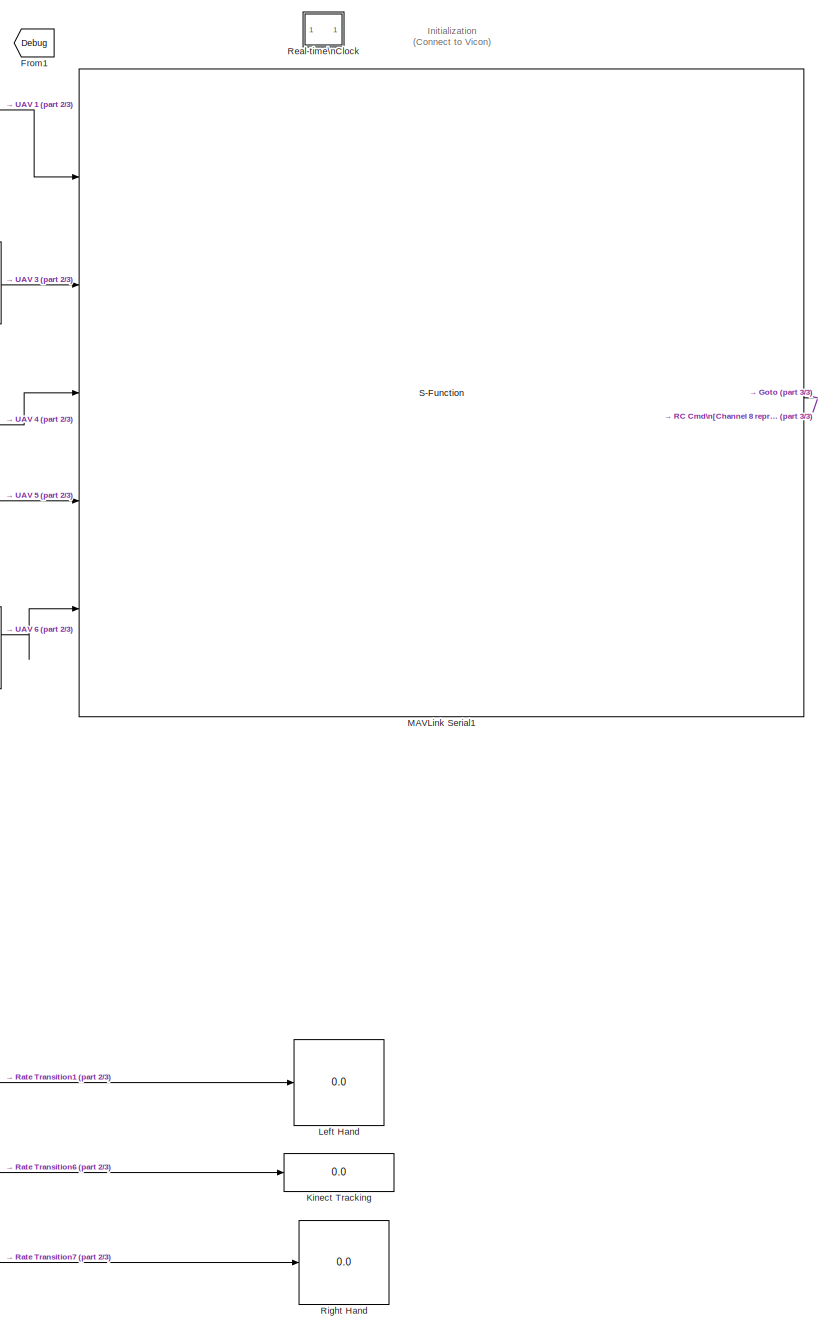
[diagram: root canvas - part 1/3, center side, full height]
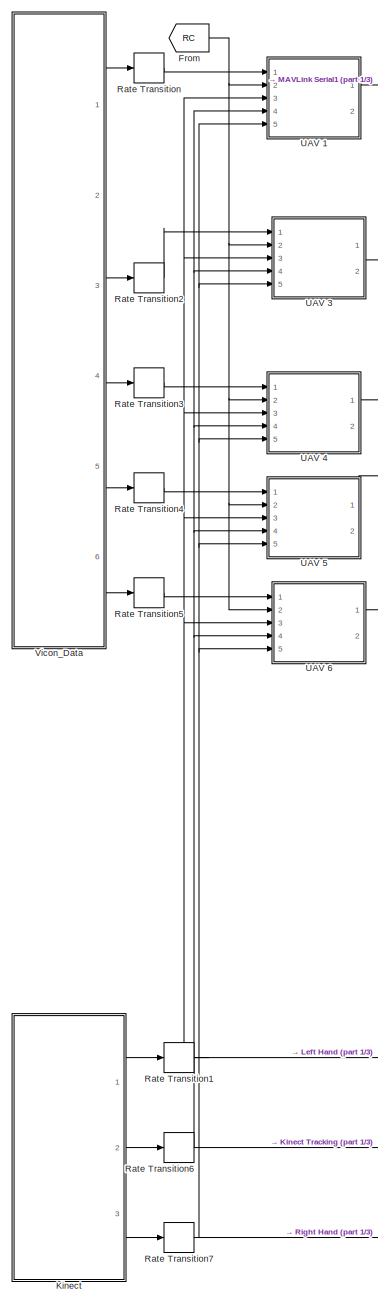
[diagram: root canvas - part 2/3, left side, full height]
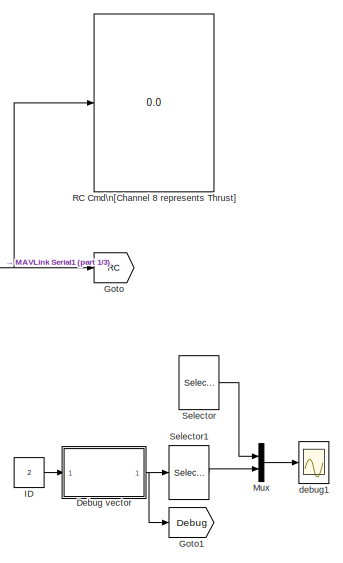
[diagram: root canvas - part 3/3, top right region]
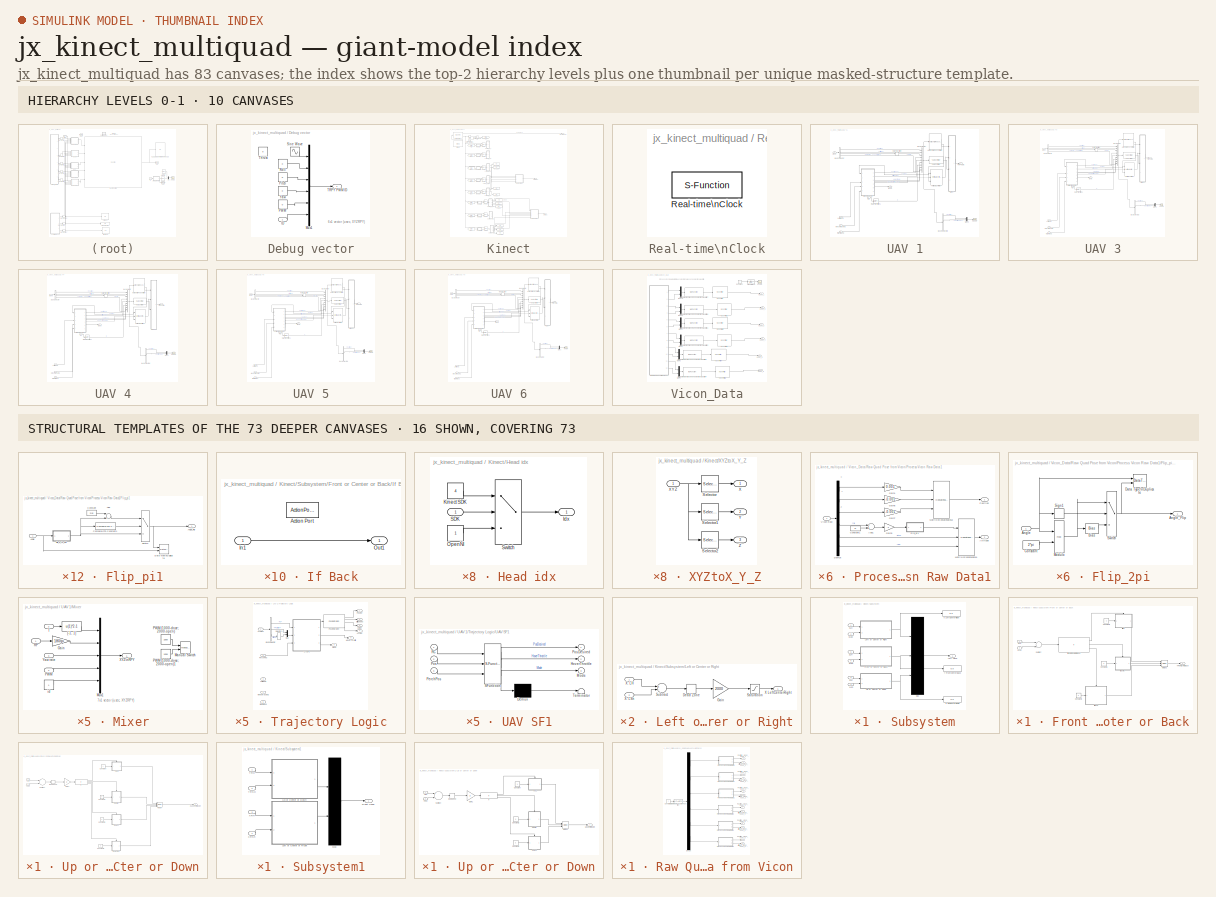
[diagram: thumbnail index - top-2 hierarchy levels (10 canvases) + 16 structural-template representatives of the remaining 73 canvases]
MODEL jx_kinect_multiquad
KIND model
CONFIG InitFcn = sample_time=0.005;%0.004;%0.0025;%0.02;\nsample_time_Vicon = 0.005;\nDeltaT = 0.02;\ng = 9.81;\nH0 = g%0.3165;\nKl = 1;\n\nQ6_mass = 0.73;\n\nQ6_Omega_r = 1.5; %for horizon ref\nQ6_Zeta_r = 0.5; %for horizon ref\nQ6_Omega_r_h = 2;%for vertical ref\nQ6_Zeta_r_h = 1; %for vertical ref\n\n\nQ6_Omega = 1.5; %for horizon control\nQ6_Zeta = 0.5; %for horizon control\nQ6_Omega_h= 2; %for vertical control...<+228ch>
BLOCK [SubSystem] Debug vector
  FunctionWithSeparateData = off
  MaskHideContents = off
  MinAlgLoopOccurrences = off
  Opaque = off
  Ports = [1, 1]
  PropExecContextOutsideSubsystem = off
  RTWSystemCode = Auto
  RequestExecContextInheritance = off
  SID = 2343
BLOCK [Inport] Debug vector/ID
  IconDisplay = Port number
  SID = 2344
BLOCK [Mux] Debug vector/Mux1
  DisplayOption = bar
  Inputs = 6
  Ports = [6, 1]
  SID = 2345
BLOCK [Constant] Debug vector/PWM
  SID = 2346
  Value = 0
BLOCK [Constant] Debug vector/Pitch
  SID = 2347
  Value = 0
BLOCK [Constant] Debug vector/Roll
  SID = 2348
  Value = 0
BLOCK [Sin] Debug vector/Sine Wave
  Ports = [0, 1]
  SID = 2349
  SampleTime = 0
BLOCK [Outport] Debug vector/TRPY PWM ID
  IconDisplay = Port number
  SID = 2352
BLOCK [Constant] Debug vector/Thrust
  SID = 2350
  Value = 0
BLOCK [Constant] Debug vector/Yaw
  SID = 2351
  Value = 0
BLOCK [From] From
  GotoTag = RC
  SID = 4
  TagVisibility = global
BLOCK [From] From1
  GotoTag = Debug
  SID = 2359
  TagVisibility = global
BLOCK [Goto] Goto
  GotoTag = RC
  SID = 5
  TagVisibility = global
BLOCK [Goto] Goto1
  GotoTag = Debug
  SID = 2353
  TagVisibility = global
BLOCK [Constant] ID
  SID = 2354
  Value = 2
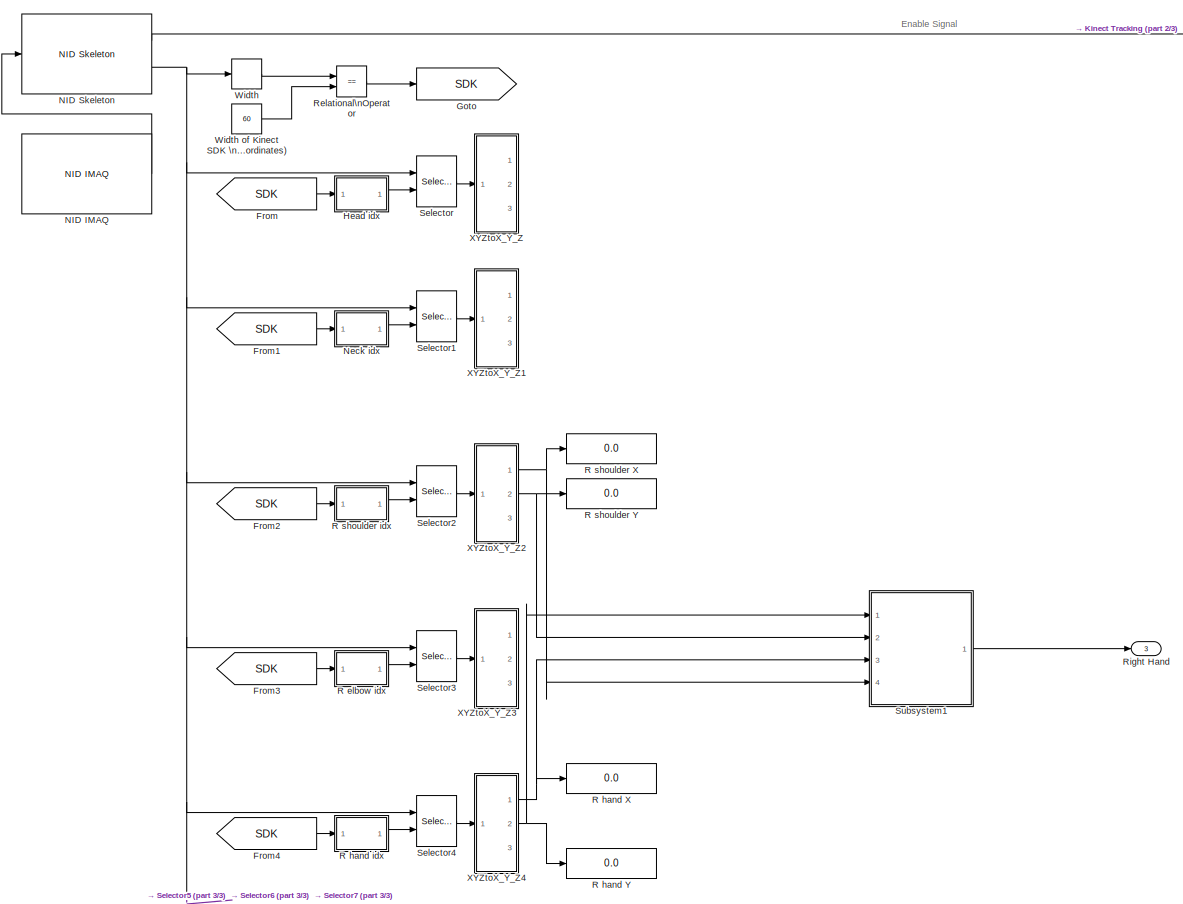
[diagram: Kinect - part 1/3, full width, top band]
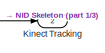
[diagram: Kinect - part 2/3, top right region]
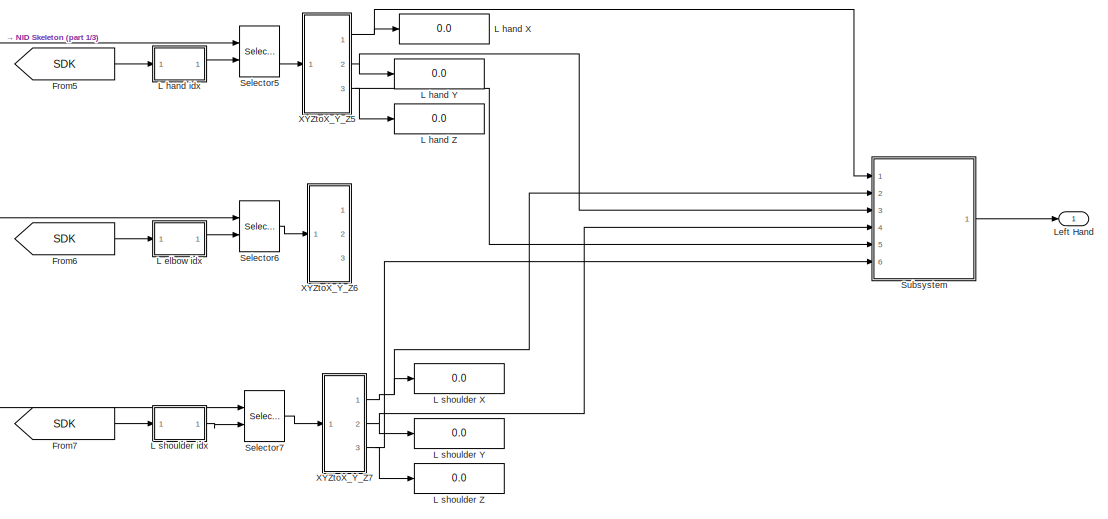
[diagram: Kinect - part 3/3, bottom center region]
BLOCK [SubSystem] Kinect
  FunctionWithSeparateData = off
  MaskDisplay = image(imread('kinect.jpg'));port_label('output', 1, 'Roll/Pitch/Trigger'); port_label('output', 2, 'Tracking');
  MaskHideContents = off
  MaskIconFrame = on
  MaskIconOpaque = on
  MaskIconRotate = none
  MaskIconUnits = autoscale
  MaskPortRotate = default
  MinAlgLoopOccurrences = off
  Opaque = off
  Ports = [0, 3]
  PropExecContextOutsideSubsystem = off
  RTWSystemCode = Auto
  RequestExecContextInheritance = off
  SID = 2837
BLOCK [Display] Kinect Tracking
  Decimation = 1
  Lockdown = off
  Ports = [1]
  SID = 3095
BLOCK [From] Kinect/From
  GotoTag = SDK
  SID = 2838
BLOCK [From] Kinect/From1
  GotoTag = SDK
  SID = 2839
BLOCK [From] Kinect/From2
  GotoTag = SDK
  SID = 2840
BLOCK [From] Kinect/From3
  GotoTag = SDK
  SID = 2841
BLOCK [From] Kinect/From4
  GotoTag = SDK
  SID = 2842
BLOCK [From] Kinect/From5
  GotoTag = SDK
  SID = 2843
BLOCK [From] Kinect/From6
  GotoTag = SDK
  SID = 2844
BLOCK [From] Kinect/From7
  GotoTag = SDK
  SID = 2845
BLOCK [Goto] Kinect/Goto
  GotoTag = SDK
  SID = 2846
  TagVisibility = local
BLOCK [SubSystem] Kinect/Head idx
  FunctionWithSeparateData = off
  MaskHideContents = off
  MinAlgLoopOccurrences = off
  Opaque = off
  Ports = [1, 1]
  PropExecContextOutsideSubsystem = off
  RTWSystemCode = Auto
  RequestExecContextInheritance = off
  SID = 2847
BLOCK [Outport] Kinect/Head idx/Idx
  IconDisplay = Port number
  SID = 2852
BLOCK [Constant] Kinect/Head idx/Kinect SDK
  SID = 2849
  Value = 4
BLOCK [Constant] Kinect/Head idx/OpenNI
  SID = 2850
BLOCK [Inport] Kinect/Head idx/SDK
  IconDisplay = Port number
  SID = 2848
BLOCK [Switch] Kinect/Head idx/Switch
  Criteria = u2 ~= 0
  InputSameDT = off
  SID = 2851
  SaturateOnIntegerOverflow = off
BLOCK [Outport] Kinect/Kinect Tracking
  IconDisplay = Port number
  Port = 2
  SID = 3093
BLOCK [SubSystem] Kinect/L elbow idx
  FunctionWithSeparateData = off
  MaskHideContents = off
  MinAlgLoopOccurrences = off
  Opaque = off
  Ports = [1, 1]
  PropExecContextOutsideSubsystem = off
  RTWSystemCode = Auto
  RequestExecContextInheritance = off
  SID = 2853
BLOCK [Outport] Kinect/L elbow idx/Idx
  IconDisplay = Port number
  SID = 2858
BLOCK [Constant] Kinect/L elbow idx/Kinect SDK
  SID = 2855
  Value = 6
BLOCK [Constant] Kinect/L elbow idx/OpenNI
  SID = 2856
  Value = 8
BLOCK [Inport] Kinect/L elbow idx/SDK
  IconDisplay = Port number
  SID = 2854
BLOCK [Switch] Kinect/L elbow idx/Switch
  Criteria = u2 ~= 0
  InputSameDT = off
  SID = 2857
  SaturateOnIntegerOverflow = off
BLOCK [Display] Kinect/L hand X
  Decimation = 1
  Lockdown = off
  Ports = [1]
  SID = 2859
BLOCK [Display] Kinect/L hand Y
  Decimation = 1
  Lockdown = off
  Ports = [1]
  SID = 2860
BLOCK [Display] Kinect/L hand Z
  Decimation = 1
  Lockdown = off
  Ports = [1]
  SID = 2861
BLOCK [SubSystem] Kinect/L hand idx
  FunctionWithSeparateData = off
  MaskHideContents = off
  MinAlgLoopOccurrences = off
  Opaque = off
  Ports = [1, 1]
  PropExecContextOutsideSubsystem = off
  RTWSystemCode = Auto
  RequestExecContextInheritance = off
  SID = 2862
BLOCK [Outport] Kinect/L hand idx/Idx
  IconDisplay = Port number
  SID = 2867
BLOCK [Constant] Kinect/L hand idx/Kinect SDK
  SID = 2864
  Value = 8
BLOCK [Constant] Kinect/L hand idx/OpenNI
  SID = 2865
  Value = 9
BLOCK [Inport] Kinect/L hand idx/SDK
  IconDisplay = Port number
  SID = 2863
BLOCK [Switch] Kinect/L hand idx/Switch
  Criteria = u2 ~= 0
  InputSameDT = off
  SID = 2866
  SaturateOnIntegerOverflow = off
BLOCK [Display] Kinect/L shoulder X
  Decimation = 1
  Lockdown = off
  Ports = [1]
  SID = 2868
BLOCK [Display] Kinect/L shoulder Y
  Decimation = 1
  Lockdown = off
  Ports = [1]
  SID = 2869
BLOCK [Display] Kinect/L shoulder Z
  Decimation = 1
  Lockdown = off
  Ports = [1]
  SID = 2870
BLOCK [SubSystem] Kinect/L shoulder idx
  FunctionWithSeparateData = off
  MaskHideContents = off
  MinAlgLoopOccurrences = off
  Opaque = off
  Ports = [1, 1]
  PropExecContextOutsideSubsystem = off
  RTWSystemCode = Auto
  RequestExecContextInheritance = off
  SID = 2871
BLOCK [Outport] Kinect/L shoulder idx/Idx
  IconDisplay = Port number
  SID = 2876
BLOCK [Constant] Kinect/L shoulder idx/Kinect SDK
  SID = 2873
  Value = 5
BLOCK [Constant] Kinect/L shoulder idx/OpenNI
  SID = 2874
  Value = 7
BLOCK [Inport] Kinect/L shoulder idx/SDK
  IconDisplay = Port number
  SID = 2872
BLOCK [Switch] Kinect/L shoulder idx/Switch
  Criteria = u2 ~= 0
  InputSameDT = off
  SID = 2875
  SaturateOnIntegerOverflow = off
BLOCK [Outport] Kinect/Left Hand
  IconDisplay = Port number
  SID = 3092
BLOCK [Reference] Kinect/NID IMAQ  REF=nid_lib/NID IMAQ
  Ports = [0, 1]
  SID = 2877
  SourceBlock = nid_lib/NID IMAQ
  SourceType = NID IMAQ
  angle = 0
  angle_input = off
  angle_read = off
  imaq_depth = off
  imaq_image = off
  imaq_ir = off
  imaq_motion = off
  imaq_sample_time = 1/25
  imaq_skeleton = on
  infer_skeleton = on
  mirror_image = off
  near_mode = off
  needPsiPose = off
  res_fps = VGA (640x480): 30 FPS
  seated_mode = on
  skeleton_smooth = [1.0 0.5 0.5 0.05 0.04]
  view_point = off
BLOCK [Reference] Kinect/NID Skeleton  REF=nid_lib/NID Skeleton
  Ports = [1, 2]
  SID = 2878
  SourceBlock = nid_lib/NID Skeleton
  SourceType = NID Skeleton
  conv_XYZ_RW = on
  num_of_skeleton_tracking = 1
  viewer = off
BLOCK [SubSystem] Kinect/Neck idx
  FunctionWithSeparateData = off
  MaskHideContents = off
  MinAlgLoopOccurrences = off
  Opaque = off
  Ports = [1, 1]
  PropExecContextOutsideSubsystem = off
  RTWSystemCode = Auto
  RequestExecContextInheritance = off
  SID = 2879
BLOCK [Outport] Kinect/Neck idx/Idx
  IconDisplay = Port number
  SID = 2884
BLOCK [Constant] Kinect/Neck idx/Kinect SDK
  SID = 2881
  Value = 3
BLOCK [Constant] Kinect/Neck idx/OpenNI
  SID = 2882
  Value = 2
BLOCK [Inport] Kinect/Neck idx/SDK
  IconDisplay = Port number
  SID = 2880
BLOCK [Switch] Kinect/Neck idx/Switch
  Criteria = u2 ~= 0
  InputSameDT = off
  SID = 2883
  SaturateOnIntegerOverflow = off
BLOCK [SubSystem] Kinect/R elbow idx
  FunctionWithSeparateData = off
  MaskHideContents = off
  MinAlgLoopOccurrences = off
  Opaque = off
  Ports = [1, 1]
  PropExecContextOutsideSubsystem = off
  RTWSystemCode = Auto
  RequestExecContextInheritance = off
  SID = 2885
BLOCK [Outport] Kinect/R elbow idx/Idx
  IconDisplay = Port number
  SID = 2890
BLOCK [Constant] Kinect/R elbow idx/Kinect SDK
  SID = 2887
  Value = 10
BLOCK [Constant] Kinect/R elbow idx/OpenNI
  SID = 2888
  Value = 5
BLOCK [Inport] Kinect/R elbow idx/SDK
  IconDisplay = Port number
  SID = 2886
BLOCK [Switch] Kinect/R elbow idx/Switch
  Criteria = u2 ~= 0
  InputSameDT = off
  SID = 2889
  SaturateOnIntegerOverflow = off
BLOCK [Display] Kinect/R hand X
  Decimation = 1
  Lockdown = off
  Ports = [1]
  SID = 2891
BLOCK [Display] Kinect/R hand Y
  Decimation = 1
  Lockdown = off
  Ports = [1]
  SID = 2892
BLOCK [SubSystem] Kinect/R hand idx
  FunctionWithSeparateData = off
  MaskHideContents = off
  MinAlgLoopOccurrences = off
  Opaque = off
  Ports = [1, 1]
  PropExecContextOutsideSubsystem = off
  RTWSystemCode = Auto
  RequestExecContextInheritance = off
  SID = 2893
BLOCK [Outport] Kinect/R hand idx/Idx
  IconDisplay = Port number
  SID = 2898
BLOCK [Constant] Kinect/R hand idx/Kinect SDK
  SID = 2895
  Value = 12
BLOCK [Constant] Kinect/R hand idx/OpenNI
  SID = 2896
  Value = 6
BLOCK [Inport] Kinect/R hand idx/SDK
  IconDisplay = Port number
  SID = 2894
BLOCK [Switch] Kinect/R hand idx/Switch
  Criteria = u2 ~= 0
  InputSameDT = off
  SID = 2897
  SaturateOnIntegerOverflow = off
BLOCK [Display] Kinect/R shoulder X
  Decimation = 1
  Lockdown = off
  Ports = [1]
  SID = 2899
BLOCK [Display] Kinect/R shoulder Y
  Decimation = 1
  Lockdown = off
  Ports = [1]
  SID = 2900
BLOCK [SubSystem] Kinect/R shoulder idx
  FunctionWithSeparateData = off
  MaskHideContents = off
  MinAlgLoopOccurrences = off
  Opaque = off
  Ports = [1, 1]
  PropExecContextOutsideSubsystem = off
  RTWSystemCode = Auto
  RequestExecContextInheritance = off
  SID = 2901
BLOCK [Outport] Kinect/R shoulder idx/Idx
  IconDisplay = Port number
  SID = 2906
BLOCK [Constant] Kinect/R shoulder idx/Kinect SDK
  SID = 2903
  Value = 9
BLOCK [Constant] Kinect/R shoulder idx/OpenNI
  SID = 2904
  Value = 4
BLOCK [Inport] Kinect/R shoulder idx/SDK
  IconDisplay = Port number
  SID = 2902
BLOCK [Switch] Kinect/R shoulder idx/Switch
  Criteria = u2 ~= 0
  InputSameDT = off
  SID = 2905
  SaturateOnIntegerOverflow = off
BLOCK [RelationalOperator] Kinect/Relational\nOperator
  InputSameDT = off
  Operator = ==
  OutDataTypeStr = boolean
  Ports = [2, 1]
  SID = 2907
BLOCK [Outport] Kinect/Right Hand
  IconDisplay = Port number
  Port = 3
  SID = 3094
BLOCK [Selector] Kinect/Selector
  IndexOptions = Select all,Index vector (port),Select all
  Indices = [1 3],1,1
  InputPortWidth = 3
  NumberOfDimensions = 3
  OutputSizes = 1,1,1
  Ports = [2, 1]
  SID = 2908
BLOCK [Selector] Kinect/Selector1
  IndexOptions = Select all,Index vector (port),Select all
  Indices = [1 3],1,1
  InputPortWidth = 3
  NumberOfDimensions = 3
  OutputSizes = 1,1,1
  Ports = [2, 1]
  SID = 2909
BLOCK [Selector] Kinect/Selector2
  IndexOptions = Select all,Index vector (port),Select all
  Indices = [1 3],1,1
  InputPortWidth = 3
  NumberOfDimensions = 3
  OutputSizes = 1,1,1
  Ports = [2, 1]
  SID = 2910
BLOCK [Selector] Kinect/Selector3
  IndexOptions = Select all,Index vector (port),Select all
  Indices = [1 3],1,1
  InputPortWidth = 3
  NumberOfDimensions = 3
  OutputSizes = 1,1,1
  Ports = [2, 1]
  SID = 2911
BLOCK [Selector] Kinect/Selector4
  IndexOptions = Select all,Index vector (port),Select all
  Indices = [1 3],1,1
  InputPortWidth = 3
  NumberOfDimensions = 3
  OutputSizes = 1,1,1
  Ports = [2, 1]
  SID = 2912
BLOCK [Selector] Kinect/Selector5
  IndexOptions = Select all,Index vector (port),Select all
  Indices = [1 3],1,1
  InputPortWidth = 3
  NumberOfDimensions = 3
  OutputSizes = 1,1,1
  Ports = [2, 1]
  SID = 2913
BLOCK [Selector] Kinect/Selector6
  IndexOptions = Select all,Index vector (port),Select all
  Indices = [1 3],1,1
  InputPortWidth = 3
  NumberOfDimensions = 3
  OutputSizes = 1,1,1
  Ports = [2, 1]
  SID = 2914
BLOCK [Selector] Kinect/Selector7
  IndexOptions = Select all,Index vector (port),Select all
  Indices = [1 3],1,1
  InputPortWidth = 3
  NumberOfDimensions = 3
  OutputSizes = 1,1,1
  Ports = [2, 1]
  SID = 2915
BLOCK [SubSystem] Kinect/Subsystem
  FunctionWithSeparateData = off
  MaskHideContents = off
  MinAlgLoopOccurrences = off
  Opaque = off
  Ports = [6, 1]
  PropExecContextOutsideSubsystem = off
  RTWSystemCode = Auto
  RequestExecContextInheritance = off
  SID = 2916
BLOCK [SubSystem] Kinect/Subsystem/Front or Center or Back
  FunctionWithSeparateData = off
  MaskHideContents = off
  MinAlgLoopOccurrences = off
  Opaque = off
  Ports = [2, 1]
  PropExecContextOutsideSubsystem = off
  RTWSystemCode = Auto
  RequestExecContextInheritance = off
  SID = 2923
BLOCK [Constant] Kinect/Subsystem/Front or Center or Back/Constant1
  SID = 2926
  Value = 0
BLOCK [Constant] Kinect/Subsystem/Front or Center or Back/Constant2
  SID = 2927
BLOCK [Constant] Kinect/Subsystem/Front or Center or Back/Constant3
  SID = 2928
  Value = -1
BLOCK [SubSystem] Kinect/Subsystem/Front or Center or Back/If Back
  FunctionWithSeparateData = off
  MaskHideContents = off
  MinAlgLoopOccurrences = off
  Opaque = off
  Ports = [1, 1, 0, 0, 0, 0, 0, 1]
  PropExecContextOutsideSubsystem = off
  RTWSystemCode = Auto
  RequestExecContextInheritance = off
  SID = 2929
  TreatAsAtomicUnit = on
BLOCK [ActionPort] Kinect/Subsystem/Front or Center or Back/If Back/Action Port
  SID = 2931
BLOCK [Inport] Kinect/Subsystem/Front or Center or Back/If Back/In1
  IconDisplay = Port number
  SID = 2930
BLOCK [Outport] Kinect/Subsystem/Front or Center or Back/If Back/Out1
  IconDisplay = Port number
  SID = 2932
BLOCK [SubSystem] Kinect/Subsystem/Front or Center or Back/If Center
  FunctionWithSeparateData = off
  MaskHideContents = off
  MinAlgLoopOccurrences = off
  Opaque = off
  Ports = [1, 1, 0, 0, 0, 0, 0, 1]
  PropExecContextOutsideSubsystem = off
  RTWSystemCode = Auto
  RequestExecContextInheritance = off
  SID = 2933
  TreatAsAtomicUnit = on
BLOCK [ActionPort] Kinect/Subsystem/Front or Center or Back/If Center/Action Port
  SID = 2935
BLOCK [Inport] Kinect/Subsystem/Front or Center or Back/If Center/In1
  IconDisplay = Port number
  SID = 2934
BLOCK [Outport] Kinect/Subsystem/Front or Center or Back/If Center/Out1
  IconDisplay = Port number
  SID = 2936
BLOCK [If] Kinect/Subsystem/Front or Center or Back/If Front or Center or Back
  ElseIfExpressions = u1 >= 0.23
  IfExpression = u1 > 0.40
  Ports = [1, 3]
  SID = 2937
BLOCK [SubSystem] Kinect/Subsystem/Front or Center or Back/If front
  FunctionWithSeparateData = off
  MaskHideContents = off
  MinAlgLoopOccurrences = off
  Opaque = off
  Ports = [1, 1, 0, 0, 0, 0, 0, 1]
  PropExecContextOutsideSubsystem = off
  RTWSystemCode = Auto
  RequestExecContextInheritance = off
  SID = 2938
  TreatAsAtomicUnit = on
BLOCK [ActionPort] Kinect/Subsystem/Front or Center or Back/If front/Action Port
  SID = 2940
BLOCK [Inport] Kinect/Subsystem/Front or Center or Back/If front/In1
  IconDisplay = Port number
  SID = 2939
BLOCK [Outport] Kinect/Subsystem/Front or Center or Back/If front/Out1
  IconDisplay = Port number
  SID = 2941
BLOCK [Merge] Kinect/Subsystem/Front or Center or Back/Merge3
  Inputs = 3
  Ports = [3, 1]
  SID = 2942
BLOCK [Sum] Kinect/Subsystem/Front or Center or Back/Subtract
  InputSameDT = off
  Inputs = -+
  OutDataTypeStr = Inherit: Inherit via internal rule
  Ports = [2, 1]
  SID = 2943
  SaturateOnIntegerOverflow = off
BLOCK [Outport] Kinect/Subsystem/Front or Center or Back/Y FrontCenterBack
  IconDisplay = Port number
  SID = 2944
BLOCK [Inport] Kinect/Subsystem/Front or Center or Back/Z: LH
  IconDisplay = Port number
  SID = 2924
BLOCK [Inport] Kinect/Subsystem/Front or Center or Back/Z: LSh
  IconDisplay = Port number
  Port = 2
  SID = 2925
BLOCK [Outport] Kinect/Subsystem/Left Hand
  IconDisplay = Port number
  SID = 2986
BLOCK [SubSystem] Kinect/Subsystem/Left or Center or Right
  FunctionWithSeparateData = off
  MaskHideContents = off
  MinAlgLoopOccurrences = off
  Opaque = off
  Ports = [2, 1]
  PropExecContextOutsideSubsystem = off
  RTWSystemCode = Auto
  RequestExecContextInheritance = off
  SID = 2945
BLOCK [DeadZone] Kinect/Subsystem/Left or Center or Right/Dead Zone
  LowerValue = -0.14
  SID = 2948
  UpperValue = 0.14
BLOCK [Gain] Kinect/Subsystem/Left or Center or Right/Gain
  Gain = 2000
  OutDataTypeStr = Inherit: Inherit via internal rule
  ParamDataTypeStr = Inherit: Inherit via internal rule
  SID = 2949
  SaturateOnIntegerOverflow = off
BLOCK [Saturate] Kinect/Subsystem/Left or Center or Right/Saturation
  InputPortMap = u0
  LowerLimit = -1
  Ports = [1, 1]
  SID = 2950
  UpperLimit = 1
BLOCK [Sum] Kinect/Subsystem/Left or Center or Right/Subtract
  InputSameDT = off
  Inputs = +-
  OutDataTypeStr = Inherit: Inherit via internal rule
  Ports = [2, 1]
  SID = 2951
  SaturateOnIntegerOverflow = off
BLOCK [Outport] Kinect/Subsystem/Left or Center or Right/X LeftCenterRight
  IconDisplay = Port number
  SID = 2952
BLOCK [Inport] Kinect/Subsystem/Left or Center or Right/X: LH
  IconDisplay = Port number
  SID = 2946
BLOCK [Inport] Kinect/Subsystem/Left or Center or Right/X: LSh
  IconDisplay = Port number
  Port = 2
  SID = 2947
BLOCK [Mux] Kinect/Subsystem/Mux
  DisplayOption = signals
  Inputs = 3
  Ports = [3, 1]
  SID = 2953
BLOCK [SubSystem] Kinect/Subsystem/Up or Center or Down
  FunctionWithSeparateData = off
  MaskHideContents = off
  MinAlgLoopOccurrences = off
  Opaque = off
  Ports = [2, 1]
  PropExecContextOutsideSubsystem = off
  RTWSystemCode = Auto
  RequestExecContextInheritance = off
  SID = 2954
BLOCK [SubSystem] Kinect/Subsystem/Up or Center or Down/Center
  FunctionWithSeparateData = off
  MaskHideContents = off
  MinAlgLoopOccurrences = off
  Opaque = off
  Ports = [1, 1, 0, 0, 0, 0, 0, 1]
  PropExecContextOutsideSubsystem = off
  RTWSystemCode = Auto
  RequestExecContextInheritance = off
  SID = 2957
  TreatAsAtomicUnit = on
BLOCK [ActionPort] Kinect/Subsystem/Up or Center or Down/Center/Action Port
  SID = 2959
BLOCK [Inport] Kinect/Subsystem/Up or Center or Down/Center/In1
  IconDisplay = Port number
  SID = 2958
BLOCK [Outport] Kinect/Subsystem/Up or Center or Down/Center/Out1
  IconDisplay = Port number
  SID = 2960
BLOCK [Constant] Kinect/Subsystem/Up or Center or Down/Constant
  SID = 2961
BLOCK [Constant] Kinect/Subsystem/Up or Center or Down/Constant1
  SID = 2962
  Value = 0
BLOCK [Constant] Kinect/Subsystem/Up or Center or Down/Constant2
  SID = 2963
  Value = -1
BLOCK [Constant] Kinect/Subsystem/Up or Center or Down/Constant3
  SID = 2964
  Value = -2
BLOCK [DeadZone] Kinect/Subsystem/Up or Center or Down/Dead Zone
  LowerValue = -0.12
  SID = 2965
  UpperValue = 0.12
BLOCK [SubSystem] Kinect/Subsystem/Up or Center or Down/Down max
  FunctionWithSeparateData = off
  MaskHideContents = off
  MinAlgLoopOccurrences = off
  Opaque = off
  Ports = [1, 1, 0, 0, 0, 0, 0, 1]
  PropExecContextOutsideSubsystem = off
  RTWSystemCode = Auto
  RequestExecContextInheritance = off
  SID = 2966
  TreatAsAtomicUnit = on
BLOCK [ActionPort] Kinect/Subsystem/Up or Center or Down/Down max/Action Port
  SID = 2968
BLOCK [Inport] Kinect/Subsystem/Up or Center or Down/Down max/In1
  IconDisplay = Port number
  SID = 2967
BLOCK [Outport] Kinect/Subsystem/Up or Center or Down/Down max/Out1
  IconDisplay = Port number
  SID = 2969
BLOCK [SubSystem] Kinect/Subsystem/Up or Center or Down/Down1
  FunctionWithSeparateData = off
  MaskHideContents = off
  MinAlgLoopOccurrences = off
  Opaque = off
  Ports = [1, 1, 0, 0, 0, 0, 0, 1]
  PropExecContextOutsideSubsystem = off
  RTWSystemCode = Auto
  RequestExecContextInheritance = off
  SID = 2970
  TreatAsAtomicUnit = on
BLOCK [ActionPort] Kinect/Subsystem/Up or Center or Down/Down1/Action Port
  SID = 2972
BLOCK [Inport] Kinect/Subsystem/Up or Center or Down/Down1/In1
  IconDisplay = Port number
  SID = 2971
BLOCK [Outport] Kinect/Subsystem/Up or Center or Down/Down1/Out1
  IconDisplay = Port number
  SID = 2973
BLOCK [Gain] Kinect/Subsystem/Up or Center or Down/Gain1
  Gain = 2
  OutDataTypeStr = Inherit: Inherit via internal rule
  ParamDataTypeStr = Inherit: Inherit via internal rule
  SID = 2974
  SaturateOnIntegerOverflow = off
BLOCK [If] Kinect/Subsystem/Up or Center or Down/If
  ElseIfExpressions = u1 ==0, u1> -0.5
  Ports = [1, 4]
  SID = 2975
BLOCK [Merge] Kinect/Subsystem/Up or Center or Down/Merge
  Inputs = 4
  Ports = [4, 1]
  SID = 2976
BLOCK [Sum] Kinect/Subsystem/Up or Center or Down/Subtract
  InputSameDT = off
  Inputs = +-
  OutDataTypeStr = Inherit: Inherit via internal rule
  Ports = [2, 1]
  SID = 2977
  SaturateOnIntegerOverflow = off
BLOCK [SubSystem] Kinect/Subsystem/Up or Center or Down/Top1
  FunctionWithSeparateData = off
  MaskHideContents = off
  MinAlgLoopOccurrences = off
  Opaque = off
  Ports = [1, 1, 0, 0, 0, 0, 0, 1]
  PropExecContextOutsideSubsystem = off
  RTWSystemCode = Auto
  RequestExecContextInheritance = off
  SID = 2978
  TreatAsAtomicUnit = on
BLOCK [ActionPort] Kinect/Subsystem/Up or Center or Down/Top1/Action Port
  SID = 2980
BLOCK [Inport] Kinect/Subsystem/Up or Center or Down/Top1/In1
  IconDisplay = Port number
  SID = 2979
BLOCK [Outport] Kinect/Subsystem/Up or Center or Down/Top1/Out1
  IconDisplay = Port number
  SID = 2981
BLOCK [Inport] Kinect/Subsystem/Up or Center or Down/Y LH
  IconDisplay = Port number
  SID = 2955
BLOCK [Inport] Kinect/Subsystem/Up or Center or Down/Y LSh
  IconDisplay = Port number
  Port = 2
  SID = 2956
BLOCK [Outport] Kinect/Subsystem/Up or Center or Down/Z UpCenterDown
  IconDisplay = Port number
  SID = 2982
BLOCK [Display] Kinect/Subsystem/X LeftCenterRight
  Decimation = 1
  Lockdown = off
  Ports = [1]
  SID = 2983
BLOCK [Inport] Kinect/Subsystem/XLH
  IconDisplay = Port number
  SID = 2917
BLOCK [Inport] Kinect/Subsystem/XLSH
  IconDisplay = Port number
  Port = 2
  SID = 2918
BLOCK [Display] Kinect/Subsystem/Y FrontCenterBack
  Decimation = 1
  Lockdown = off
  Ports = [1]
  SID = 2984
BLOCK [Inport] Kinect/Subsystem/YLH
  IconDisplay = Port number
  Port = 3
  SID = 2919
BLOCK [Inport] Kinect/Subsystem/YLSh
  IconDisplay = Port number
  Port = 4
  SID = 2920
BLOCK [Display] Kinect/Subsystem/Z UpCenterDown
  Decimation = 1
  Lockdown = off
  Ports = [1]
  SID = 2985
BLOCK [Inport] Kinect/Subsystem/ZLH
  IconDisplay = Port number
  Port = 5
  SID = 2921
BLOCK [Inport] Kinect/Subsystem/ZLSh
  IconDisplay = Port number
  Port = 6
  SID = 2922
BLOCK [SubSystem] Kinect/Subsystem1
  FunctionWithSeparateData = off
  MaskHideContents = off
  MinAlgLoopOccurrences = off
  Opaque = off
  Ports = [4, 1]
  PropExecContextOutsideSubsystem = off
  RTWSystemCode = Auto
  RequestExecContextInheritance = off
  SID = 2987
BLOCK [SubSystem] Kinect/Subsystem1/Left or Center or Right
  FunctionWithSeparateData = off
  MaskHideContents = off
  MinAlgLoopOccurrences = off
  Opaque = off
  Ports = [2, 1]
  PropExecContextOutsideSubsystem = off
  RTWSystemCode = Auto
  RequestExecContextInheritance = off
  SID = 2992
BLOCK [DeadZone] Kinect/Subsystem1/Left or Center or Right/Dead Zone
  LowerValue = -0.12
  SID = 2995
  UpperValue = 0.12
BLOCK [Gain] Kinect/Subsystem1/Left or Center or Right/Gain
  Gain = 2000
  OutDataTypeStr = Inherit: Inherit via internal rule
  ParamDataTypeStr = Inherit: Inherit via internal rule
  SID = 2996
  SaturateOnIntegerOverflow = off
BLOCK [Outport] Kinect/Subsystem1/Left or Center or Right/LeftCenterRight
  IconDisplay = Port number
  SID = 2999
BLOCK [Saturate] Kinect/Subsystem1/Left or Center or Right/Saturation
  InputPortMap = u0
  LowerLimit = -1
  Ports = [1, 1]
  SID = 2997
  UpperLimit = 1
BLOCK [Sum] Kinect/Subsystem1/Left or Center or Right/Subtract
  InputSameDT = off
  Inputs = +-
  OutDataTypeStr = Inherit: Inherit via internal rule
  Ports = [2, 1]
  SID = 2998
  SaturateOnIntegerOverflow = off
BLOCK [Inport] Kinect/Subsystem1/Left or Center or Right/X: RH
  IconDisplay = Port number
  SID = 2993
BLOCK [Inport] Kinect/Subsystem1/Left or Center or Right/X: RSh
  IconDisplay = Port number
  Port = 2
  SID = 2994
BLOCK [Mux] Kinect/Subsystem1/Mux
  DisplayOption = signals
  Inputs = 2
  Ports = [2, 1]
  SID = 3000
BLOCK [Outport] Kinect/Subsystem1/Right Hand
  IconDisplay = Port number
  SID = 3025
BLOCK [SubSystem] Kinect/Subsystem1/Up or Center or Down
  FunctionWithSeparateData = off
  MaskHideContents = off
  MinAlgLoopOccurrences = off
  Opaque = off
  Ports = [2, 1]
  PropExecContextOutsideSubsystem = off
  RTWSystemCode = Auto
  RequestExecContextInheritance = off
  SID = 3001
BLOCK [SubSystem] Kinect/Subsystem1/Up or Center or Down/Center
  FunctionWithSeparateData = off
  MaskHideContents = off
  MinAlgLoopOccurrences = off
  Opaque = off
  Ports = [1, 1, 0, 0, 0, 0, 0, 1]
  PropExecContextOutsideSubsystem = off
  RTWSystemCode = Auto
  RequestExecContextInheritance = off
  SID = 3004
  TreatAsAtomicUnit = on
BLOCK [ActionPort] Kinect/Subsystem1/Up or Center or Down/Center/Action Port
  SID = 3006
BLOCK [Inport] Kinect/Subsystem1/Up or Center or Down/Center/In1
  IconDisplay = Port number
  SID = 3005
BLOCK [Outport] Kinect/Subsystem1/Up or Center or Down/Center/Out1
  IconDisplay = Port number
  SID = 3007
BLOCK [Constant] Kinect/Subsystem1/Up or Center or Down/Constant
  SID = 3008
BLOCK [Constant] Kinect/Subsystem1/Up or Center or Down/Constant1
  SID = 3009
  Value = 0
BLOCK [Constant] Kinect/Subsystem1/Up or Center or Down/Constant2
  SID = 3010
  Value = -1
BLOCK [DeadZone] Kinect/Subsystem1/Up or Center or Down/Dead Zone
  LowerValue = -0.12
  SID = 3011
  UpperValue = 0.12
BLOCK [SubSystem] Kinect/Subsystem1/Up or Center or Down/Down1
  FunctionWithSeparateData = off
  MaskHideContents = off
  MinAlgLoopOccurrences = off
  Opaque = off
  Ports = [1, 1, 0, 0, 0, 0, 0, 1]
  PropExecContextOutsideSubsystem = off
  RTWSystemCode = Auto
  RequestExecContextInheritance = off
  SID = 3012
  TreatAsAtomicUnit = on
BLOCK [ActionPort] Kinect/Subsystem1/Up or Center or Down/Down1/Action Port
  SID = 3014
BLOCK [Inport] Kinect/Subsystem1/Up or Center or Down/Down1/In1
  IconDisplay = Port number
  SID = 3013
BLOCK [Outport] Kinect/Subsystem1/Up or Center or Down/Down1/Out1
  IconDisplay = Port number
  SID = 3015
BLOCK [Gain] Kinect/Subsystem1/Up or Center or Down/Gain1
  Gain = 2
  OutDataTypeStr = Inherit: Inherit via internal rule
  ParamDataTypeStr = Inherit: Inherit via internal rule
  SID = 3016
  SaturateOnIntegerOverflow = off
BLOCK [If] Kinect/Subsystem1/Up or Center or Down/If
  ElseIfExpressions = u1 ==0
  Ports = [1, 3]
  SID = 3017
BLOCK [Merge] Kinect/Subsystem1/Up or Center or Down/Merge4
  Inputs = 3
  Ports = [3, 1]
  SID = 3018
BLOCK [Sum] Kinect/Subsystem1/Up or Center or Down/Subtract
  InputSameDT = off
  Inputs = +-
  OutDataTypeStr = Inherit: Inherit via internal rule
  Ports = [2, 1]
  SID = 3019
  SaturateOnIntegerOverflow = off
BLOCK [SubSystem] Kinect/Subsystem1/Up or Center or Down/Top1
  FunctionWithSeparateData = off
  MaskHideContents = off
  MinAlgLoopOccurrences = off
  Opaque = off
  Ports = [1, 1, 0, 0, 0, 0, 0, 1]
  PropExecContextOutsideSubsystem = off
  RTWSystemCode = Auto
  RequestExecContextInheritance = off
  SID = 3020
  TreatAsAtomicUnit = on
BLOCK [ActionPort] Kinect/Subsystem1/Up or Center or Down/Top1/Action Port
  SID = 3022
BLOCK [Inport] Kinect/Subsystem1/Up or Center or Down/Top1/In1
  IconDisplay = Port number
  SID = 3021
BLOCK [Outport] Kinect/Subsystem1/Up or Center or Down/Top1/Out1
  IconDisplay = Port number
  SID = 3023
BLOCK [Outport] Kinect/Subsystem1/Up or Center or Down/UpCenterDown
  IconDisplay = Port number
  SID = 3024
BLOCK [Inport] Kinect/Subsystem1/Up or Center or Down/Y: RH
  IconDisplay = Port number
  SID = 3002
BLOCK [Inport] Kinect/Subsystem1/Up or Center or Down/Y: RSh
  IconDisplay = Port number
  Port = 2
  SID = 3003
BLOCK [Inport] Kinect/Subsystem1/XRH
  IconDisplay = Port number
  Port = 3
  SID = 2990
BLOCK [Inport] Kinect/Subsystem1/XRSh
  IconDisplay = Port number
  Port = 4
  SID = 2991
BLOCK [Inport] Kinect/Subsystem1/YRH
  IconDisplay = Port number
  SID = 2988
BLOCK [Inport] Kinect/Subsystem1/YRSH
  IconDisplay = Port number
  Port = 2
  SID = 2989
BLOCK [Width] Kinect/Width
  SID = 3026
BLOCK [Constant] Kinect/Width of Kinect SDK \n(20 joints x 3 coordinates)
  SID = 3027
  Value = 60
BLOCK [SubSystem] Kinect/XYZtoX_Y_Z
  FunctionWithSeparateData = off
  MaskHideContents = off
  MinAlgLoopOccurrences = off
  Opaque = off
  Ports = [1, 3]
  PropExecContextOutsideSubsystem = off
  RTWSystemCode = Auto
  RequestExecContextInheritance = off
  SID = 3028
BLOCK [Selector] Kinect/XYZtoX_Y_Z/Selector
  IndexOptions = Index vector (dialog),Index vector (dialog),Index vector (dialog)
  Indices = 1,1,1
  InputPortWidth = 3
  NumberOfDimensions = 3
  OutputSizes = 1,1,1
  Ports = [1, 1]
  SID = 3030
BLOCK [Selector] Kinect/XYZtoX_Y_Z/Selector1
  IndexOptions = Index vector (dialog),Index vector (dialog),Index vector (dialog)
  Indices = 1,1,2
  InputPortWidth = 3
  NumberOfDimensions = 3
  OutputSizes = 1,1,1
  Ports = [1, 1]
  SID = 3031
BLOCK [Selector] Kinect/XYZtoX_Y_Z/Selector2
  IndexOptions = Index vector (dialog),Index vector (dialog),Index vector (dialog)
  Indices = 1,1,3
  InputPortWidth = 3
  NumberOfDimensions = 3
  OutputSizes = 1,1,1
  Ports = [1, 1]
  SID = 3032
BLOCK [Outport] Kinect/XYZtoX_Y_Z/X
  IconDisplay = Port number
  SID = 3033
BLOCK [Inport] Kinect/XYZtoX_Y_Z/XYZ
  IconDisplay = Port number
  SID = 3029
BLOCK [Outport] Kinect/XYZtoX_Y_Z/Y
  IconDisplay = Port number
  Port = 2
  SID = 3034
BLOCK [Outport] Kinect/XYZtoX_Y_Z/Z
  IconDisplay = Port number
  Port = 3
  SID = 3035
BLOCK [SubSystem] Kinect/XYZtoX_Y_Z1
  FunctionWithSeparateData = off
  MaskHideContents = off
  MinAlgLoopOccurrences = off
  Opaque = off
  Ports = [1, 3]
  PropExecContextOutsideSubsystem = off
  RTWSystemCode = Auto
  RequestExecContextInheritance = off
  SID = 3036
BLOCK [Selector] Kinect/XYZtoX_Y_Z1/Selector
  IndexOptions = Index vector (dialog),Index vector (dialog),Index vector (dialog)
  Indices = 1,1,1
  InputPortWidth = 3
  NumberOfDimensions = 3
  OutputSizes = 1,1,1
  Ports = [1, 1]
  SID = 3038
BLOCK [Selector] Kinect/XYZtoX_Y_Z1/Selector1
  IndexOptions = Index vector (dialog),Index vector (dialog),Index vector (dialog)
  Indices = 1,1,2
  InputPortWidth = 3
  NumberOfDimensions = 3
  OutputSizes = 1,1,1
  Ports = [1, 1]
  SID = 3039
BLOCK [Selector] Kinect/XYZtoX_Y_Z1/Selector2
  IndexOptions = Index vector (dialog),Index vector (dialog),Index vector (dialog)
  Indices = 1,1,3
  InputPortWidth = 3
  NumberOfDimensions = 3
  OutputSizes = 1,1,1
  Ports = [1, 1]
  SID = 3040
BLOCK [Outport] Kinect/XYZtoX_Y_Z1/X
  IconDisplay = Port number
  SID = 3041
BLOCK [Inport] Kinect/XYZtoX_Y_Z1/XYZ
  IconDisplay = Port number
  SID = 3037
BLOCK [Outport] Kinect/XYZtoX_Y_Z1/Y
  IconDisplay = Port number
  Port = 2
  SID = 3042
BLOCK [Outport] Kinect/XYZtoX_Y_Z1/Z
  IconDisplay = Port number
  Port = 3
  SID = 3043
BLOCK [SubSystem] Kinect/XYZtoX_Y_Z2
  FunctionWithSeparateData = off
  MaskHideContents = off
  MinAlgLoopOccurrences = off
  Opaque = off
  Ports = [1, 3]
  PropExecContextOutsideSubsystem = off
  RTWSystemCode = Auto
  RequestExecContextInheritance = off
  SID = 3044
BLOCK [Selector] Kinect/XYZtoX_Y_Z2/Selector
  IndexOptions = Index vector (dialog),Index vector (dialog),Index vector (dialog)
  Indices = 1,1,1
  InputPortWidth = 3
  NumberOfDimensions = 3
  OutputSizes = 1,1,1
  Ports = [1, 1]
  SID = 3046
BLOCK [Selector] Kinect/XYZtoX_Y_Z2/Selector1
  IndexOptions = Index vector (dialog),Index vector (dialog),Index vector (dialog)
  Indices = 1,1,2
  InputPortWidth = 3
  NumberOfDimensions = 3
  OutputSizes = 1,1,1
  Ports = [1, 1]
  SID = 3047
BLOCK [Selector] Kinect/XYZtoX_Y_Z2/Selector2
  IndexOptions = Index vector (dialog),Index vector (dialog),Index vector (dialog)
  Indices = 1,1,3
  InputPortWidth = 3
  NumberOfDimensions = 3
  OutputSizes = 1,1,1
  Ports = [1, 1]
  SID = 3048
BLOCK [Outport] Kinect/XYZtoX_Y_Z2/X
  IconDisplay = Port number
  SID = 3049
BLOCK [Inport] Kinect/XYZtoX_Y_Z2/XYZ
  IconDisplay = Port number
  SID = 3045
BLOCK [Outport] Kinect/XYZtoX_Y_Z2/Y
  IconDisplay = Port number
  Port = 2
  SID = 3050
BLOCK [Outport] Kinect/XYZtoX_Y_Z2/Z
  IconDisplay = Port number
  Port = 3
  SID = 3051
BLOCK [SubSystem] Kinect/XYZtoX_Y_Z3
  FunctionWithSeparateData = off
  MaskHideContents = off
  MinAlgLoopOccurrences = off
  Opaque = off
  Ports = [1, 3]
  PropExecContextOutsideSubsystem = off
  RTWSystemCode = Auto
  RequestExecContextInheritance = off
  SID = 3052
BLOCK [Selector] Kinect/XYZtoX_Y_Z3/Selector
  IndexOptions = Index vector (dialog),Index vector (dialog),Index vector (dialog)
  Indices = 1,1,1
  InputPortWidth = 3
  NumberOfDimensions = 3
  OutputSizes = 1,1,1
  Ports = [1, 1]
  SID = 3054
BLOCK [Selector] Kinect/XYZtoX_Y_Z3/Selector1
  IndexOptions = Index vector (dialog),Index vector (dialog),Index vector (dialog)
  Indices = 1,1,2
  InputPortWidth = 3
  NumberOfDimensions = 3
  OutputSizes = 1,1,1
  Ports = [1, 1]
  SID = 3055
BLOCK [Selector] Kinect/XYZtoX_Y_Z3/Selector2
  IndexOptions = Index vector (dialog),Index vector (dialog),Index vector (dialog)
  Indices = 1,1,3
  InputPortWidth = 3
  NumberOfDimensions = 3
  OutputSizes = 1,1,1
  Ports = [1, 1]
  SID = 3056
BLOCK [Outport] Kinect/XYZtoX_Y_Z3/X
  IconDisplay = Port number
  SID = 3057
BLOCK [Inport] Kinect/XYZtoX_Y_Z3/XYZ
  IconDisplay = Port number
  SID = 3053
BLOCK [Outport] Kinect/XYZtoX_Y_Z3/Y
  IconDisplay = Port number
  Port = 2
  SID = 3058
BLOCK [Outport] Kinect/XYZtoX_Y_Z3/Z
  IconDisplay = Port number
  Port = 3
  SID = 3059
BLOCK [SubSystem] Kinect/XYZtoX_Y_Z4
  FunctionWithSeparateData = off
  MaskHideContents = off
  MinAlgLoopOccurrences = off
  Opaque = off
  Ports = [1, 3]
  PropExecContextOutsideSubsystem = off
  RTWSystemCode = Auto
  RequestExecContextInheritance = off
  SID = 3060
BLOCK [Selector] Kinect/XYZtoX_Y_Z4/Selector
  IndexOptions = Index vector (dialog),Index vector (dialog),Index vector (dialog)
  Indices = 1,1,1
  InputPortWidth = 3
  NumberOfDimensions = 3
  OutputSizes = 1,1,1
  Ports = [1, 1]
  SID = 3062
BLOCK [Selector] Kinect/XYZtoX_Y_Z4/Selector1
  IndexOptions = Index vector (dialog),Index vector (dialog),Index vector (dialog)
  Indices = 1,1,2
  InputPortWidth = 3
  NumberOfDimensions = 3
  OutputSizes = 1,1,1
  Ports = [1, 1]
  SID = 3063
BLOCK [Selector] Kinect/XYZtoX_Y_Z4/Selector2
  IndexOptions = Index vector (dialog),Index vector (dialog),Index vector (dialog)
  Indices = 1,1,3
  InputPortWidth = 3
  NumberOfDimensions = 3
  OutputSizes = 1,1,1
  Ports = [1, 1]
  SID = 3064
BLOCK [Outport] Kinect/XYZtoX_Y_Z4/X
  IconDisplay = Port number
  SID = 3065
BLOCK [Inport] Kinect/XYZtoX_Y_Z4/XYZ
  IconDisplay = Port number
  SID = 3061
BLOCK [Outport] Kinect/XYZtoX_Y_Z4/Y
  IconDisplay = Port number
  Port = 2
  SID = 3066
BLOCK [Outport] Kinect/XYZtoX_Y_Z4/Z
  IconDisplay = Port number
  Port = 3
  SID = 3067
BLOCK [SubSystem] Kinect/XYZtoX_Y_Z5
  FunctionWithSeparateData = off
  MaskHideContents = off
  MinAlgLoopOccurrences = off
  Opaque = off
  Ports = [1, 3]
  PropExecContextOutsideSubsystem = off
  RTWSystemCode = Auto
  RequestExecContextInheritance = off
  SID = 3068
BLOCK [Selector] Kinect/XYZtoX_Y_Z5/Selector
  IndexOptions = Index vector (dialog),Index vector (dialog),Index vector (dialog)
  Indices = 1,1,1
  InputPortWidth = 3
  NumberOfDimensions = 3
  OutputSizes = 1,1,1
  Ports = [1, 1]
  SID = 3070
BLOCK [Selector] Kinect/XYZtoX_Y_Z5/Selector1
  IndexOptions = Index vector (dialog),Index vector (dialog),Index vector (dialog)
  Indices = 1,1,2
  InputPortWidth = 3
  NumberOfDimensions = 3
  OutputSizes = 1,1,1
  Ports = [1, 1]
  SID = 3071
BLOCK [Selector] Kinect/XYZtoX_Y_Z5/Selector2
  IndexOptions = Index vector (dialog),Index vector (dialog),Index vector (dialog)
  Indices = 1,1,3
  InputPortWidth = 3
  NumberOfDimensions = 3
  OutputSizes = 1,1,1
  Ports = [1, 1]
  SID = 3072
BLOCK [Outport] Kinect/XYZtoX_Y_Z5/X
  IconDisplay = Port number
  SID = 3073
BLOCK [Inport] Kinect/XYZtoX_Y_Z5/XYZ
  IconDisplay = Port number
  SID = 3069
BLOCK [Outport] Kinect/XYZtoX_Y_Z5/Y
  IconDisplay = Port number
  Port = 2
  SID = 3074
BLOCK [Outport] Kinect/XYZtoX_Y_Z5/Z
  IconDisplay = Port number
  Port = 3
  SID = 3075
BLOCK [SubSystem] Kinect/XYZtoX_Y_Z6
  FunctionWithSeparateData = off
  MaskHideContents = off
  MinAlgLoopOccurrences = off
  Opaque = off
  Ports = [1, 3]
  PropExecContextOutsideSubsystem = off
  RTWSystemCode = Auto
  RequestExecContextInheritance = off
  SID = 3076
BLOCK [Selector] Kinect/XYZtoX_Y_Z6/Selector
  IndexOptions = Index vector (dialog),Index vector (dialog),Index vector (dialog)
  Indices = 1,1,1
  InputPortWidth = 3
  NumberOfDimensions = 3
  OutputSizes = 1,1,1
  Ports = [1, 1]
  SID = 3078
BLOCK [Selector] Kinect/XYZtoX_Y_Z6/Selector1
  IndexOptions = Index vector (dialog),Index vector (dialog),Index vector (dialog)
  Indices = 1,1,2
  InputPortWidth = 3
  NumberOfDimensions = 3
  OutputSizes = 1,1,1
  Ports = [1, 1]
  SID = 3079
BLOCK [Selector] Kinect/XYZtoX_Y_Z6/Selector2
  IndexOptions = Index vector (dialog),Index vector (dialog),Index vector (dialog)
  Indices = 1,1,3
  InputPortWidth = 3
  NumberOfDimensions = 3
  OutputSizes = 1,1,1
  Ports = [1, 1]
  SID = 3080
BLOCK [Outport] Kinect/XYZtoX_Y_Z6/X
  IconDisplay = Port number
  SID = 3081
BLOCK [Inport] Kinect/XYZtoX_Y_Z6/XYZ
  IconDisplay = Port number
  SID = 3077
BLOCK [Outport] Kinect/XYZtoX_Y_Z6/Y
  IconDisplay = Port number
  Port = 2
  SID = 3082
BLOCK [Outport] Kinect/XYZtoX_Y_Z6/Z
  IconDisplay = Port number
  Port = 3
  SID = 3083
BLOCK [SubSystem] Kinect/XYZtoX_Y_Z7
  FunctionWithSeparateData = off
  MaskHideContents = off
  MinAlgLoopOccurrences = off
  Opaque = off
  Ports = [1, 3]
  PropExecContextOutsideSubsystem = off
  RTWSystemCode = Auto
  RequestExecContextInheritance = off
  SID = 3084
BLOCK [Selector] Kinect/XYZtoX_Y_Z7/Selector
  IndexOptions = Index vector (dialog),Index vector (dialog),Index vector (dialog)
  Indices = 1,1,1
  InputPortWidth = 3
  NumberOfDimensions = 3
  OutputSizes = 1,1,1
  Ports = [1, 1]
  SID = 3086
BLOCK [Selector] Kinect/XYZtoX_Y_Z7/Selector1
  IndexOptions = Index vector (dialog),Index vector (dialog),Index vector (dialog)
  Indices = 1,1,2
  InputPortWidth = 3
  NumberOfDimensions = 3
  OutputSizes = 1,1,1
  Ports = [1, 1]
  SID = 3087
BLOCK [Selector] Kinect/XYZtoX_Y_Z7/Selector2
  IndexOptions = Index vector (dialog),Index vector (dialog),Index vector (dialog)
  Indices = 1,1,3
  InputPortWidth = 3
  NumberOfDimensions = 3
  OutputSizes = 1,1,1
  Ports = [1, 1]
  SID = 3088
BLOCK [Outport] Kinect/XYZtoX_Y_Z7/X
  IconDisplay = Port number
  SID = 3089
BLOCK [Inport] Kinect/XYZtoX_Y_Z7/XYZ
  IconDisplay = Port number
  SID = 3085
BLOCK [Outport] Kinect/XYZtoX_Y_Z7/Y
  IconDisplay = Port number
  Port = 2
  SID = 3090
BLOCK [Outport] Kinect/XYZtoX_Y_Z7/Z
  IconDisplay = Port number
  Port = 3
  SID = 3091
BLOCK [Display] Left Hand
  Decimation = 1
  Lockdown = off
  Ports = [1]
  SID = 3096
BLOCK [S-Function] MAVLink Serial1
  EnableBusSupport = off
  FunctionName = MAVLink_Interface_MultUAV
  MaskCallbackString = |||||||||||||||||||||||||||||||||
  MaskDisplay = % Block image\nimage(imread('10-inch Quad Heat Map.png'));\n\n%Label block\nfprintf('MAVLink Serial\\n%s\\n%dbps', COM_Port,  Baud_Rate)\n\n\n%Label input ports\n\nin = 1;\nif (Quad_1 == 1)\n    port_label('input', in, 'Quad 1');\n    in = in + 1;\nend\nif (Quad_2 == 1)\n    port_label('input', in, 'Quad 2');\n    in = in + 1;\nend\n\nif (Quad_3 == 1)\n    port_label('input', in, 'Quad 3');\n    i...<+2516ch>
  MaskEnableString = on,on,on,on,on,on,on,on,on,on,on,on,on,on,on,on,on,on,on,on,on,on,on,on,on,on,on,on,on,on,on,on,on,on
  MaskIconFrame = on
  MaskIconOpaque = off
  MaskIconRotate = none
  MaskIconUnits = autoscale
  MaskInitialization = MSG_ID_NUM_INPUT = [uint8(196) uint8(197) uint8(198) uint8(199) uint8(200) uint8(201) uint8(202) uint8(203) uint8(204) uint8(205)\n                    uint8(206) uint8(207) uint8(208) uint8(209) uint8(210) uint8(211) uint8(212) uint8(213) uint8(214) uint8(215)\n                    uint8(216) uint8(217) uint8(218) uint8(219) uint8(220) uint8(221) uint8(222) uint8(223) uint8(224) uint8(225)];\nMSG_I...<+556ch>
  MaskPortRotate = default
  MaskPromptString = COM Port|Baud Rate|ATTITUDE|RC CHANNELS SCALED|Quad No 1|Quad No 2|Quad No 3|Quad No 4|Quad No 5|Quad No 6|Quad No 7|Quad No 8|Quad No 9|Quad No 10|Quad No 11|Quad No 12|Quad No 13|Quad No 14|Quad No 15|Quad No 16|Quad No 17|Quad No 18|Quad No 19|Quad No 20|Quad No 21|Quad No 22|Quad No 23|Quad No 24|Quad No 25|Quad No 26|Quad No 27|Quad No 28|Quad No 29|Quad No 30
  MaskStyleString = edit,edit,checkbox,checkbox,checkbox,checkbox,checkbox,checkbox,checkbox,checkbox,checkbox,checkbox,checkbox,checkbox,checkbox,checkbox,checkbox,checkbox,checkbox,checkbox,checkbox,checkbox,checkbox,checkbox,checkbox,checkbox,checkbox,checkbox,checkbox,checkbox,checkbox,checkbox,checkbox,checkbox
  MaskTabNameString = Setting,Setting,Output Message,Output Message,Input Message,Input Message,Input Message,Input Message,Input Message,Input Message,Input Message,Input Message,Input Message,Input Message,Input Message,Input Message,Input Message,Input Message,Input Message,Input Message,Input Message,Input Message,Input Message,Input Message,Input Message,Input Message,Input Message,Input Message,Input Message,Inpu...<+65ch>
  MaskToolTipString = on,on,on,on,on,on,on,on,on,on,on,on,on,on,on,on,on,on,on,on,on,on,on,on,on,on,on,on,on,on,on,on,on,on
  MaskTunableValueString = on,on,on,on,on,on,on,on,on,on,on,on,on,on,on,on,on,on,on,on,on,on,on,on,on,on,on,on,on,on,on,on,on,on
  MaskValueString = 'COM7'|57600|off|on|on|off|on|on|on|on|off|off|off|off|off|off|off|off|off|off|off|off|off|off|off|off|off|off|off|off|off|off|off|off
  MaskVariables = COM_Port=@1;Baud_Rate=@2;ATTITUDE_OUT=@3;RC_SCALED=@4;Quad_1=@5;Quad_2=@6;Quad_3=@7;Quad_4=@8;Quad_5=@9;Quad_6=@10;Quad_7=@11;Quad_8=@12;Quad_9=@13;Quad_10=@14;Quad_11=@15;Quad_12=@16;Quad_13=@17;Quad_14=@18;Quad_15=@19;Quad_16=@20;Quad_17=@21;Quad_18=@22;Quad_19=@23;Quad_20=@24;Quad_21=@25;Quad_22=@26;Quad_23=@27;Quad_24=@28;Quad_25=@29;Quad_26=@30;Quad_27=@31;Quad_28=@32;Quad_29=@33;Quad_30=@34;
  MaskVisibilityString = on,on,on,on,on,on,on,on,on,on,on,on,on,on,on,on,on,on,on,on,on,on,on,on,on,on,on,on,on,on,on,on,on,on
  Parameters = COM_Port,Baud_Rate,MSG_INPUT,MSG_OUTPUT
  Ports = [5, 1]
  SID = 2325
BLOCK [Mux] Mux
  DisplayOption = bar
  Inputs = 2
  Ports = [2, 1]
  SID = 2355
BLOCK [Display] RC Cmd\n[Channel 8 represents Thrust]
  Decimation = 1
  Lockdown = off
  Ports = [1]
  SID = 55
BLOCK [RateTransition] Rate Transition
  OutPortSampleTime = 0.02
  SID = 1518
BLOCK [RateTransition] Rate Transition1
  OutPortSampleTime = 0.02
  SID = 3097
BLOCK [RateTransition] Rate Transition2
  OutPortSampleTime = 0.02
  SID = 2204
BLOCK [RateTransition] Rate Transition3
  OutPortSampleTime = 0.02
  SID = 2244
BLOCK [RateTransition] Rate Transition4
  OutPortSampleTime = 0.02
  SID = 2284
BLOCK [RateTransition] Rate Transition5
  OutPortSampleTime = 0.02
  SID = 2324
BLOCK [RateTransition] Rate Transition6
  OutPortSampleTime = 0.02
  SID = 3098
BLOCK [RateTransition] Rate Transition7
  OutPortSampleTime = 0.02
  SID = 3099
BLOCK [SubSystem] Real-time\nClock
  FunctionWithSeparateData = off
  MaskCallbackString = |
  MaskDescription = Real-time Synchronization Block
  MaskDisplay = plot(0,0,100,100,[40,60,60,54,54,64,69,76,82,77,81,83,83,81,78,74,70,64,57,49,41,35,32,30,30,31,34,40,47,47,40,40],[90,90,85,85,80,79,76,87,80,70,64,57,49,41,33,28,24,22,21,23,25,31,37,46,56,65,73,78,80,85,85,90],[69,53,53],[64,50,73])
  MaskEnableString = on,on
  MaskHelp = This block synchronizes simulation time with the PC real-time clock or UNIX system clock. The first dialog entry is the period at which the clock is checked to insure real-time synchronization. The second dialog entry is the number of seconds that the simulation time must be within real-time before a warning is printed.
  MaskHideContents = off
  MaskIconFrame = on
  MaskIconOpaque = on
  MaskIconRotate = none
  MaskIconUnits = autoscale
  MaskPortRotate = default
  MaskPromptString = Synchronize with real-time every n seconds:|Real-time warning tolerance (seconds):
  MaskStyleString = edit,edit
  MaskToolTipString = on,on
  MaskTunableValueString = on,on
  MaskType = Real-time Clock
  MaskValueString = 0.02|1
  MaskVariables = sample_time=@1;tolerance=@2;
  MaskVisibilityString = on,on
  MinAlgLoopOccurrences = off
  Opaque = off
  Ports = []
  PropExecContextOutsideSubsystem = off
  RTWSystemCode = Auto
  RequestExecContextInheritance = off
  SID = 607
  ShowPortLabels = none
BLOCK [S-Function] Real-time\nClock/Real-time\nClock
  EnableBusSupport = off
  FunctionName = rtclock
  Parameters = sample_time, tolerance
  Ports = []
  SID = 608
BLOCK [Display] Right Hand
  Decimation = 1
  Lockdown = off
  Ports = [1]
  SID = 3100
BLOCK [Selector] Selector
  IndexOptions = Index vector (dialog)
  Indices = [3]
  InputPortWidth = 6
  OutputSizes = 1
  Ports = [1, 1]
  SID = 2356
BLOCK [Selector] Selector1
  IndexOptions = Index vector (dialog)
  Indices = 1
  InputPortWidth = 6
  OutputSizes = 1
  Ports = [1, 1]
  SID = 2357
BLOCK [SubSystem] UAV 1
  FunctionWithSeparateData = off
  MaskHideContents = off
  MinAlgLoopOccurrences = off
  Opaque = off
  Ports = [5, 2]
  PropExecContextOutsideSubsystem = off
  RTWSystemCode = Auto
  RequestExecContextInheritance = off
  SID = 2360
BLOCK [BusCreator] UAV 1/Bus\nCreator
  DisplayOption = bar
  Inputs = 9
  Ports = [9, 1]
  SID = 2364
BLOCK [BusSelector] UAV 1/Bus\nSelector
  OutputSignals = Position,Attitude,Velocity,Acceleration
  Ports = [1, 4]
  SID = 2365
BLOCK [BusSelector] UAV 1/Bus\nSelector2
  OutputSignals = Position,Attitude,velocity,position des,attitude des,velocity des,rc,Acc des
  Ports = [1, 8]
  SID = 2367
BLOCK [Reference] UAV 1/Horizontal Pos controller  REF=X330_Control/Horizontal Pos controller
  FunctionWithSeparateData = off
  GeneratePreprocessorConditionals = off
  Max_RP = 60
  Omega = Q6_Omega
  PID_i = 1
  Ports = [1, 2]
  RTWMemSecDataConstants = Inherit from model
  RTWMemSecDataInternal = Inherit from model
  RTWMemSecDataParameters = Inherit from model
  RTWMemSecFuncExecute = Inherit from model
  RTWMemSecFuncInitTerm = Inherit from model
  SID = 2368
  ShowPortLabels = FromPortIcon
  SourceBlock = X330_Control/Horizontal Pos controller
  SystemSampleTime = -1
  Zeta = Q6_Zeta
BLOCK [Inport] UAV 1/Kinect Tracking
  IconDisplay = Port number
  Port = 4
  SID = 3102
BLOCK [Inport] UAV 1/Left Hand
  IconDisplay = Port number
  Port = 3
  SID = 3101
BLOCK [SubSystem] UAV 1/Mixer
  FunctionWithSeparateData = off
  MaskHideContents = off
  MinAlgLoopOccurrences = off
  Opaque = off
  Ports = [4, 1]
  PropExecContextOutsideSubsystem = off
  RTWSystemCode = Auto
  RequestExecContextInheritance = off
  SID = 2369
BLOCK [Gain] UAV 1/Mixer/Gain
  Gain = 180/pi
  OutDataTypeStr = Inherit: Inherit via internal rule
  ParamDataTypeStr = Inherit: Inherit via internal rule
  SID = 2374
  SaturateOnIntegerOverflow = off
BLOCK [Reference] UAV 1/Mixer/Manual Switch  REF=simulink/Signal\nRouting/Manual Switch
  FunctionWithSeparateData = off
  GeneratePreprocessorConditionals = off
  Ports = [2, 1]
  RTWMemSecDataConstants = Inherit from model
  RTWMemSecDataInternal = Inherit from model
  RTWMemSecDataParameters = Inherit from model
  RTWMemSecFuncExecute = Inherit from model
  RTWMemSecFuncInitTerm = Inherit from model
  SID = 2375
  ShowPortLabels = FromPortIcon
  SourceBlock = simulink/Signal\nRouting/Manual Switch
  SourceType = Manual Switch
  SystemSampleTime = -1
  action = 0
  sw = 1
  varsize = off
BLOCK [Mux] UAV 1/Mixer/Mux1
  DisplayOption = bar
  Inputs = 5
  Ports = [5, 1]
  SID = 2376
BLOCK [Inport] UAV 1/Mixer/PWM
  IconDisplay = Port number
  Port = 4
  SID = 2373
BLOCK [Constant] UAV 1/Mixer/PWM (1000-close; 2000-open)
  SID = 2377
  SampleTime = 0.02
  Value = 1600
BLOCK [Constant] UAV 1/Mixer/PWM (1000-close; 2000-open)1
  SID = 2378
  SampleTime = 0.02
  Value = 1200
BLOCK [Inport] UAV 1/Mixer/RP
  IconDisplay = Port number
  SID = 2370
BLOCK [Inport] UAV 1/Mixer/T
  IconDisplay = Port number
  Port = 2
  SID = 2371
BLOCK [Outport] UAV 1/Mixer/XYZ\nRPY
  IconDisplay = Port number
  SID = 2381
BLOCK [Inport] UAV 1/Mixer/Yaw rate
  IconDisplay = Port number
  Port = 3
  SID = 2372
BLOCK [Fcn] UAV 1/Mixer/[-1, 1]
  Expr = u(1)*2-1
  SID = 2379
BLOCK [Constant] UAV 1/Mixer/id
  SID = 2380
  SampleTime = 0.02
BLOCK [Outport] UAV 1/Mode
  IconDisplay = Port number
  Port = 2
  SID = 2405
BLOCK [Mux] UAV 1/Mux3
  DisplayOption = bar
  Inputs = 2
  Ports = [2, 1]
  SID = 2383
BLOCK [Scope] UAV 1/Pd VS P
  DataFormat = StructureWithTime
  Floating = off
  LimitDataPoints = off
  NumInputPorts = 1
  Ports = [1]
  SID = 2384
  SampleTime = 0
  TimeRange = 10
  YMax = 1.5
  YMin = -1.25
BLOCK [Inport] UAV 1/RC
  IconDisplay = Port number
  Port = 2
  SID = 2363
BLOCK [RateTransition] UAV 1/Rate Transition
  OutPortSampleTime = 0.02
  SID = 2385
BLOCK [RateTransition] UAV 1/Rate Transition1
  OutPortSampleTime = 0.02
  SID = 2386
BLOCK [Inport] UAV 1/Right Hand
  IconDisplay = Port number
  Port = 5
  SID = 3103
BLOCK [Outport] UAV 1/TRPY Cmd
  IconDisplay = Port number
  SID = 2404
BLOCK [SubSystem] UAV 1/Trajectory Logic
  FunctionWithSeparateData = off
  MaskHideContents = off
  MinAlgLoopOccurrences = off
  Opaque = off
  Ports = [5, 6]
  PropExecContextOutsideSubsystem = off
  RTWSystemCode = Auto
  RequestExecContextInheritance = off
  SID = 2388
BLOCK [Outport] UAV 1/Trajectory Logic/AccRef
  IconDisplay = Port number
  Port = 4
  SID = 2399
BLOCK [BusSelector] UAV 1/Trajectory Logic/Bus\nSelector
  OutputSignals = rc,Position,Attitude
  Ports = [1, 3]
  SID = 2391
BLOCK [Outport] UAV 1/Trajectory Logic/HoverThrottle
  IconDisplay = Port number
  Port = 5
  SID = 2400
BLOCK [Inport] UAV 1/Trajectory Logic/Kinect Tracking
  IconDisplay = Port number
  Port = 4
  SID = 3117
BLOCK [Inport] UAV 1/Trajectory Logic/Left Hand
  IconDisplay = Port number
  Port = 3
  SID = 3116
BLOCK [Outport] UAV 1/Trajectory Logic/Mode
  IconDisplay = Port number
  Port = 6
  SID = 2401
BLOCK [Mux] UAV 1/Trajectory Logic/Mux
  DisplayOption = bar
  Inputs = 2
  Ports = [2, 1]
  SID = 2392
BLOCK [Inport] UAV 1/Trajectory Logic/PerchPos
  IconDisplay = Port number
  Port = 2
  SID = 2390
BLOCK [Outport] UAV 1/Trajectory Logic/PosRef
  IconDisplay = Port number
  SID = 2396
BLOCK [Reference] UAV 1/Trajectory Logic/PosRefSystem  REF=X330_Control/PosRefSystem
  Acc_Max = Q6_acc_max
  Acc_h_Max = Q6_acc_max_h
  FunctionWithSeparateData = off
  GeneratePreprocessorConditionals = off
  Omega_h_r = Q6_Omega_r_h
  Omega_r = Q6_Omega_r
  Ports = [1, 4]
  RTWMemSecDataConstants = Inherit from model
  RTWMemSecDataInternal = Inherit from model
  RTWMemSecDataParameters = Inherit from model
  RTWMemSecFuncExecute = Inherit from model
  RTWMemSecFuncInitTerm = Inherit from model
  SID = 2393
  ShowPortLabels = FromPortIcon
  SourceBlock = X330_Control/PosRefSystem
  SystemSampleTime = -1
  Zeta_h_r = Q6_Zeta_r_h
  Zeta_r = Q6_Zeta_r
BLOCK [Inport] UAV 1/Trajectory Logic/Right Hand
  IconDisplay = Port number
  Port = 5
  SID = 3118
BLOCK [Selector] UAV 1/Trajectory Logic/Selector1
  IndexOptions = Index vector (dialog)
  Indices = [3]
  InputPortWidth = 3
  OutputSizes = 1
  Ports = [1, 1]
  SID = 2394
BLOCK [Inport] UAV 1/Trajectory Logic/UAV Bus
  IconDisplay = Port number
  SID = 2389
BLOCK [SubSystem] UAV 1/Trajectory Logic/UAV SF1
  ErrorFcn = Stateflow.Translate.translate
  FunctionWithSeparateData = off
  MaskDescription = Stateflow diagram
  MaskDisplay = plot(sf('Private','sfblk','xIcon'),sf('Private','sfblk','yIcon'));text(0.5,0,sf('Private', 'sfblk', 'tIcon'),'HorizontalAl','Center','VerticalAl','Bottom');
  MaskHideContents = off
  MaskIconFrame = off
  MaskIconOpaque = off
  MaskIconRotate = none
  MaskIconUnits = autoscale
  MaskPortRotate = default
  MaskSelfModifiable = on
  MaskType = Stateflow
  MinAlgLoopOccurrences = off
  Opaque = off
  PermitHierarchicalResolution = ExplicitOnly
  Ports = [3, 3]
  PropExecContextOutsideSubsystem = off
  RTWSystemCode = Auto
  RequestExecContextInheritance = off
  SID = 2395
  TreatAsAtomicUnit = on
BLOCK [Demux] UAV 1/Trajectory Logic/UAV SF1/ Demux 
  Outputs = 1
  Ports = [1, 1]
  SID = 2395::8
BLOCK [S-Function] UAV 1/Trajectory Logic/UAV SF1/ SFunction 
  EnableBusSupport = on
  FunctionName = sf_sfun
  Parameters = Circle_R,DeltaT,H0,Kl,MAX_Height,PI,omega_circle,omega_h
  PortCounts = [3 4]
  Ports = [3, 4]
  SID = 2395::7
  Tag = Stateflow S-Function jx_kinect_multiquad 7
BLOCK [Terminator] UAV 1/Trajectory Logic/UAV SF1/ Terminator 
  SID = 2395::42
BLOCK [Outport] UAV 1/Trajectory Logic/UAV SF1/HoverThrottle
  IconDisplay = Port number
  Port = 2
  SID = 2395::17
BLOCK [Outport] UAV 1/Trajectory Logic/UAV SF1/Mode
  IconDisplay = Port number
  Port = 3
  SID = 2395::18
BLOCK [Inport] UAV 1/Trajectory Logic/UAV SF1/PerchPos
  IconDisplay = Port number
  Port = 3
  SID = 2395::23
BLOCK [Inport] UAV 1/Trajectory Logic/UAV SF1/Pos
  IconDisplay = Port number
  Port = 2
  SID = 2395::20
BLOCK [Outport] UAV 1/Trajectory Logic/UAV SF1/PosDesired
  IconDisplay = Port number
  SID = 2395::16
BLOCK [Inport] UAV 1/Trajectory Logic/UAV SF1/RC
  IconDisplay = Port number
  SID = 2395::19
BLOCK [Outport] UAV 1/Trajectory Logic/VelRef
  IconDisplay = Port number
  Port = 3
  SID = 2398
BLOCK [Outport] UAV 1/Trajectory Logic/attitude des
  IconDisplay = Port number
  Port = 2
  SID = 2397
BLOCK [Reference] UAV 1/Vertical Controller  REF=X330_Control/Vertical Controller
  FunctionWithSeparateData = off
  GeneratePreprocessorConditionals = off
  Omega_h = Q6_Omega_h
  PID_I_h = 1
  Ports = [3, 1]
  RTWMemSecDataConstants = Inherit from model
  RTWMemSecDataInternal = Inherit from model
  RTWMemSecDataParameters = Inherit from model
  RTWMemSecFuncExecute = Inherit from model
  RTWMemSecFuncInitTerm = Inherit from model
  SID = 2402
  ShowPortLabels = FromPortIcon
  SourceBlock = X330_Control/Vertical Controller
  SystemSampleTime = -1
  Zeta_h = Q6_Zeta_h
  mass = Q6_mass
BLOCK [Inport] UAV 1/Vicon
  IconDisplay = Port number
  SID = 2361
BLOCK [Reference] UAV 1/Yaw Controller  REF=X330_Control/Yaw Controller
  FunctionWithSeparateData = off
  GeneratePreprocessorConditionals = off
  Ports = [1, 1]
  RTWMemSecDataConstants = Inherit from model
  RTWMemSecDataInternal = Inherit from model
  RTWMemSecDataParameters = Inherit from model
  RTWMemSecFuncExecute = Inherit from model
  RTWMemSecFuncInitTerm = Inherit from model
  SID = 2403
  ShowPortLabels = FromPortIcon
  SourceBlock = X330_Control/Yaw Controller
  SourceType = SubSystem
  SystemSampleTime = -1
BLOCK [SubSystem] UAV 3
  FunctionWithSeparateData = off
  MaskHideContents = off
  MinAlgLoopOccurrences = off
  Opaque = off
  Ports = [5, 2]
  PropExecContextOutsideSubsystem = off
  RTWSystemCode = Auto
  RequestExecContextInheritance = off
  SID = 2658
BLOCK [BusCreator] UAV 3/Bus\nCreator
  DisplayOption = bar
  Inputs = 9
  Ports = [9, 1]
  SID = 2661
BLOCK [BusSelector] UAV 3/Bus\nSelector
  OutputSignals = Position,Attitude,Velocity,Acceleration
  Ports = [1, 4]
  SID = 2662
BLOCK [BusSelector] UAV 3/Bus\nSelector2
  OutputSignals = Position,Attitude,velocity,position des,attitude des,velocity des,rc,Acc des
  Ports = [1, 8]
  SID = 2663
BLOCK [Reference] UAV 3/Horizontal Pos controller  REF=X330_Control/Horizontal Pos controller
  FunctionWithSeparateData = off
  GeneratePreprocessorConditionals = off
  Max_RP = 60
  Omega = Q6_Omega
  PID_i = 1
  Ports = [1, 2]
  RTWMemSecDataConstants = Inherit from model
  RTWMemSecDataInternal = Inherit from model
  RTWMemSecDataParameters = Inherit from model
  RTWMemSecFuncExecute = Inherit from model
  RTWMemSecFuncInitTerm = Inherit from model
  SID = 2664
  ShowPortLabels = FromPortIcon
  SourceBlock = X330_Control/Horizontal Pos controller
  SystemSampleTime = -1
  Zeta = Q6_Zeta
BLOCK [Inport] UAV 3/Kinect Tracking
  IconDisplay = Port number
  Port = 4
  SID = 3105
BLOCK [Inport] UAV 3/Left Hand
  IconDisplay = Port number
  Port = 3
  SID = 3104
BLOCK [SubSystem] UAV 3/Mixer
  FunctionWithSeparateData = off
  MaskHideContents = off
  MinAlgLoopOccurrences = off
  Opaque = off
  Ports = [4, 1]
  PropExecContextOutsideSubsystem = off
  RTWSystemCode = Auto
  RequestExecContextInheritance = off
  SID = 2665
BLOCK [Gain] UAV 3/Mixer/Gain
  Gain = 180/pi
  OutDataTypeStr = Inherit: Inherit via internal rule
  ParamDataTypeStr = Inherit: Inherit via internal rule
  SID = 2670
  SaturateOnIntegerOverflow = off
BLOCK [Reference] UAV 3/Mixer/Manual Switch  REF=simulink/Signal\nRouting/Manual Switch
  FunctionWithSeparateData = off
  GeneratePreprocessorConditionals = off
  Ports = [2, 1]
  RTWMemSecDataConstants = Inherit from model
  RTWMemSecDataInternal = Inherit from model
  RTWMemSecDataParameters = Inherit from model
  RTWMemSecFuncExecute = Inherit from model
  RTWMemSecFuncInitTerm = Inherit from model
  SID = 2671
  ShowPortLabels = FromPortIcon
  SourceBlock = simulink/Signal\nRouting/Manual Switch
  SourceType = Manual Switch
  SystemSampleTime = -1
  action = 0
  sw = 1
  varsize = off
BLOCK [Mux] UAV 3/Mixer/Mux1
  DisplayOption = bar
  Inputs = 5
  Ports = [5, 1]
  SID = 2672
BLOCK [Inport] UAV 3/Mixer/PWM
  IconDisplay = Port number
  Port = 4
  SID = 2669
BLOCK [Constant] UAV 3/Mixer/PWM (1000-close; 2000-open)
  SID = 2673
  SampleTime = 0.02
  Value = 1600
BLOCK [Constant] UAV 3/Mixer/PWM (1000-close; 2000-open)1
  SID = 2674
  SampleTime = 0.02
  Value = 1200
BLOCK [Inport] UAV 3/Mixer/RP
  IconDisplay = Port number
  SID = 2666
BLOCK [Inport] UAV 3/Mixer/T
  IconDisplay = Port number
  Port = 2
  SID = 2667
BLOCK [Outport] UAV 3/Mixer/XYZ\nRPY
  IconDisplay = Port number
  SID = 2677
BLOCK [Inport] UAV 3/Mixer/Yaw rate
  IconDisplay = Port number
  Port = 3
  SID = 2668
BLOCK [Fcn] UAV 3/Mixer/[-1, 1]
  Expr = u(1)*2-1
  SID = 2675
BLOCK [Constant] UAV 3/Mixer/id
  SID = 2676
  SampleTime = 0.02
  Value = 3
BLOCK [Outport] UAV 3/Mode
  IconDisplay = Port number
  Port = 2
  SID = 2699
BLOCK [Mux] UAV 3/Mux3
  DisplayOption = bar
  Inputs = 2
  Ports = [2, 1]
  SID = 2678
BLOCK [Scope] UAV 3/Pd VS P
  DataFormat = StructureWithTime
  Floating = off
  LimitDataPoints = off
  NumInputPorts = 1
  Ports = [1]
  SID = 2679
  SampleTime = 0
  TimeRange = 10
  YMax = 2.75
  YMin = -1.25
BLOCK [Inport] UAV 3/RC
  IconDisplay = Port number
  Port = 2
  SID = 2660
BLOCK [RateTransition] UAV 3/Rate Transition
  OutPortSampleTime = 0.02
  SID = 2680
BLOCK [RateTransition] UAV 3/Rate Transition1
  OutPortSampleTime = 0.02
  SID = 2681
BLOCK [Inport] UAV 3/Right Hand
  IconDisplay = Port number
  Port = 5
  SID = 3106
BLOCK [Outport] UAV 3/TRPY Cmd
  IconDisplay = Port number
  SID = 2698
BLOCK [SubSystem] UAV 3/Trajectory Logic
  FunctionWithSeparateData = off
  MaskHideContents = off
  MinAlgLoopOccurrences = off
  Opaque = off
  Ports = [5, 6]
  PropExecContextOutsideSubsystem = off
  RTWSystemCode = Auto
  RequestExecContextInheritance = off
  SID = 2682
BLOCK [Outport] UAV 3/Trajectory Logic/AccRef
  IconDisplay = Port number
  Port = 4
  SID = 2693
BLOCK [BusSelector] UAV 3/Trajectory Logic/Bus\nSelector
  OutputSignals = rc,Position,Attitude
  Ports = [1, 3]
  SID = 2685
BLOCK [Outport] UAV 3/Trajectory Logic/HoverThrottle
  IconDisplay = Port number
  Port = 5
  SID = 2694
BLOCK [Inport] UAV 3/Trajectory Logic/Kinect Tracking
  IconDisplay = Port number
  Port = 4
  SID = 3120
BLOCK [Inport] UAV 3/Trajectory Logic/Left Hand
  IconDisplay = Port number
  Port = 3
  SID = 3119
BLOCK [Outport] UAV 3/Trajectory Logic/Mode
  IconDisplay = Port number
  Port = 6
  SID = 2695
BLOCK [Mux] UAV 3/Trajectory Logic/Mux
  DisplayOption = bar
  Inputs = 2
  Ports = [2, 1]
  SID = 2686
BLOCK [Inport] UAV 3/Trajectory Logic/PerchPos
  IconDisplay = Port number
  Port = 2
  SID = 2684
BLOCK [Outport] UAV 3/Trajectory Logic/PosRef
  IconDisplay = Port number
  SID = 2690
BLOCK [Reference] UAV 3/Trajectory Logic/PosRefSystem  REF=X330_Control/PosRefSystem
  Acc_Max = Q6_acc_max
  Acc_h_Max = Q6_acc_max_h
  FunctionWithSeparateData = off
  GeneratePreprocessorConditionals = off
  Omega_h_r = Q6_Omega_r_h
  Omega_r = Q6_Omega_r
  Ports = [1, 4]
  RTWMemSecDataConstants = Inherit from model
  RTWMemSecDataInternal = Inherit from model
  RTWMemSecDataParameters = Inherit from model
  RTWMemSecFuncExecute = Inherit from model
  RTWMemSecFuncInitTerm = Inherit from model
  SID = 2687
  ShowPortLabels = FromPortIcon
  SourceBlock = X330_Control/PosRefSystem
  SystemSampleTime = -1
  Zeta_h_r = Q6_Zeta_r_h
  Zeta_r = Q6_Zeta_r
BLOCK [Inport] UAV 3/Trajectory Logic/Right Hand
  IconDisplay = Port number
  Port = 5
  SID = 3121
BLOCK [Selector] UAV 3/Trajectory Logic/Selector1
  IndexOptions = Index vector (dialog)
  Indices = [3]
  InputPortWidth = 3
  OutputSizes = 1
  Ports = [1, 1]
  SID = 2688
BLOCK [Inport] UAV 3/Trajectory Logic/UAV Bus
  IconDisplay = Port number
  SID = 2683
BLOCK [SubSystem] UAV 3/Trajectory Logic/UAV SF1
  ErrorFcn = Stateflow.Translate.translate
  FunctionWithSeparateData = off
  MaskDescription = Stateflow diagram
  MaskDisplay = plot(sf('Private','sfblk','xIcon'),sf('Private','sfblk','yIcon'));text(0.5,0,sf('Private', 'sfblk', 'tIcon'),'HorizontalAl','Center','VerticalAl','Bottom');
  MaskHideContents = off
  MaskIconFrame = off
  MaskIconOpaque = off
  MaskIconRotate = none
  MaskIconUnits = autoscale
  MaskPortRotate = default
  MaskSelfModifiable = on
  MaskType = Stateflow
  MinAlgLoopOccurrences = off
  Opaque = off
  PermitHierarchicalResolution = ExplicitOnly
  Ports = [3, 3]
  PropExecContextOutsideSubsystem = off
  RTWSystemCode = Auto
  RequestExecContextInheritance = off
  SID = 2827
  TreatAsAtomicUnit = on
BLOCK [Demux] UAV 3/Trajectory Logic/UAV SF1/ Demux 
  Outputs = 1
  Ports = [1, 1]
  SID = 2827::8
BLOCK [S-Function] UAV 3/Trajectory Logic/UAV SF1/ SFunction 
  EnableBusSupport = on
  FunctionName = sf_sfun
  Parameters = Circle_R,DeltaT,H0,Kl,MAX_Height,PI,omega_circle,omega_h
  PortCounts = [3 4]
  Ports = [3, 4]
  SID = 2827::7
  Tag = Stateflow S-Function jx_kinect_multiquad 2
BLOCK [Terminator] UAV 3/Trajectory Logic/UAV SF1/ Terminator 
  SID = 2827::42
BLOCK [Outport] UAV 3/Trajectory Logic/UAV SF1/HoverThrottle
  IconDisplay = Port number
  Port = 2
  SID = 2827::17
BLOCK [Outport] UAV 3/Trajectory Logic/UAV SF1/Mode
  IconDisplay = Port number
  Port = 3
  SID = 2827::18
BLOCK [Inport] UAV 3/Trajectory Logic/UAV SF1/PerchPos
  IconDisplay = Port number
  Port = 3
  SID = 2827::23
BLOCK [Inport] UAV 3/Trajectory Logic/UAV SF1/Pos
  IconDisplay = Port number
  Port = 2
  SID = 2827::20
BLOCK [Outport] UAV 3/Trajectory Logic/UAV SF1/PosDesired
  IconDisplay = Port number
  SID = 2827::16
BLOCK [Inport] UAV 3/Trajectory Logic/UAV SF1/RC
  IconDisplay = Port number
  SID = 2827::19
BLOCK [Outport] UAV 3/Trajectory Logic/VelRef
  IconDisplay = Port number
  Port = 3
  SID = 2692
BLOCK [Outport] UAV 3/Trajectory Logic/attitude des
  IconDisplay = Port number
  Port = 2
  SID = 2691
BLOCK [Reference] UAV 3/Vertical Controller  REF=X330_Control/Vertical Controller
  FunctionWithSeparateData = off
  GeneratePreprocessorConditionals = off
  Omega_h = Q6_Omega_h
  PID_I_h = 1
  Ports = [3, 1]
  RTWMemSecDataConstants = Inherit from model
  RTWMemSecDataInternal = Inherit from model
  RTWMemSecDataParameters = Inherit from model
  RTWMemSecFuncExecute = Inherit from model
  RTWMemSecFuncInitTerm = Inherit from model
  SID = 2696
  ShowPortLabels = FromPortIcon
  SourceBlock = X330_Control/Vertical Controller
  SystemSampleTime = -1
  Zeta_h = Q6_Zeta_h
  mass = Q6_mass
BLOCK [Inport] UAV 3/Vicon
  IconDisplay = Port number
  SID = 2659
BLOCK [Reference] UAV 3/Yaw Controller  REF=X330_Control/Yaw Controller
  FunctionWithSeparateData = off
  GeneratePreprocessorConditionals = off
  Ports = [1, 1]
  RTWMemSecDataConstants = Inherit from model
  RTWMemSecDataInternal = Inherit from model
  RTWMemSecDataParameters = Inherit from model
  RTWMemSecFuncExecute = Inherit from model
  RTWMemSecFuncInitTerm = Inherit from model
  SID = 2697
  ShowPortLabels = FromPortIcon
  SourceBlock = X330_Control/Yaw Controller
  SourceType = SubSystem
  SystemSampleTime = -1
BLOCK [SubSystem] UAV 4
  FunctionWithSeparateData = off
  MaskHideContents = off
  MinAlgLoopOccurrences = off
  Opaque = off
  Ports = [5, 2]
  PropExecContextOutsideSubsystem = off
  RTWSystemCode = Auto
  RequestExecContextInheritance = off
  SID = 2700
BLOCK [BusCreator] UAV 4/Bus\nCreator
  DisplayOption = bar
  Inputs = 9
  Ports = [9, 1]
  SID = 2703
BLOCK [BusSelector] UAV 4/Bus\nSelector
  OutputSignals = Position,Attitude,Velocity,Acceleration
  Ports = [1, 4]
  SID = 2704
BLOCK [BusSelector] UAV 4/Bus\nSelector2
  OutputSignals = Position,Attitude,velocity,position des,attitude des,velocity des,rc,Acc des
  Ports = [1, 8]
  SID = 2705
BLOCK [Reference] UAV 4/Horizontal Pos controller  REF=X330_Control/Horizontal Pos controller
  FunctionWithSeparateData = off
  GeneratePreprocessorConditionals = off
  Max_RP = 60
  Omega = Q6_Omega
  PID_i = 1
  Ports = [1, 2]
  RTWMemSecDataConstants = Inherit from model
  RTWMemSecDataInternal = Inherit from model
  RTWMemSecDataParameters = Inherit from model
  RTWMemSecFuncExecute = Inherit from model
  RTWMemSecFuncInitTerm = Inherit from model
  SID = 2706
  ShowPortLabels = FromPortIcon
  SourceBlock = X330_Control/Horizontal Pos controller
  SystemSampleTime = -1
  Zeta = Q6_Zeta
BLOCK [Inport] UAV 4/Kinect Tracking
  IconDisplay = Port number
  Port = 4
  SID = 3108
BLOCK [Inport] UAV 4/Left Hand
  IconDisplay = Port number
  Port = 3
  SID = 3107
BLOCK [SubSystem] UAV 4/Mixer
  FunctionWithSeparateData = off
  MaskHideContents = off
  MinAlgLoopOccurrences = off
  Opaque = off
  Ports = [4, 1]
  PropExecContextOutsideSubsystem = off
  RTWSystemCode = Auto
  RequestExecContextInheritance = off
  SID = 2707
BLOCK [Gain] UAV 4/Mixer/Gain
  Gain = 180/pi
  OutDataTypeStr = Inherit: Inherit via internal rule
  ParamDataTypeStr = Inherit: Inherit via internal rule
  SID = 2712
  SaturateOnIntegerOverflow = off
BLOCK [Reference] UAV 4/Mixer/Manual Switch  REF=simulink/Signal\nRouting/Manual Switch
  FunctionWithSeparateData = off
  GeneratePreprocessorConditionals = off
  Ports = [2, 1]
  RTWMemSecDataConstants = Inherit from model
  RTWMemSecDataInternal = Inherit from model
  RTWMemSecDataParameters = Inherit from model
  RTWMemSecFuncExecute = Inherit from model
  RTWMemSecFuncInitTerm = Inherit from model
  SID = 2713
  ShowPortLabels = FromPortIcon
  SourceBlock = simulink/Signal\nRouting/Manual Switch
  SourceType = Manual Switch
  SystemSampleTime = -1
  action = 0
  sw = 1
  varsize = off
BLOCK [Mux] UAV 4/Mixer/Mux1
  DisplayOption = bar
  Inputs = 5
  Ports = [5, 1]
  SID = 2714
BLOCK [Inport] UAV 4/Mixer/PWM
  IconDisplay = Port number
  Port = 4
  SID = 2711
BLOCK [Constant] UAV 4/Mixer/PWM (1000-close; 2000-open)
  SID = 2715
  SampleTime = 0.02
  Value = 1600
BLOCK [Constant] UAV 4/Mixer/PWM (1000-close; 2000-open)1
  SID = 2716
  SampleTime = 0.02
  Value = 1200
BLOCK [Inport] UAV 4/Mixer/RP
  IconDisplay = Port number
  SID = 2708
BLOCK [Inport] UAV 4/Mixer/T
  IconDisplay = Port number
  Port = 2
  SID = 2709
BLOCK [Outport] UAV 4/Mixer/XYZ\nRPY
  IconDisplay = Port number
  SID = 2719
BLOCK [Inport] UAV 4/Mixer/Yaw rate
  IconDisplay = Port number
  Port = 3
  SID = 2710
BLOCK [Fcn] UAV 4/Mixer/[-1, 1]
  Expr = u(1)*2-1
  SID = 2717
BLOCK [Constant] UAV 4/Mixer/id
  SID = 2718
  SampleTime = 0.02
  Value = 4
BLOCK [Outport] UAV 4/Mode
  IconDisplay = Port number
  Port = 2
  SID = 2741
BLOCK [Mux] UAV 4/Mux3
  DisplayOption = bar
  Inputs = 2
  Ports = [2, 1]
  SID = 2720
BLOCK [Scope] UAV 4/Pd VS P
  DataFormat = StructureWithTime
  Floating = off
  LimitDataPoints = off
  NumInputPorts = 1
  Ports = [1]
  SID = 2721
  SampleTime = 0
  TimeRange = 10
  YMax = 2.75
  YMin = -1.25
BLOCK [Inport] UAV 4/RC
  IconDisplay = Port number
  Port = 2
  SID = 2702
BLOCK [RateTransition] UAV 4/Rate Transition
  OutPortSampleTime = 0.02
  SID = 2722
BLOCK [RateTransition] UAV 4/Rate Transition1
  OutPortSampleTime = 0.02
  SID = 2723
BLOCK [Inport] UAV 4/Right Hand
  IconDisplay = Port number
  Port = 5
  SID = 3109
BLOCK [Outport] UAV 4/TRPY Cmd
  IconDisplay = Port number
  SID = 2740
BLOCK [SubSystem] UAV 4/Trajectory Logic
  FunctionWithSeparateData = off
  MaskHideContents = off
  MinAlgLoopOccurrences = off
  Opaque = off
  Ports = [5, 6]
  PropExecContextOutsideSubsystem = off
  RTWSystemCode = Auto
  RequestExecContextInheritance = off
  SID = 2724
BLOCK [Outport] UAV 4/Trajectory Logic/AccRef
  IconDisplay = Port number
  Port = 4
  SID = 2735
BLOCK [BusSelector] UAV 4/Trajectory Logic/Bus\nSelector
  OutputSignals = rc,Position,Attitude
  Ports = [1, 3]
  SID = 2727
BLOCK [Outport] UAV 4/Trajectory Logic/HoverThrottle
  IconDisplay = Port number
  Port = 5
  SID = 2736
BLOCK [Inport] UAV 4/Trajectory Logic/Kinect Tracking
  IconDisplay = Port number
  Port = 4
  SID = 3123
BLOCK [Inport] UAV 4/Trajectory Logic/Left Hand
  IconDisplay = Port number
  Port = 3
  SID = 3122
BLOCK [Outport] UAV 4/Trajectory Logic/Mode
  IconDisplay = Port number
  Port = 6
  SID = 2737
BLOCK [Mux] UAV 4/Trajectory Logic/Mux
  DisplayOption = bar
  Inputs = 2
  Ports = [2, 1]
  SID = 2728
BLOCK [Inport] UAV 4/Trajectory Logic/PerchPos
  IconDisplay = Port number
  Port = 2
  SID = 2726
BLOCK [Outport] UAV 4/Trajectory Logic/PosRef
  IconDisplay = Port number
  SID = 2732
BLOCK [Reference] UAV 4/Trajectory Logic/PosRefSystem  REF=X330_Control/PosRefSystem
  Acc_Max = Q6_acc_max
  Acc_h_Max = Q6_acc_max_h
  FunctionWithSeparateData = off
  GeneratePreprocessorConditionals = off
  Omega_h_r = Q6_Omega_r_h
  Omega_r = Q6_Omega_r
  Ports = [1, 4]
  RTWMemSecDataConstants = Inherit from model
  RTWMemSecDataInternal = Inherit from model
  RTWMemSecDataParameters = Inherit from model
  RTWMemSecFuncExecute = Inherit from model
  RTWMemSecFuncInitTerm = Inherit from model
  SID = 2729
  ShowPortLabels = FromPortIcon
  SourceBlock = X330_Control/PosRefSystem
  SystemSampleTime = -1
  Zeta_h_r = Q6_Zeta_r_h
  Zeta_r = Q6_Zeta_r
BLOCK [Inport] UAV 4/Trajectory Logic/Right Hand
  IconDisplay = Port number
  Port = 5
  SID = 3124
BLOCK [Selector] UAV 4/Trajectory Logic/Selector1
  IndexOptions = Index vector (dialog)
  Indices = [3]
  InputPortWidth = 3
  OutputSizes = 1
  Ports = [1, 1]
  SID = 2730
BLOCK [Inport] UAV 4/Trajectory Logic/UAV Bus
  IconDisplay = Port number
  SID = 2725
BLOCK [SubSystem] UAV 4/Trajectory Logic/UAV SF1
  ErrorFcn = Stateflow.Translate.translate
  FunctionWithSeparateData = off
  MaskDescription = Stateflow diagram
  MaskDisplay = plot(sf('Private','sfblk','xIcon'),sf('Private','sfblk','yIcon'));text(0.5,0,sf('Private', 'sfblk', 'tIcon'),'HorizontalAl','Center','VerticalAl','Bottom');
  MaskHideContents = off
  MaskIconFrame = off
  MaskIconOpaque = off
  MaskIconRotate = none
  MaskIconUnits = autoscale
  MaskPortRotate = default
  MaskSelfModifiable = on
  MaskType = Stateflow
  MinAlgLoopOccurrences = off
  Opaque = off
  PermitHierarchicalResolution = ExplicitOnly
  Ports = [3, 3]
  PropExecContextOutsideSubsystem = off
  RTWSystemCode = Auto
  RequestExecContextInheritance = off
  SID = 2828
  TreatAsAtomicUnit = on
BLOCK [Demux] UAV 4/Trajectory Logic/UAV SF1/ Demux 
  Outputs = 1
  Ports = [1, 1]
  SID = 2828::8
BLOCK [S-Function] UAV 4/Trajectory Logic/UAV SF1/ SFunction 
  EnableBusSupport = on
  FunctionName = sf_sfun
  Parameters = Circle_R,DeltaT,H0,Kl,MAX_Height,PI,omega_circle,omega_h
  PortCounts = [3 4]
  Ports = [3, 4]
  SID = 2828::7
  Tag = Stateflow S-Function jx_kinect_multiquad 3
BLOCK [Terminator] UAV 4/Trajectory Logic/UAV SF1/ Terminator 
  SID = 2828::42
BLOCK [Outport] UAV 4/Trajectory Logic/UAV SF1/HoverThrottle
  IconDisplay = Port number
  Port = 2
  SID = 2828::17
BLOCK [Outport] UAV 4/Trajectory Logic/UAV SF1/Mode
  IconDisplay = Port number
  Port = 3
  SID = 2828::18
BLOCK [Inport] UAV 4/Trajectory Logic/UAV SF1/PerchPos
  IconDisplay = Port number
  Port = 3
  SID = 2828::23
BLOCK [Inport] UAV 4/Trajectory Logic/UAV SF1/Pos
  IconDisplay = Port number
  Port = 2
  SID = 2828::20
BLOCK [Outport] UAV 4/Trajectory Logic/UAV SF1/PosDesired
  IconDisplay = Port number
  SID = 2828::16
BLOCK [Inport] UAV 4/Trajectory Logic/UAV SF1/RC
  IconDisplay = Port number
  SID = 2828::19
BLOCK [Outport] UAV 4/Trajectory Logic/VelRef
  IconDisplay = Port number
  Port = 3
  SID = 2734
BLOCK [Outport] UAV 4/Trajectory Logic/attitude des
  IconDisplay = Port number
  Port = 2
  SID = 2733
BLOCK [Reference] UAV 4/Vertical Controller  REF=X330_Control/Vertical Controller
  FunctionWithSeparateData = off
  GeneratePreprocessorConditionals = off
  Omega_h = Q6_Omega_h
  PID_I_h = 1
  Ports = [3, 1]
  RTWMemSecDataConstants = Inherit from model
  RTWMemSecDataInternal = Inherit from model
  RTWMemSecDataParameters = Inherit from model
  RTWMemSecFuncExecute = Inherit from model
  RTWMemSecFuncInitTerm = Inherit from model
  SID = 2738
  ShowPortLabels = FromPortIcon
  SourceBlock = X330_Control/Vertical Controller
  SystemSampleTime = -1
  Zeta_h = Q6_Zeta_h
  mass = Q6_mass
BLOCK [Inport] UAV 4/Vicon
  IconDisplay = Port number
  SID = 2701
BLOCK [Reference] UAV 4/Yaw Controller  REF=X330_Control/Yaw Controller
  FunctionWithSeparateData = off
  GeneratePreprocessorConditionals = off
  Ports = [1, 1]
  RTWMemSecDataConstants = Inherit from model
  RTWMemSecDataInternal = Inherit from model
  RTWMemSecDataParameters = Inherit from model
  RTWMemSecFuncExecute = Inherit from model
  RTWMemSecFuncInitTerm = Inherit from model
  SID = 2739
  ShowPortLabels = FromPortIcon
  SourceBlock = X330_Control/Yaw Controller
  SourceType = SubSystem
  SystemSampleTime = -1
BLOCK [SubSystem] UAV 5
  FunctionWithSeparateData = off
  MaskHideContents = off
  MinAlgLoopOccurrences = off
  Opaque = off
  Ports = [5, 2]
  PropExecContextOutsideSubsystem = off
  RTWSystemCode = Auto
  RequestExecContextInheritance = off
  SID = 2742
BLOCK [BusCreator] UAV 5/Bus\nCreator
  DisplayOption = bar
  Inputs = 9
  Ports = [9, 1]
  SID = 2745
BLOCK [BusSelector] UAV 5/Bus\nSelector
  OutputSignals = Position,Attitude,Velocity,Acceleration
  Ports = [1, 4]
  SID = 2746
BLOCK [BusSelector] UAV 5/Bus\nSelector2
  OutputSignals = Position,Attitude,velocity,position des,attitude des,velocity des,rc,Acc des
  Ports = [1, 8]
  SID = 2747
BLOCK [Reference] UAV 5/Horizontal Pos controller  REF=X330_Control/Horizontal Pos controller
  FunctionWithSeparateData = off
  GeneratePreprocessorConditionals = off
  Max_RP = 60
  Omega = Q6_Omega
  PID_i = 1
  Ports = [1, 2]
  RTWMemSecDataConstants = Inherit from model
  RTWMemSecDataInternal = Inherit from model
  RTWMemSecDataParameters = Inherit from model
  RTWMemSecFuncExecute = Inherit from model
  RTWMemSecFuncInitTerm = Inherit from model
  SID = 2748
  ShowPortLabels = FromPortIcon
  SourceBlock = X330_Control/Horizontal Pos controller
  SystemSampleTime = -1
  Zeta = Q6_Zeta
BLOCK [Inport] UAV 5/Kinect Tracking
  IconDisplay = Port number
  Port = 4
  SID = 3111
BLOCK [Inport] UAV 5/Left Hand
  IconDisplay = Port number
  Port = 3
  SID = 3110
BLOCK [SubSystem] UAV 5/Mixer
  FunctionWithSeparateData = off
  MaskHideContents = off
  MinAlgLoopOccurrences = off
  Opaque = off
  Ports = [4, 1]
  PropExecContextOutsideSubsystem = off
  RTWSystemCode = Auto
  RequestExecContextInheritance = off
  SID = 2749
BLOCK [Gain] UAV 5/Mixer/Gain
  Gain = 180/pi
  OutDataTypeStr = Inherit: Inherit via internal rule
  ParamDataTypeStr = Inherit: Inherit via internal rule
  SID = 2754
  SaturateOnIntegerOverflow = off
BLOCK [Reference] UAV 5/Mixer/Manual Switch  REF=simulink/Signal\nRouting/Manual Switch
  FunctionWithSeparateData = off
  GeneratePreprocessorConditionals = off
  Ports = [2, 1]
  RTWMemSecDataConstants = Inherit from model
  RTWMemSecDataInternal = Inherit from model
  RTWMemSecDataParameters = Inherit from model
  RTWMemSecFuncExecute = Inherit from model
  RTWMemSecFuncInitTerm = Inherit from model
  SID = 2755
  ShowPortLabels = FromPortIcon
  SourceBlock = simulink/Signal\nRouting/Manual Switch
  SourceType = Manual Switch
  SystemSampleTime = -1
  action = 0
  sw = 1
  varsize = off
BLOCK [Mux] UAV 5/Mixer/Mux1
  DisplayOption = bar
  Inputs = 5
  Ports = [5, 1]
  SID = 2756
BLOCK [Inport] UAV 5/Mixer/PWM
  IconDisplay = Port number
  Port = 4
  SID = 2753
BLOCK [Constant] UAV 5/Mixer/PWM (1000-close; 2000-open)
  SID = 2757
  SampleTime = 0.02
  Value = 1600
BLOCK [Constant] UAV 5/Mixer/PWM (1000-close; 2000-open)1
  SID = 2758
  SampleTime = 0.02
  Value = 1200
BLOCK [Inport] UAV 5/Mixer/RP
  IconDisplay = Port number
  SID = 2750
BLOCK [Inport] UAV 5/Mixer/T
  IconDisplay = Port number
  Port = 2
  SID = 2751
BLOCK [Outport] UAV 5/Mixer/XYZ\nRPY
  IconDisplay = Port number
  SID = 2761
BLOCK [Inport] UAV 5/Mixer/Yaw rate
  IconDisplay = Port number
  Port = 3
  SID = 2752
BLOCK [Fcn] UAV 5/Mixer/[-1, 1]
  Expr = u(1)*2-1
  SID = 2759
BLOCK [Constant] UAV 5/Mixer/id
  SID = 2760
  SampleTime = 0.02
  Value = 5
BLOCK [Outport] UAV 5/Mode
  IconDisplay = Port number
  Port = 2
  SID = 2783
BLOCK [Mux] UAV 5/Mux3
  DisplayOption = bar
  Inputs = 2
  Ports = [2, 1]
  SID = 2762
BLOCK [Scope] UAV 5/Pd VS P
  DataFormat = StructureWithTime
  Floating = off
  LimitDataPoints = off
  NumInputPorts = 1
  Ports = [1]
  SID = 2763
  SampleTime = 0
  TimeRange = 10
  YMax = 2.75
  YMin = -1.25
BLOCK [Inport] UAV 5/RC
  IconDisplay = Port number
  Port = 2
  SID = 2744
BLOCK [RateTransition] UAV 5/Rate Transition
  OutPortSampleTime = 0.02
  SID = 2764
BLOCK [RateTransition] UAV 5/Rate Transition1
  OutPortSampleTime = 0.02
  SID = 2765
BLOCK [Inport] UAV 5/Right Hand
  IconDisplay = Port number
  Port = 5
  SID = 3112
BLOCK [Outport] UAV 5/TRPY Cmd
  IconDisplay = Port number
  SID = 2782
BLOCK [SubSystem] UAV 5/Trajectory Logic
  FunctionWithSeparateData = off
  MaskHideContents = off
  MinAlgLoopOccurrences = off
  Opaque = off
  Ports = [5, 6]
  PropExecContextOutsideSubsystem = off
  RTWSystemCode = Auto
  RequestExecContextInheritance = off
  SID = 2766
BLOCK [Outport] UAV 5/Trajectory Logic/AccRef
  IconDisplay = Port number
  Port = 4
  SID = 2777
BLOCK [BusSelector] UAV 5/Trajectory Logic/Bus\nSelector
  OutputSignals = rc,Position,Attitude
  Ports = [1, 3]
  SID = 2769
BLOCK [Outport] UAV 5/Trajectory Logic/HoverThrottle
  IconDisplay = Port number
  Port = 5
  SID = 2778
BLOCK [Inport] UAV 5/Trajectory Logic/Kinect Tracking
  IconDisplay = Port number
  Port = 4
  SID = 3126
BLOCK [Inport] UAV 5/Trajectory Logic/Left Hand
  IconDisplay = Port number
  Port = 3
  SID = 3125
BLOCK [Outport] UAV 5/Trajectory Logic/Mode
  IconDisplay = Port number
  Port = 6
  SID = 2779
BLOCK [Mux] UAV 5/Trajectory Logic/Mux
  DisplayOption = bar
  Inputs = 2
  Ports = [2, 1]
  SID = 2770
BLOCK [Inport] UAV 5/Trajectory Logic/PerchPos
  IconDisplay = Port number
  Port = 2
  SID = 2768
BLOCK [Outport] UAV 5/Trajectory Logic/PosRef
  IconDisplay = Port number
  SID = 2774
BLOCK [Reference] UAV 5/Trajectory Logic/PosRefSystem  REF=X330_Control/PosRefSystem
  Acc_Max = Q6_acc_max
  Acc_h_Max = Q6_acc_max_h
  FunctionWithSeparateData = off
  GeneratePreprocessorConditionals = off
  Omega_h_r = Q6_Omega_r_h
  Omega_r = Q6_Omega_r
  Ports = [1, 4]
  RTWMemSecDataConstants = Inherit from model
  RTWMemSecDataInternal = Inherit from model
  RTWMemSecDataParameters = Inherit from model
  RTWMemSecFuncExecute = Inherit from model
  RTWMemSecFuncInitTerm = Inherit from model
  SID = 2771
  ShowPortLabels = FromPortIcon
  SourceBlock = X330_Control/PosRefSystem
  SystemSampleTime = -1
  Zeta_h_r = Q6_Zeta_r_h
  Zeta_r = Q6_Zeta_r
BLOCK [Inport] UAV 5/Trajectory Logic/Right Hand
  IconDisplay = Port number
  Port = 5
  SID = 3127
BLOCK [Selector] UAV 5/Trajectory Logic/Selector1
  IndexOptions = Index vector (dialog)
  Indices = [3]
  InputPortWidth = 3
  OutputSizes = 1
  Ports = [1, 1]
  SID = 2772
BLOCK [Inport] UAV 5/Trajectory Logic/UAV Bus
  IconDisplay = Port number
  SID = 2767
BLOCK [SubSystem] UAV 5/Trajectory Logic/UAV SF1
  ErrorFcn = Stateflow.Translate.translate
  FunctionWithSeparateData = off
  MaskDescription = Stateflow diagram
  MaskDisplay = plot(sf('Private','sfblk','xIcon'),sf('Private','sfblk','yIcon'));text(0.5,0,sf('Private', 'sfblk', 'tIcon'),'HorizontalAl','Center','VerticalAl','Bottom');
  MaskHideContents = off
  MaskIconFrame = off
  MaskIconOpaque = off
  MaskIconRotate = none
  MaskIconUnits = autoscale
  MaskPortRotate = default
  MaskSelfModifiable = on
  MaskType = Stateflow
  MinAlgLoopOccurrences = off
  Opaque = off
  PermitHierarchicalResolution = ExplicitOnly
  Ports = [3, 3]
  PropExecContextOutsideSubsystem = off
  RTWSystemCode = Auto
  RequestExecContextInheritance = off
  SID = 2829
  TreatAsAtomicUnit = on
BLOCK [Demux] UAV 5/Trajectory Logic/UAV SF1/ Demux 
  Outputs = 1
  Ports = [1, 1]
  SID = 2829::8
BLOCK [S-Function] UAV 5/Trajectory Logic/UAV SF1/ SFunction 
  EnableBusSupport = on
  FunctionName = sf_sfun
  Parameters = Circle_R,DeltaT,H0,Kl,MAX_Height,PI,omega_circle,omega_h
  PortCounts = [3 4]
  Ports = [3, 4]
  SID = 2829::7
  Tag = Stateflow S-Function jx_kinect_multiquad 4
BLOCK [Terminator] UAV 5/Trajectory Logic/UAV SF1/ Terminator 
  SID = 2829::42
BLOCK [Outport] UAV 5/Trajectory Logic/UAV SF1/HoverThrottle
  IconDisplay = Port number
  Port = 2
  SID = 2829::17
BLOCK [Outport] UAV 5/Trajectory Logic/UAV SF1/Mode
  IconDisplay = Port number
  Port = 3
  SID = 2829::18
BLOCK [Inport] UAV 5/Trajectory Logic/UAV SF1/PerchPos
  IconDisplay = Port number
  Port = 3
  SID = 2829::23
BLOCK [Inport] UAV 5/Trajectory Logic/UAV SF1/Pos
  IconDisplay = Port number
  Port = 2
  SID = 2829::20
BLOCK [Outport] UAV 5/Trajectory Logic/UAV SF1/PosDesired
  IconDisplay = Port number
  SID = 2829::16
BLOCK [Inport] UAV 5/Trajectory Logic/UAV SF1/RC
  IconDisplay = Port number
  SID = 2829::19
BLOCK [Outport] UAV 5/Trajectory Logic/VelRef
  IconDisplay = Port number
  Port = 3
  SID = 2776
BLOCK [Outport] UAV 5/Trajectory Logic/attitude des
  IconDisplay = Port number
  Port = 2
  SID = 2775
BLOCK [Reference] UAV 5/Vertical Controller  REF=X330_Control/Vertical Controller
  FunctionWithSeparateData = off
  GeneratePreprocessorConditionals = off
  Omega_h = Q6_Omega_h
  PID_I_h = 1
  Ports = [3, 1]
  RTWMemSecDataConstants = Inherit from model
  RTWMemSecDataInternal = Inherit from model
  RTWMemSecDataParameters = Inherit from model
  RTWMemSecFuncExecute = Inherit from model
  RTWMemSecFuncInitTerm = Inherit from model
  SID = 2780
  ShowPortLabels = FromPortIcon
  SourceBlock = X330_Control/Vertical Controller
  SystemSampleTime = -1
  Zeta_h = Q6_Zeta_h
  mass = Q6_mass
BLOCK [Inport] UAV 5/Vicon
  IconDisplay = Port number
  SID = 2743
BLOCK [Reference] UAV 5/Yaw Controller  REF=X330_Control/Yaw Controller
  FunctionWithSeparateData = off
  GeneratePreprocessorConditionals = off
  Ports = [1, 1]
  RTWMemSecDataConstants = Inherit from model
  RTWMemSecDataInternal = Inherit from model
  RTWMemSecDataParameters = Inherit from model
  RTWMemSecFuncExecute = Inherit from model
  RTWMemSecFuncInitTerm = Inherit from model
  SID = 2781
  ShowPortLabels = FromPortIcon
  SourceBlock = X330_Control/Yaw Controller
  SourceType = SubSystem
  SystemSampleTime = -1
BLOCK [SubSystem] UAV 6
  FunctionWithSeparateData = off
  MaskHideContents = off
  MinAlgLoopOccurrences = off
  Opaque = off
  Ports = [5, 2]
  PropExecContextOutsideSubsystem = off
  RTWSystemCode = Auto
  RequestExecContextInheritance = off
  SID = 2784
BLOCK [BusCreator] UAV 6/Bus\nCreator
  DisplayOption = bar
  Inputs = 9
  Ports = [9, 1]
  SID = 2787
BLOCK [BusSelector] UAV 6/Bus\nSelector
  OutputSignals = Position,Attitude,Velocity,Acceleration
  Ports = [1, 4]
  SID = 2788
BLOCK [BusSelector] UAV 6/Bus\nSelector2
  OutputSignals = Position,Attitude,velocity,position des,attitude des,velocity des,rc,Acc des
  Ports = [1, 8]
  SID = 2789
BLOCK [Reference] UAV 6/Horizontal Pos controller  REF=X330_Control/Horizontal Pos controller
  FunctionWithSeparateData = off
  GeneratePreprocessorConditionals = off
  Max_RP = 60
  Omega = Q6_Omega
  PID_i = 1
  Ports = [1, 2]
  RTWMemSecDataConstants = Inherit from model
  RTWMemSecDataInternal = Inherit from model
  RTWMemSecDataParameters = Inherit from model
  RTWMemSecFuncExecute = Inherit from model
  RTWMemSecFuncInitTerm = Inherit from model
  SID = 2790
  ShowPortLabels = FromPortIcon
  SourceBlock = X330_Control/Horizontal Pos controller
  SystemSampleTime = -1
  Zeta = Q6_Zeta
BLOCK [Inport] UAV 6/Kinect Tracking
  IconDisplay = Port number
  Port = 4
  SID = 3114
BLOCK [Inport] UAV 6/Left Hand
  IconDisplay = Port number
  Port = 3
  SID = 3113
BLOCK [SubSystem] UAV 6/Mixer
  FunctionWithSeparateData = off
  MaskHideContents = off
  MinAlgLoopOccurrences = off
  Opaque = off
  Ports = [4, 1]
  PropExecContextOutsideSubsystem = off
  RTWSystemCode = Auto
  RequestExecContextInheritance = off
  SID = 2791
BLOCK [Gain] UAV 6/Mixer/Gain
  Gain = 180/pi
  OutDataTypeStr = Inherit: Inherit via internal rule
  ParamDataTypeStr = Inherit: Inherit via internal rule
  SID = 2796
  SaturateOnIntegerOverflow = off
BLOCK [Reference] UAV 6/Mixer/Manual Switch  REF=simulink/Signal\nRouting/Manual Switch
  FunctionWithSeparateData = off
  GeneratePreprocessorConditionals = off
  Ports = [2, 1]
  RTWMemSecDataConstants = Inherit from model
  RTWMemSecDataInternal = Inherit from model
  RTWMemSecDataParameters = Inherit from model
  RTWMemSecFuncExecute = Inherit from model
  RTWMemSecFuncInitTerm = Inherit from model
  SID = 2797
  ShowPortLabels = FromPortIcon
  SourceBlock = simulink/Signal\nRouting/Manual Switch
  SourceType = Manual Switch
  SystemSampleTime = -1
  action = 0
  sw = 1
  varsize = off
BLOCK [Mux] UAV 6/Mixer/Mux1
  DisplayOption = bar
  Inputs = 5
  Ports = [5, 1]
  SID = 2798
BLOCK [Inport] UAV 6/Mixer/PWM
  IconDisplay = Port number
  Port = 4
  SID = 2795
BLOCK [Constant] UAV 6/Mixer/PWM (1000-close; 2000-open)
  SID = 2799
  SampleTime = 0.02
  Value = 1600
BLOCK [Constant] UAV 6/Mixer/PWM (1000-close; 2000-open)1
  SID = 2800
  SampleTime = 0.02
  Value = 1200
BLOCK [Inport] UAV 6/Mixer/RP
  IconDisplay = Port number
  SID = 2792
BLOCK [Inport] UAV 6/Mixer/T
  IconDisplay = Port number
  Port = 2
  SID = 2793
BLOCK [Outport] UAV 6/Mixer/XYZ\nRPY
  IconDisplay = Port number
  SID = 2803
BLOCK [Inport] UAV 6/Mixer/Yaw rate
  IconDisplay = Port number
  Port = 3
  SID = 2794
BLOCK [Fcn] UAV 6/Mixer/[-1, 1]
  Expr = u(1)*2-1
  SID = 2801
BLOCK [Constant] UAV 6/Mixer/id
  SID = 2802
  SampleTime = 0.02
  Value = 6
BLOCK [Outport] UAV 6/Mode
  IconDisplay = Port number
  Port = 2
  SID = 2825
BLOCK [Mux] UAV 6/Mux3
  DisplayOption = bar
  Inputs = 2
  Ports = [2, 1]
  SID = 2804
BLOCK [Scope] UAV 6/Pd VS P
  DataFormat = StructureWithTime
  Floating = off
  LimitDataPoints = off
  NumInputPorts = 1
  Ports = [1]
  SID = 2805
  SampleTime = 0
  TimeRange = 10
  YMax = 2.75
  YMin = -1.25
BLOCK [Inport] UAV 6/RC
  IconDisplay = Port number
  Port = 2
  SID = 2786
BLOCK [RateTransition] UAV 6/Rate Transition
  OutPortSampleTime = 0.02
  SID = 2806
BLOCK [RateTransition] UAV 6/Rate Transition1
  OutPortSampleTime = 0.02
  SID = 2807
BLOCK [Inport] UAV 6/Right Hand
  IconDisplay = Port number
  Port = 5
  SID = 3115
BLOCK [Outport] UAV 6/TRPY Cmd
  IconDisplay = Port number
  SID = 2824
BLOCK [SubSystem] UAV 6/Trajectory Logic
  FunctionWithSeparateData = off
  MaskHideContents = off
  MinAlgLoopOccurrences = off
  Opaque = off
  Ports = [5, 6]
  PropExecContextOutsideSubsystem = off
  RTWSystemCode = Auto
  RequestExecContextInheritance = off
  SID = 2808
BLOCK [Outport] UAV 6/Trajectory Logic/AccRef
  IconDisplay = Port number
  Port = 4
  SID = 2819
BLOCK [BusSelector] UAV 6/Trajectory Logic/Bus\nSelector
  OutputSignals = rc,Position,Attitude
  Ports = [1, 3]
  SID = 2811
BLOCK [Outport] UAV 6/Trajectory Logic/HoverThrottle
  IconDisplay = Port number
  Port = 5
  SID = 2820
BLOCK [Inport] UAV 6/Trajectory Logic/Kinect Tracking
  IconDisplay = Port number
  Port = 4
  SID = 3129
BLOCK [Inport] UAV 6/Trajectory Logic/Left Hand
  IconDisplay = Port number
  Port = 3
  SID = 3128
BLOCK [Outport] UAV 6/Trajectory Logic/Mode
  IconDisplay = Port number
  Port = 6
  SID = 2821
BLOCK [Mux] UAV 6/Trajectory Logic/Mux
  DisplayOption = bar
  Inputs = 2
  Ports = [2, 1]
  SID = 2812
BLOCK [Inport] UAV 6/Trajectory Logic/PerchPos
  IconDisplay = Port number
  Port = 2
  SID = 2810
BLOCK [Outport] UAV 6/Trajectory Logic/PosRef
  IconDisplay = Port number
  SID = 2816
BLOCK [Reference] UAV 6/Trajectory Logic/PosRefSystem  REF=X330_Control/PosRefSystem
  Acc_Max = Q6_acc_max
  Acc_h_Max = Q6_acc_max_h
  FunctionWithSeparateData = off
  GeneratePreprocessorConditionals = off
  Omega_h_r = Q6_Omega_r_h
  Omega_r = Q6_Omega_r
  Ports = [1, 4]
  RTWMemSecDataConstants = Inherit from model
  RTWMemSecDataInternal = Inherit from model
  RTWMemSecDataParameters = Inherit from model
  RTWMemSecFuncExecute = Inherit from model
  RTWMemSecFuncInitTerm = Inherit from model
  SID = 2813
  ShowPortLabels = FromPortIcon
  SourceBlock = X330_Control/PosRefSystem
  SystemSampleTime = -1
  Zeta_h_r = Q6_Zeta_r_h
  Zeta_r = Q6_Zeta_r
BLOCK [Inport] UAV 6/Trajectory Logic/Right Hand
  IconDisplay = Port number
  Port = 5
  SID = 3130
BLOCK [Selector] UAV 6/Trajectory Logic/Selector1
  IndexOptions = Index vector (dialog)
  Indices = [3]
  InputPortWidth = 3
  OutputSizes = 1
  Ports = [1, 1]
  SID = 2814
BLOCK [Inport] UAV 6/Trajectory Logic/UAV Bus
  IconDisplay = Port number
  SID = 2809
BLOCK [SubSystem] UAV 6/Trajectory Logic/UAV SF
  ErrorFcn = Stateflow.Translate.translate
  FunctionWithSeparateData = off
  MaskDescription = Stateflow diagram
  MaskDisplay = plot(sf('Private','sfblk','xIcon'),sf('Private','sfblk','yIcon'));text(0.5,0,sf('Private', 'sfblk', 'tIcon'),'HorizontalAl','Center','VerticalAl','Bottom');
  MaskHideContents = off
  MaskIconFrame = off
  MaskIconOpaque = off
  MaskIconRotate = none
  MaskIconUnits = autoscale
  MaskPortRotate = default
  MaskSelfModifiable = on
  MaskType = Stateflow
  MinAlgLoopOccurrences = off
  Opaque = off
  PermitHierarchicalResolution = ExplicitOnly
  Ports = [3, 3]
  PropExecContextOutsideSubsystem = off
  RTWSystemCode = Auto
  RequestExecContextInheritance = off
  SID = 2830
  TreatAsAtomicUnit = on
BLOCK [Demux] UAV 6/Trajectory Logic/UAV SF/ Demux 
  Outputs = 1
  Ports = [1, 1]
  SID = 2830::8
BLOCK [S-Function] UAV 6/Trajectory Logic/UAV SF/ SFunction 
  EnableBusSupport = on
  FunctionName = sf_sfun
  Parameters = Circle_R,DeltaT,H0,Kl,MAX_Height,PI,omega_circle,omega_h
  PortCounts = [3 4]
  Ports = [3, 4]
  SID = 2830::7
  Tag = Stateflow S-Function jx_kinect_multiquad 11
BLOCK [Terminator] UAV 6/Trajectory Logic/UAV SF/ Terminator 
  SID = 2830::42
BLOCK [Outport] UAV 6/Trajectory Logic/UAV SF/HoverThrottle
  IconDisplay = Port number
  Port = 2
  SID = 2830::17
BLOCK [Outport] UAV 6/Trajectory Logic/UAV SF/Mode
  IconDisplay = Port number
  Port = 3
  SID = 2830::18
BLOCK [Inport] UAV 6/Trajectory Logic/UAV SF/PerchPos
  IconDisplay = Port number
  Port = 3
  SID = 2830::23
BLOCK [Inport] UAV 6/Trajectory Logic/UAV SF/Pos
  IconDisplay = Port number
  Port = 2
  SID = 2830::20
BLOCK [Outport] UAV 6/Trajectory Logic/UAV SF/PosDesired
  IconDisplay = Port number
  SID = 2830::16
BLOCK [Inport] UAV 6/Trajectory Logic/UAV SF/RC
  IconDisplay = Port number
  SID = 2830::19
BLOCK [Outport] UAV 6/Trajectory Logic/VelRef
  IconDisplay = Port number
  Port = 3
  SID = 2818
BLOCK [Outport] UAV 6/Trajectory Logic/attitude des
  IconDisplay = Port number
  Port = 2
  SID = 2817
BLOCK [Reference] UAV 6/Vertical Controller  REF=X330_Control/Vertical Controller
  FunctionWithSeparateData = off
  GeneratePreprocessorConditionals = off
  Omega_h = Q6_Omega_h
  PID_I_h = 1
  Ports = [3, 1]
  RTWMemSecDataConstants = Inherit from model
  RTWMemSecDataInternal = Inherit from model
  RTWMemSecDataParameters = Inherit from model
  RTWMemSecFuncExecute = Inherit from model
  RTWMemSecFuncInitTerm = Inherit from model
  SID = 2822
  ShowPortLabels = FromPortIcon
  SourceBlock = X330_Control/Vertical Controller
  SystemSampleTime = -1
  Zeta_h = Q6_Zeta_h
  mass = Q6_mass
BLOCK [Inport] UAV 6/Vicon
  IconDisplay = Port number
  SID = 2785
BLOCK [Reference] UAV 6/Yaw Controller  REF=X330_Control/Yaw Controller
  FunctionWithSeparateData = off
  GeneratePreprocessorConditionals = off
  Ports = [1, 1]
  RTWMemSecDataConstants = Inherit from model
  RTWMemSecDataInternal = Inherit from model
  RTWMemSecDataParameters = Inherit from model
  RTWMemSecFuncExecute = Inherit from model
  RTWMemSecFuncInitTerm = Inherit from model
  SID = 2823
  ShowPortLabels = FromPortIcon
  SourceBlock = X330_Control/Yaw Controller
  SourceType = SubSystem
  SystemSampleTime = -1
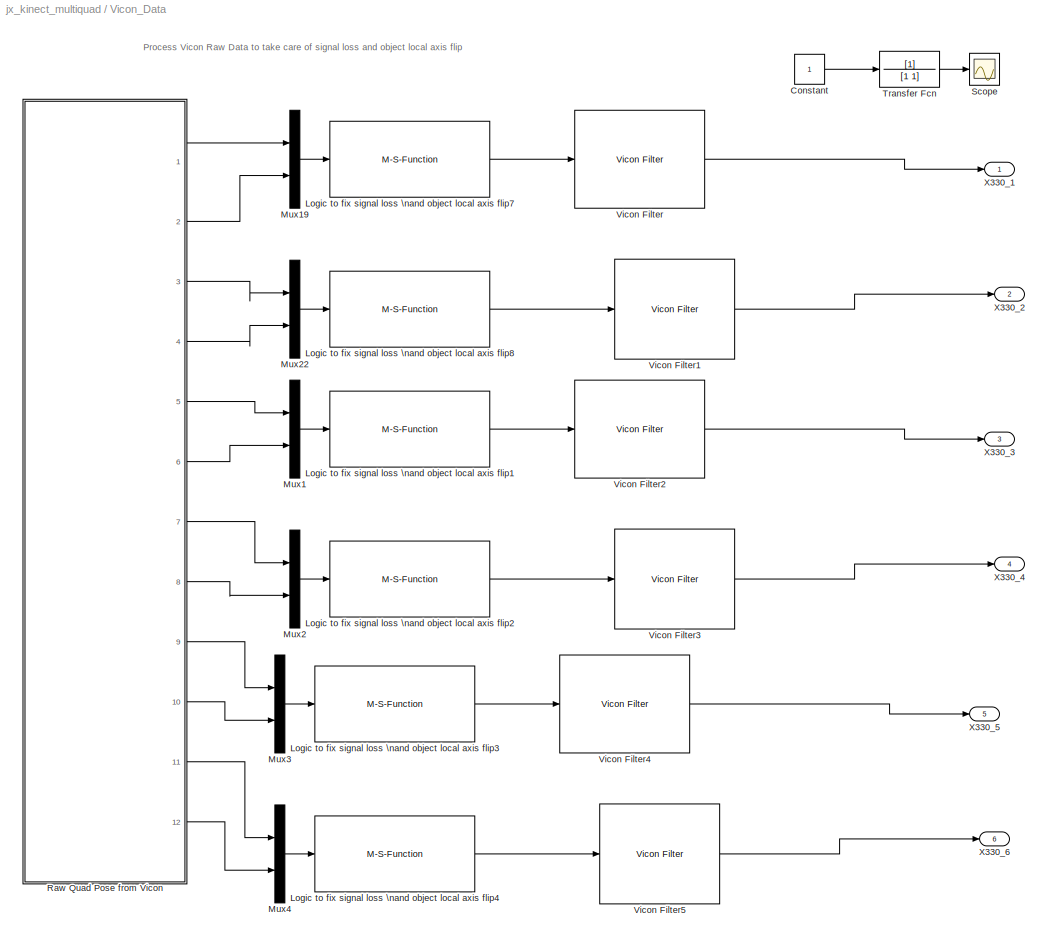
BLOCK [SubSystem] Vicon_Data
  FunctionWithSeparateData = off
  MaskHideContents = off
  MinAlgLoopOccurrences = off
  Opaque = off
  Ports = [0, 6]
  PropExecContextOutsideSubsystem = off
  RTWSystemCode = Auto
  RequestExecContextInheritance = off
  SID = 622
BLOCK [Constant] Vicon_Data/Constant
  SID = 2834
  SampleTime = 5
BLOCK [M-S-Function] Vicon_Data/Logic to fix signal loss \nand object local axis flip1
  FunctionName = Vicon_Filter
  Ports = [1, 1]
  SID = 1865
BLOCK [M-S-Function] Vicon_Data/Logic to fix signal loss \nand object local axis flip2
  FunctionName = Vicon_Filter
  Ports = [1, 1]
  SID = 1866
BLOCK [M-S-Function] Vicon_Data/Logic to fix signal loss \nand object local axis flip3
  FunctionName = Vicon_Filter
  Ports = [1, 1]
  SID = 1873
BLOCK [M-S-Function] Vicon_Data/Logic to fix signal loss \nand object local axis flip4
  FunctionName = Vicon_Filter
  Ports = [1, 1]
  SID = 1874
BLOCK [M-S-Function] Vicon_Data/Logic to fix signal loss \nand object local axis flip7
  FunctionName = Vicon_Filter
  Ports = [1, 1]
  SID = 1426
BLOCK [M-S-Function] Vicon_Data/Logic to fix signal loss \nand object local axis flip8
  FunctionName = Vicon_Filter
  Ports = [1, 1]
  SID = 1501
BLOCK [Mux] Vicon_Data/Mux1
  DisplayOption = bar
  Inputs = 2
  Ports = [2, 1]
  SID = 1867
BLOCK [Mux] Vicon_Data/Mux19
  DisplayOption = bar
  Inputs = 2
  Ports = [2, 1]
  SID = 1427
BLOCK [Mux] Vicon_Data/Mux2
  DisplayOption = bar
  Inputs = 2
  Ports = [2, 1]
  SID = 1868
BLOCK [Mux] Vicon_Data/Mux22
  DisplayOption = bar
  Inputs = 2
  Ports = [2, 1]
  SID = 1502
BLOCK [Mux] Vicon_Data/Mux3
  DisplayOption = bar
  Inputs = 2
  Ports = [2, 1]
  SID = 1875
BLOCK [Mux] Vicon_Data/Mux4
  DisplayOption = bar
  Inputs = 2
  Ports = [2, 1]
  SID = 1876
BLOCK [SubSystem] Vicon_Data/Raw Quad Pose from Vicon
  FunctionWithSeparateData = off
  MaskHideContents = off
  MinAlgLoopOccurrences = off
  Opaque = off
  Ports = [0, 12]
  PropExecContextOutsideSubsystem = off
  RTWSystemCode = Auto
  RequestExecContextInheritance = off
  SID = 675
BLOCK [Outport] Vicon_Data/Raw Quad Pose from Vicon/Attitude_Vicon_X330_1
  IconDisplay = Port number
  Port = 2
  SID = 1403
BLOCK [Outport] Vicon_Data/Raw Quad Pose from Vicon/Attitude_Vicon_X330_2
  IconDisplay = Port number
  Port = 4
  SID = 1478
BLOCK [Outport] Vicon_Data/Raw Quad Pose from Vicon/Attitude_Vicon_X330_3
  IconDisplay = Port number
  Port = 6
  SID = 1731
BLOCK [Outport] Vicon_Data/Raw Quad Pose from Vicon/Attitude_Vicon_X330_4
  IconDisplay = Port number
  Port = 8
  SID = 1847
BLOCK [Outport] Vicon_Data/Raw Quad Pose from Vicon/Attitude_Vicon_X330_5
  IconDisplay = Port number
  Port = 10
  SID = 1849
BLOCK [Outport] Vicon_Data/Raw Quad Pose from Vicon/Attitude_Vicon_X330_6
  IconDisplay = Port number
  Port = 12
  SID = 1851
BLOCK [Constant] Vicon_Data/Raw Quad Pose from Vicon/Constant
  SID = 1431
  SampleTime = sample_time
BLOCK [Demux] Vicon_Data/Raw Quad Pose from Vicon/Demux
  DisplayOption = bar
  Outputs = 6
  Ports = [1, 6]
  SID = 677
BLOCK [MATLABFcn] Vicon_Data/Raw Quad Pose from Vicon/Interpreted MATLAB\nFunction
  MATLABFcn = GetViconPose_330_6Quad
  Ports = [1, 1]
  SID = 678
BLOCK [Outport] Vicon_Data/Raw Quad Pose from Vicon/Position_Vicon_X330_1
  IconDisplay = Port number
  SID = 1402
BLOCK [Outport] Vicon_Data/Raw Quad Pose from Vicon/Position_Vicon_X330_2
  IconDisplay = Port number
  Port = 3
  SID = 1477
BLOCK [Outport] Vicon_Data/Raw Quad Pose from Vicon/Position_Vicon_X330_3
  IconDisplay = Port number
  Port = 5
  SID = 1730
BLOCK [Outport] Vicon_Data/Raw Quad Pose from Vicon/Position_Vicon_X330_4
  IconDisplay = Port number
  Port = 7
  SID = 1846
BLOCK [Outport] Vicon_Data/Raw Quad Pose from Vicon/Position_Vicon_X330_5
  IconDisplay = Port number
  Port = 9
  SID = 1848
BLOCK [Outport] Vicon_Data/Raw Quad Pose from Vicon/Position_Vicon_X330_6
  IconDisplay = Port number
  Port = 11
  SID = 1850
BLOCK [SubSystem] Vicon_Data/Raw Quad Pose from Vicon/Process Vicon Raw Data1
  FunctionWithSeparateData = off
  MaskHideContents = off
  MinAlgLoopOccurrences = off
  Opaque = off
  Ports = [1, 2]
  PropExecContextOutsideSubsystem = off
  RTWSystemCode = Auto
  RequestExecContextInheritance = off
  SID = 1692
BLOCK [Sum] Vicon_Data/Raw Quad Pose from Vicon/Process Vicon Raw Data1/Add1
  InputSameDT = off
  Inputs = -+
  OutDataTypeStr = Inherit: Inherit via internal rule
  Ports = [2, 1]
  SID = 1694
  SaturateOnIntegerOverflow = off
BLOCK [Outport] Vicon_Data/Raw Quad Pose from Vicon/Process Vicon Raw Data1/Attitude
  IconDisplay = Port number
  Port = 2
  SID = 1729
BLOCK [Constant] Vicon_Data/Raw Quad Pose from Vicon/Process Vicon Raw Data1/Constant1
  OutDataTypeStr = double
  SID = 1695
  Value = pi
BLOCK [Demux] Vicon_Data/Raw Quad Pose from Vicon/Process Vicon Raw Data1/Demux
  DisplayOption = bar
  Outputs = 6
  Ports = [1, 6]
  SID = 1696
BLOCK [SubSystem] Vicon_Data/Raw Quad Pose from Vicon/Process Vicon Raw Data1/Flip_pi1
  FunctionWithSeparateData = off
  MaskDescription = Flips the inputs into the range -pi to pi
  MaskDisplay = disp('Flip_pi')
  MaskHelp = Flips the inputs into the range -pi to pi
  MaskHideContents = off
  MaskIconFrame = on
  MaskIconOpaque = on
  MaskIconRotate = none
  MaskIconUnits = autoscale
  MaskPortRotate = default
  MaskType = Flip -pi to pi
  MinAlgLoopOccurrences = off
  Opaque = off
  Ports = [1, 1]
  PropExecContextOutsideSubsystem = off
  RTWSystemCode = Auto
  RequestExecContextInheritance = off
  SID = 1697
BLOCK [Sum] Vicon_Data/Raw Quad Pose from Vicon/Process Vicon Raw Data1/Flip_pi1/Add
  InputSameDT = off
  Inputs = -+
  OutDataTypeStr = Inherit: Inherit via internal rule
  Ports = [2, 1]
  SID = 1699
  SaturateOnIntegerOverflow = off
BLOCK [Inport] Vicon_Data/Raw Quad Pose from Vicon/Process Vicon Raw Data1/Flip_pi1/Angle
  IconDisplay = Port number
  SID = 1698
BLOCK [Outport] Vicon_Data/Raw Quad Pose from Vicon/Process Vicon Raw Data1/Flip_pi1/Angle_Flip
  IconDisplay = Port number
  SID = 1721
BLOCK [Reference] Vicon_Data/Raw Quad Pose from Vicon/Process Vicon Raw Data1/Flip_pi1/Compare\nTo Constant1  REF=simulink/Logic and Bit\nOperations/Compare\nTo Constant
  FunctionWithSeparateData = off
  GeneratePreprocessorConditionals = off
  LogicOutDataTypeMode = uint8
  Ports = [1, 1]
  RTWMemSecDataConstants = Inherit from model
  RTWMemSecDataInternal = Inherit from model
  RTWMemSecDataParameters = Inherit from model
  RTWMemSecFuncExecute = Inherit from model
  RTWMemSecFuncInitTerm = Inherit from model
  SID = 1700
  ShowPortLabels = FromPortIcon
  SourceBlock = simulink/Logic and Bit\nOperations/Compare\nTo Constant
  SourceType = Compare To Constant
  SystemSampleTime = -1
  ZeroCross = off
  const = pi
  relop = >
BLOCK [Constant] Vicon_Data/Raw Quad Pose from Vicon/Process Vicon Raw Data1/Flip_pi1/Constant
  SID = 1701
  Value = 2*pi
BLOCK [DataTypeDuplicate] Vicon_Data/Raw Quad Pose from Vicon/Process Vicon Raw Data1/Flip_pi1/Data Type\nDuplicate
  Ports = [2]
  SID = 1702
BLOCK [SubSystem] Vicon_Data/Raw Quad Pose from Vicon/Process Vicon Raw Data1/Flip_pi1/Flip_0_to_2pi
  FunctionWithSeparateData = off
  MaskDescription = Flips the inputs into the range zero to +2pi
  MaskDisplay = disp('Flip_0_2pi')
  MaskHelp = Flips the inputs into the range zero to +2pi
  MaskHideContents = off
  MaskIconFrame = on
  MaskIconOpaque = on
  MaskIconRotate = none
  MaskIconUnits = autoscale
  MaskPortRotate = default
  MaskType = Flip zero to 2pi
  MinAlgLoopOccurrences = off
  Opaque = off
  Ports = [1, 1]
  PropExecContextOutsideSubsystem = off
  RTWSystemCode = Auto
  RequestExecContextInheritance = off
  SID = 1703
BLOCK [Sum] Vicon_Data/Raw Quad Pose from Vicon/Process Vicon Raw Data1/Flip_pi1/Flip_0_to_2pi/Add
  InputSameDT = off
  OutDataTypeStr = Inherit: Inherit via internal rule
  Ports = [2, 1]
  SID = 1705
  SaturateOnIntegerOverflow = off
BLOCK [Inport] Vicon_Data/Raw Quad Pose from Vicon/Process Vicon Raw Data1/Flip_pi1/Flip_0_to_2pi/Angle
  IconDisplay = Port number
  SID = 1704
BLOCK [Outport] Vicon_Data/Raw Quad Pose from Vicon/Process Vicon Raw Data1/Flip_pi1/Flip_0_to_2pi/Angle_Flip
  IconDisplay = Port number
  SID = 1719
BLOCK [Reference] Vicon_Data/Raw Quad Pose from Vicon/Process Vicon Raw Data1/Flip_pi1/Flip_0_to_2pi/Compare\nTo Constant1  REF=simulink/Logic and Bit\nOperations/Compare\nTo Constant
  FunctionWithSeparateData = off
  GeneratePreprocessorConditionals = off
  LogicOutDataTypeMode = uint8
  Ports = [1, 1]
  RTWMemSecDataConstants = Inherit from model
  RTWMemSecDataInternal = Inherit from model
  RTWMemSecDataParameters = Inherit from model
  RTWMemSecFuncExecute = Inherit from model
  RTWMemSecFuncInitTerm = Inherit from model
  SID = 1706
  ShowPortLabels = FromPortIcon
  SourceBlock = simulink/Logic and Bit\nOperations/Compare\nTo Constant
  SourceType = Compare To Constant
  SystemSampleTime = -1
  ZeroCross = off
  const = 0
  relop = <
BLOCK [Constant] Vicon_Data/Raw Quad Pose from Vicon/Process Vicon Raw Data1/Flip_pi1/Flip_0_to_2pi/Constant
  SID = 1707
  Value = 2*pi
BLOCK [DataTypeDuplicate] Vicon_Data/Raw Quad Pose from Vicon/Process Vicon Raw Data1/Flip_pi1/Flip_0_to_2pi/Data Type\nDuplicate
  Ports = [2]
  SID = 1708
BLOCK [SubSystem] Vicon_Data/Raw Quad Pose from Vicon/Process Vicon Raw Data1/Flip_pi1/Flip_0_to_2pi/Flip_2pi
  FunctionWithSeparateData = off
  MaskDescription = Flips the inputs into the range -2pi to +2pi
  MaskDisplay = disp('Flip_2pi')
  MaskHelp = Flips the inputs into the range -2pi to +2pi
  MaskHideContents = off
  MaskIconFrame = on
  MaskIconOpaque = on
  MaskIconRotate = none
  MaskIconUnits = autoscale
  MaskPortRotate = default
  MaskType = Flip -2pi to 2pi
  MinAlgLoopOccurrences = off
  Opaque = off
  Ports = [1, 1]
  PropExecContextOutsideSubsystem = off
  RTWSystemCode = Auto
  RequestExecContextInheritance = off
  SID = 1709
BLOCK [Inport] Vicon_Data/Raw Quad Pose from Vicon/Process Vicon Raw Data1/Flip_pi1/Flip_0_to_2pi/Flip_2pi/Angle
  IconDisplay = Port number
  SID = 1710
BLOCK [Outport] Vicon_Data/Raw Quad Pose from Vicon/Process Vicon Raw Data1/Flip_pi1/Flip_0_to_2pi/Flip_2pi/Angle_Flip
  IconDisplay = Port number
  SID = 1717
BLOCK [Bias] Vicon_Data/Raw Quad Pose from Vicon/Process Vicon Raw Data1/Flip_pi1/Flip_0_to_2pi/Flip_2pi/Bias
  Bias = -2*pi
  SID = 1711
  SaturateOnIntegerOverflow = off
BLOCK [Constant] Vicon_Data/Raw Quad Pose from Vicon/Process Vicon Raw Data1/Flip_pi1/Flip_0_to_2pi/Flip_2pi/Constant
  SID = 1712
  Value = 2*pi
BLOCK [DataTypeDuplicate] Vicon_Data/Raw Quad Pose from Vicon/Process Vicon Raw Data1/Flip_pi1/Flip_0_to_2pi/Flip_2pi/Data Type\nDuplicate
  Ports = [2]
  SID = 1713
BLOCK [Math] Vicon_Data/Raw Quad Pose from Vicon/Process Vicon Raw Data1/Flip_pi1/Flip_0_to_2pi/Flip_2pi/Modulo
  Operator = mod
  Ports = [2, 1]
  SID = 1714
BLOCK [Signum] Vicon_Data/Raw Quad Pose from Vicon/Process Vicon Raw Data1/Flip_pi1/Flip_0_to_2pi/Flip_2pi/Sign1
  SID = 1715
BLOCK [Switch] Vicon_Data/Raw Quad Pose from Vicon/Process Vicon Raw Data1/Flip_pi1/Flip_0_to_2pi/Flip_2pi/Switch
  InputSameDT = off
  SID = 1716
  SaturateOnIntegerOverflow = off
BLOCK [Switch] Vicon_Data/Raw Quad Pose from Vicon/Process Vicon Raw Data1/Flip_pi1/Flip_0_to_2pi/Switch
  Criteria = u2 ~= 0
  InputSameDT = off
  SID = 1718
  SaturateOnIntegerOverflow = off
BLOCK [Switch] Vicon_Data/Raw Quad Pose from Vicon/Process Vicon Raw Data1/Flip_pi1/Switch
  Criteria = u2 ~= 0
  InputSameDT = off
  SID = 1720
  SaturateOnIntegerOverflow = off
BLOCK [Gain] Vicon_Data/Raw Quad Pose from Vicon/Process Vicon Raw Data1/Gain1
  Gain = 0.001
  OutDataTypeStr = Inherit: Inherit via internal rule
  ParamDataTypeStr = Inherit: Inherit via internal rule
  SID = 1722
  SaturateOnIntegerOverflow = off
BLOCK [Gain] Vicon_Data/Raw Quad Pose from Vicon/Process Vicon Raw Data1/Gain3
  Gain = -1
  OutDataTypeStr = Inherit: Inherit via internal rule
  ParamDataTypeStr = Inherit: Inherit via internal rule
  SID = 1723
  SaturateOnIntegerOverflow = off
BLOCK [Gain] Vicon_Data/Raw Quad Pose from Vicon/Process Vicon Raw Data1/Gain6
  Gain = -0.001
  OutDataTypeStr = Inherit: Inherit via internal rule
  ParamDataTypeStr = Inherit: Inherit via internal rule
  SID = 1724
  SaturateOnIntegerOverflow = off
BLOCK [Gain] Vicon_Data/Raw Quad Pose from Vicon/Process Vicon Raw Data1/Gain7
  Gain = -0.001
  OutDataTypeStr = Inherit: Inherit via internal rule
  ParamDataTypeStr = Inherit: Inherit via internal rule
  SID = 1725
  SaturateOnIntegerOverflow = off
BLOCK [Concatenate] Vicon_Data/Raw Quad Pose from Vicon/Process Vicon Raw Data1/Matrix\nConcatenate1
  Mode = Multidimensional array
  NumInputs = 3
  Ports = [3, 1]
  SID = 1726
BLOCK [Concatenate] Vicon_Data/Raw Quad Pose from Vicon/Process Vicon Raw Data1/Matrix\nConcatenate13
  Mode = Multidimensional array
  NumInputs = 3
  Ports = [3, 1]
  SID = 1727
BLOCK [Outport] Vicon_Data/Raw Quad Pose from Vicon/Process Vicon Raw Data1/Position
  IconDisplay = Port number
  SID = 1728
BLOCK [Inport] Vicon_Data/Raw Quad Pose from Vicon/Process Vicon Raw Data1/Vicon Raw
  IconDisplay = Port number
  SID = 1693
BLOCK [SubSystem] Vicon_Data/Raw Quad Pose from Vicon/Process Vicon Raw Data2
  FunctionWithSeparateData = off
  MaskHideContents = off
  MinAlgLoopOccurrences = off
  Opaque = off
  Ports = [1, 2]
  PropExecContextOutsideSubsystem = off
  RTWSystemCode = Auto
  RequestExecContextInheritance = off
  SID = 1732
BLOCK [Sum] Vicon_Data/Raw Quad Pose from Vicon/Process Vicon Raw Data2/Add1
  InputSameDT = off
  Inputs = -+
  OutDataTypeStr = Inherit: Inherit via internal rule
  Ports = [2, 1]
  SID = 1734
  SaturateOnIntegerOverflow = off
BLOCK [Outport] Vicon_Data/Raw Quad Pose from Vicon/Process Vicon Raw Data2/Attitude
  IconDisplay = Port number
  Port = 2
  SID = 1769
BLOCK [Constant] Vicon_Data/Raw Quad Pose from Vicon/Process Vicon Raw Data2/Constant1
  OutDataTypeStr = double
  SID = 1735
  Value = pi
BLOCK [Demux] Vicon_Data/Raw Quad Pose from Vicon/Process Vicon Raw Data2/Demux
  DisplayOption = bar
  Outputs = 6
  Ports = [1, 6]
  SID = 1736
BLOCK [SubSystem] Vicon_Data/Raw Quad Pose from Vicon/Process Vicon Raw Data2/Flip_pi1
  FunctionWithSeparateData = off
  MaskDescription = Flips the inputs into the range -pi to pi
  MaskDisplay = disp('Flip_pi')
  MaskHelp = Flips the inputs into the range -pi to pi
  MaskHideContents = off
  MaskIconFrame = on
  MaskIconOpaque = on
  MaskIconRotate = none
  MaskIconUnits = autoscale
  MaskPortRotate = default
  MaskType = Flip -pi to pi
  MinAlgLoopOccurrences = off
  Opaque = off
  Ports = [1, 1]
  PropExecContextOutsideSubsystem = off
  RTWSystemCode = Auto
  RequestExecContextInheritance = off
  SID = 1737
BLOCK [Sum] Vicon_Data/Raw Quad Pose from Vicon/Process Vicon Raw Data2/Flip_pi1/Add
  InputSameDT = off
  Inputs = -+
  OutDataTypeStr = Inherit: Inherit via internal rule
  Ports = [2, 1]
  SID = 1739
  SaturateOnIntegerOverflow = off
BLOCK [Inport] Vicon_Data/Raw Quad Pose from Vicon/Process Vicon Raw Data2/Flip_pi1/Angle
  IconDisplay = Port number
  SID = 1738
BLOCK [Outport] Vicon_Data/Raw Quad Pose from Vicon/Process Vicon Raw Data2/Flip_pi1/Angle_Flip
  IconDisplay = Port number
  SID = 1761
BLOCK [Reference] Vicon_Data/Raw Quad Pose from Vicon/Process Vicon Raw Data2/Flip_pi1/Compare\nTo Constant1  REF=simulink/Logic and Bit\nOperations/Compare\nTo Constant
  FunctionWithSeparateData = off
  GeneratePreprocessorConditionals = off
  LogicOutDataTypeMode = uint8
  Ports = [1, 1]
  RTWMemSecDataConstants = Inherit from model
  RTWMemSecDataInternal = Inherit from model
  RTWMemSecDataParameters = Inherit from model
  RTWMemSecFuncExecute = Inherit from model
  RTWMemSecFuncInitTerm = Inherit from model
  SID = 1740
  ShowPortLabels = FromPortIcon
  SourceBlock = simulink/Logic and Bit\nOperations/Compare\nTo Constant
  SourceType = Compare To Constant
  SystemSampleTime = -1
  ZeroCross = off
  const = pi
  relop = >
BLOCK [Constant] Vicon_Data/Raw Quad Pose from Vicon/Process Vicon Raw Data2/Flip_pi1/Constant
  SID = 1741
  Value = 2*pi
BLOCK [DataTypeDuplicate] Vicon_Data/Raw Quad Pose from Vicon/Process Vicon Raw Data2/Flip_pi1/Data Type\nDuplicate
  Ports = [2]
  SID = 1742
BLOCK [SubSystem] Vicon_Data/Raw Quad Pose from Vicon/Process Vicon Raw Data2/Flip_pi1/Flip_0_to_2pi
  FunctionWithSeparateData = off
  MaskDescription = Flips the inputs into the range zero to +2pi
  MaskDisplay = disp('Flip_0_2pi')
  MaskHelp = Flips the inputs into the range zero to +2pi
  MaskHideContents = off
  MaskIconFrame = on
  MaskIconOpaque = on
  MaskIconRotate = none
  MaskIconUnits = autoscale
  MaskPortRotate = default
  MaskType = Flip zero to 2pi
  MinAlgLoopOccurrences = off
  Opaque = off
  Ports = [1, 1]
  PropExecContextOutsideSubsystem = off
  RTWSystemCode = Auto
  RequestExecContextInheritance = off
  SID = 1743
BLOCK [Sum] Vicon_Data/Raw Quad Pose from Vicon/Process Vicon Raw Data2/Flip_pi1/Flip_0_to_2pi/Add
  InputSameDT = off
  OutDataTypeStr = Inherit: Inherit via internal rule
  Ports = [2, 1]
  SID = 1745
  SaturateOnIntegerOverflow = off
BLOCK [Inport] Vicon_Data/Raw Quad Pose from Vicon/Process Vicon Raw Data2/Flip_pi1/Flip_0_to_2pi/Angle
  IconDisplay = Port number
  SID = 1744
BLOCK [Outport] Vicon_Data/Raw Quad Pose from Vicon/Process Vicon Raw Data2/Flip_pi1/Flip_0_to_2pi/Angle_Flip
  IconDisplay = Port number
  SID = 1759
BLOCK [Reference] Vicon_Data/Raw Quad Pose from Vicon/Process Vicon Raw Data2/Flip_pi1/Flip_0_to_2pi/Compare\nTo Constant1  REF=simulink/Logic and Bit\nOperations/Compare\nTo Constant
  FunctionWithSeparateData = off
  GeneratePreprocessorConditionals = off
  LogicOutDataTypeMode = uint8
  Ports = [1, 1]
  RTWMemSecDataConstants = Inherit from model
  RTWMemSecDataInternal = Inherit from model
  RTWMemSecDataParameters = Inherit from model
  RTWMemSecFuncExecute = Inherit from model
  RTWMemSecFuncInitTerm = Inherit from model
  SID = 1746
  ShowPortLabels = FromPortIcon
  SourceBlock = simulink/Logic and Bit\nOperations/Compare\nTo Constant
  SourceType = Compare To Constant
  SystemSampleTime = -1
  ZeroCross = off
  const = 0
  relop = <
BLOCK [Constant] Vicon_Data/Raw Quad Pose from Vicon/Process Vicon Raw Data2/Flip_pi1/Flip_0_to_2pi/Constant
  SID = 1747
  Value = 2*pi
BLOCK [DataTypeDuplicate] Vicon_Data/Raw Quad Pose from Vicon/Process Vicon Raw Data2/Flip_pi1/Flip_0_to_2pi/Data Type\nDuplicate
  Ports = [2]
  SID = 1748
BLOCK [SubSystem] Vicon_Data/Raw Quad Pose from Vicon/Process Vicon Raw Data2/Flip_pi1/Flip_0_to_2pi/Flip_2pi
  FunctionWithSeparateData = off
  MaskDescription = Flips the inputs into the range -2pi to +2pi
  MaskDisplay = disp('Flip_2pi')
  MaskHelp = Flips the inputs into the range -2pi to +2pi
  MaskHideContents = off
  MaskIconFrame = on
  MaskIconOpaque = on
  MaskIconRotate = none
  MaskIconUnits = autoscale
  MaskPortRotate = default
  MaskType = Flip -2pi to 2pi
  MinAlgLoopOccurrences = off
  Opaque = off
  Ports = [1, 1]
  PropExecContextOutsideSubsystem = off
  RTWSystemCode = Auto
  RequestExecContextInheritance = off
  SID = 1749
BLOCK [Inport] Vicon_Data/Raw Quad Pose from Vicon/Process Vicon Raw Data2/Flip_pi1/Flip_0_to_2pi/Flip_2pi/Angle
  IconDisplay = Port number
  SID = 1750
BLOCK [Outport] Vicon_Data/Raw Quad Pose from Vicon/Process Vicon Raw Data2/Flip_pi1/Flip_0_to_2pi/Flip_2pi/Angle_Flip
  IconDisplay = Port number
  SID = 1757
BLOCK [Bias] Vicon_Data/Raw Quad Pose from Vicon/Process Vicon Raw Data2/Flip_pi1/Flip_0_to_2pi/Flip_2pi/Bias
  Bias = -2*pi
  SID = 1751
  SaturateOnIntegerOverflow = off
BLOCK [Constant] Vicon_Data/Raw Quad Pose from Vicon/Process Vicon Raw Data2/Flip_pi1/Flip_0_to_2pi/Flip_2pi/Constant
  SID = 1752
  Value = 2*pi
BLOCK [DataTypeDuplicate] Vicon_Data/Raw Quad Pose from Vicon/Process Vicon Raw Data2/Flip_pi1/Flip_0_to_2pi/Flip_2pi/Data Type\nDuplicate
  Ports = [2]
  SID = 1753
BLOCK [Math] Vicon_Data/Raw Quad Pose from Vicon/Process Vicon Raw Data2/Flip_pi1/Flip_0_to_2pi/Flip_2pi/Modulo
  Operator = mod
  Ports = [2, 1]
  SID = 1754
BLOCK [Signum] Vicon_Data/Raw Quad Pose from Vicon/Process Vicon Raw Data2/Flip_pi1/Flip_0_to_2pi/Flip_2pi/Sign1
  SID = 1755
BLOCK [Switch] Vicon_Data/Raw Quad Pose from Vicon/Process Vicon Raw Data2/Flip_pi1/Flip_0_to_2pi/Flip_2pi/Switch
  InputSameDT = off
  SID = 1756
  SaturateOnIntegerOverflow = off
BLOCK [Switch] Vicon_Data/Raw Quad Pose from Vicon/Process Vicon Raw Data2/Flip_pi1/Flip_0_to_2pi/Switch
  Criteria = u2 ~= 0
  InputSameDT = off
  SID = 1758
  SaturateOnIntegerOverflow = off
BLOCK [Switch] Vicon_Data/Raw Quad Pose from Vicon/Process Vicon Raw Data2/Flip_pi1/Switch
  Criteria = u2 ~= 0
  InputSameDT = off
  SID = 1760
  SaturateOnIntegerOverflow = off
BLOCK [Gain] Vicon_Data/Raw Quad Pose from Vicon/Process Vicon Raw Data2/Gain1
  Gain = 0.001
  OutDataTypeStr = Inherit: Inherit via internal rule
  ParamDataTypeStr = Inherit: Inherit via internal rule
  SID = 1762
  SaturateOnIntegerOverflow = off
BLOCK [Gain] Vicon_Data/Raw Quad Pose from Vicon/Process Vicon Raw Data2/Gain3
  Gain = -1
  OutDataTypeStr = Inherit: Inherit via internal rule
  ParamDataTypeStr = Inherit: Inherit via internal rule
  SID = 1763
  SaturateOnIntegerOverflow = off
BLOCK [Gain] Vicon_Data/Raw Quad Pose from Vicon/Process Vicon Raw Data2/Gain6
  Gain = -0.001
  OutDataTypeStr = Inherit: Inherit via internal rule
  ParamDataTypeStr = Inherit: Inherit via internal rule
  SID = 1764
  SaturateOnIntegerOverflow = off
BLOCK [Gain] Vicon_Data/Raw Quad Pose from Vicon/Process Vicon Raw Data2/Gain7
  Gain = -0.001
  OutDataTypeStr = Inherit: Inherit via internal rule
  ParamDataTypeStr = Inherit: Inherit via internal rule
  SID = 1765
  SaturateOnIntegerOverflow = off
BLOCK [Concatenate] Vicon_Data/Raw Quad Pose from Vicon/Process Vicon Raw Data2/Matrix\nConcatenate1
  Mode = Multidimensional array
  NumInputs = 3
  Ports = [3, 1]
  SID = 1766
BLOCK [Concatenate] Vicon_Data/Raw Quad Pose from Vicon/Process Vicon Raw Data2/Matrix\nConcatenate13
  Mode = Multidimensional array
  NumInputs = 3
  Ports = [3, 1]
  SID = 1767
BLOCK [Outport] Vicon_Data/Raw Quad Pose from Vicon/Process Vicon Raw Data2/Position
  IconDisplay = Port number
  SID = 1768
BLOCK [Inport] Vicon_Data/Raw Quad Pose from Vicon/Process Vicon Raw Data2/Vicon Raw
  IconDisplay = Port number
  SID = 1733
BLOCK [SubSystem] Vicon_Data/Raw Quad Pose from Vicon/Process Vicon Raw Data3
  FunctionWithSeparateData = off
  MaskHideContents = off
  MinAlgLoopOccurrences = off
  Opaque = off
  Ports = [1, 2]
  PropExecContextOutsideSubsystem = off
  RTWSystemCode = Auto
  RequestExecContextInheritance = off
  SID = 1770
BLOCK [Sum] Vicon_Data/Raw Quad Pose from Vicon/Process Vicon Raw Data3/Add1
  InputSameDT = off
  Inputs = -+
  OutDataTypeStr = Inherit: Inherit via internal rule
  Ports = [2, 1]
  SID = 1772
  SaturateOnIntegerOverflow = off
BLOCK [Outport] Vicon_Data/Raw Quad Pose from Vicon/Process Vicon Raw Data3/Attitude
  IconDisplay = Port number
  Port = 2
  SID = 1807
BLOCK [Constant] Vicon_Data/Raw Quad Pose from Vicon/Process Vicon Raw Data3/Constant1
  OutDataTypeStr = double
  SID = 1773
  Value = pi
BLOCK [Demux] Vicon_Data/Raw Quad Pose from Vicon/Process Vicon Raw Data3/Demux
  DisplayOption = bar
  Outputs = 6
  Ports = [1, 6]
  SID = 1774
BLOCK [SubSystem] Vicon_Data/Raw Quad Pose from Vicon/Process Vicon Raw Data3/Flip_pi1
  FunctionWithSeparateData = off
  MaskDescription = Flips the inputs into the range -pi to pi
  MaskDisplay = disp('Flip_pi')
  MaskHelp = Flips the inputs into the range -pi to pi
  MaskHideContents = off
  MaskIconFrame = on
  MaskIconOpaque = on
  MaskIconRotate = none
  MaskIconUnits = autoscale
  MaskPortRotate = default
  MaskType = Flip -pi to pi
  MinAlgLoopOccurrences = off
  Opaque = off
  Ports = [1, 1]
  PropExecContextOutsideSubsystem = off
  RTWSystemCode = Auto
  RequestExecContextInheritance = off
  SID = 1775
BLOCK [Sum] Vicon_Data/Raw Quad Pose from Vicon/Process Vicon Raw Data3/Flip_pi1/Add
  InputSameDT = off
  Inputs = -+
  OutDataTypeStr = Inherit: Inherit via internal rule
  Ports = [2, 1]
  SID = 1777
  SaturateOnIntegerOverflow = off
BLOCK [Inport] Vicon_Data/Raw Quad Pose from Vicon/Process Vicon Raw Data3/Flip_pi1/Angle
  IconDisplay = Port number
  SID = 1776
BLOCK [Outport] Vicon_Data/Raw Quad Pose from Vicon/Process Vicon Raw Data3/Flip_pi1/Angle_Flip
  IconDisplay = Port number
  SID = 1799
BLOCK [Reference] Vicon_Data/Raw Quad Pose from Vicon/Process Vicon Raw Data3/Flip_pi1/Compare\nTo Constant1  REF=simulink/Logic and Bit\nOperations/Compare\nTo Constant
  FunctionWithSeparateData = off
  GeneratePreprocessorConditionals = off
  LogicOutDataTypeMode = uint8
  Ports = [1, 1]
  RTWMemSecDataConstants = Inherit from model
  RTWMemSecDataInternal = Inherit from model
  RTWMemSecDataParameters = Inherit from model
  RTWMemSecFuncExecute = Inherit from model
  RTWMemSecFuncInitTerm = Inherit from model
  SID = 1778
  ShowPortLabels = FromPortIcon
  SourceBlock = simulink/Logic and Bit\nOperations/Compare\nTo Constant
  SourceType = Compare To Constant
  SystemSampleTime = -1
  ZeroCross = off
  const = pi
  relop = >
BLOCK [Constant] Vicon_Data/Raw Quad Pose from Vicon/Process Vicon Raw Data3/Flip_pi1/Constant
  SID = 1779
  Value = 2*pi
BLOCK [DataTypeDuplicate] Vicon_Data/Raw Quad Pose from Vicon/Process Vicon Raw Data3/Flip_pi1/Data Type\nDuplicate
  Ports = [2]
  SID = 1780
BLOCK [SubSystem] Vicon_Data/Raw Quad Pose from Vicon/Process Vicon Raw Data3/Flip_pi1/Flip_0_to_2pi
  FunctionWithSeparateData = off
  MaskDescription = Flips the inputs into the range zero to +2pi
  MaskDisplay = disp('Flip_0_2pi')
  MaskHelp = Flips the inputs into the range zero to +2pi
  MaskHideContents = off
  MaskIconFrame = on
  MaskIconOpaque = on
  MaskIconRotate = none
  MaskIconUnits = autoscale
  MaskPortRotate = default
  MaskType = Flip zero to 2pi
  MinAlgLoopOccurrences = off
  Opaque = off
  Ports = [1, 1]
  PropExecContextOutsideSubsystem = off
  RTWSystemCode = Auto
  RequestExecContextInheritance = off
  SID = 1781
BLOCK [Sum] Vicon_Data/Raw Quad Pose from Vicon/Process Vicon Raw Data3/Flip_pi1/Flip_0_to_2pi/Add
  InputSameDT = off
  OutDataTypeStr = Inherit: Inherit via internal rule
  Ports = [2, 1]
  SID = 1783
  SaturateOnIntegerOverflow = off
BLOCK [Inport] Vicon_Data/Raw Quad Pose from Vicon/Process Vicon Raw Data3/Flip_pi1/Flip_0_to_2pi/Angle
  IconDisplay = Port number
  SID = 1782
BLOCK [Outport] Vicon_Data/Raw Quad Pose from Vicon/Process Vicon Raw Data3/Flip_pi1/Flip_0_to_2pi/Angle_Flip
  IconDisplay = Port number
  SID = 1797
BLOCK [Reference] Vicon_Data/Raw Quad Pose from Vicon/Process Vicon Raw Data3/Flip_pi1/Flip_0_to_2pi/Compare\nTo Constant1  REF=simulink/Logic and Bit\nOperations/Compare\nTo Constant
  FunctionWithSeparateData = off
  GeneratePreprocessorConditionals = off
  LogicOutDataTypeMode = uint8
  Ports = [1, 1]
  RTWMemSecDataConstants = Inherit from model
  RTWMemSecDataInternal = Inherit from model
  RTWMemSecDataParameters = Inherit from model
  RTWMemSecFuncExecute = Inherit from model
  RTWMemSecFuncInitTerm = Inherit from model
  SID = 1784
  ShowPortLabels = FromPortIcon
  SourceBlock = simulink/Logic and Bit\nOperations/Compare\nTo Constant
  SourceType = Compare To Constant
  SystemSampleTime = -1
  ZeroCross = off
  const = 0
  relop = <
BLOCK [Constant] Vicon_Data/Raw Quad Pose from Vicon/Process Vicon Raw Data3/Flip_pi1/Flip_0_to_2pi/Constant
  SID = 1785
  Value = 2*pi
BLOCK [DataTypeDuplicate] Vicon_Data/Raw Quad Pose from Vicon/Process Vicon Raw Data3/Flip_pi1/Flip_0_to_2pi/Data Type\nDuplicate
  Ports = [2]
  SID = 1786
BLOCK [SubSystem] Vicon_Data/Raw Quad Pose from Vicon/Process Vicon Raw Data3/Flip_pi1/Flip_0_to_2pi/Flip_2pi
  FunctionWithSeparateData = off
  MaskDescription = Flips the inputs into the range -2pi to +2pi
  MaskDisplay = disp('Flip_2pi')
  MaskHelp = Flips the inputs into the range -2pi to +2pi
  MaskHideContents = off
  MaskIconFrame = on
  MaskIconOpaque = on
  MaskIconRotate = none
  MaskIconUnits = autoscale
  MaskPortRotate = default
  MaskType = Flip -2pi to 2pi
  MinAlgLoopOccurrences = off
  Opaque = off
  Ports = [1, 1]
  PropExecContextOutsideSubsystem = off
  RTWSystemCode = Auto
  RequestExecContextInheritance = off
  SID = 1787
BLOCK [Inport] Vicon_Data/Raw Quad Pose from Vicon/Process Vicon Raw Data3/Flip_pi1/Flip_0_to_2pi/Flip_2pi/Angle
  IconDisplay = Port number
  SID = 1788
BLOCK [Outport] Vicon_Data/Raw Quad Pose from Vicon/Process Vicon Raw Data3/Flip_pi1/Flip_0_to_2pi/Flip_2pi/Angle_Flip
  IconDisplay = Port number
  SID = 1795
BLOCK [Bias] Vicon_Data/Raw Quad Pose from Vicon/Process Vicon Raw Data3/Flip_pi1/Flip_0_to_2pi/Flip_2pi/Bias
  Bias = -2*pi
  SID = 1789
  SaturateOnIntegerOverflow = off
BLOCK [Constant] Vicon_Data/Raw Quad Pose from Vicon/Process Vicon Raw Data3/Flip_pi1/Flip_0_to_2pi/Flip_2pi/Constant
  SID = 1790
  Value = 2*pi
BLOCK [DataTypeDuplicate] Vicon_Data/Raw Quad Pose from Vicon/Process Vicon Raw Data3/Flip_pi1/Flip_0_to_2pi/Flip_2pi/Data Type\nDuplicate
  Ports = [2]
  SID = 1791
BLOCK [Math] Vicon_Data/Raw Quad Pose from Vicon/Process Vicon Raw Data3/Flip_pi1/Flip_0_to_2pi/Flip_2pi/Modulo
  Operator = mod
  Ports = [2, 1]
  SID = 1792
BLOCK [Signum] Vicon_Data/Raw Quad Pose from Vicon/Process Vicon Raw Data3/Flip_pi1/Flip_0_to_2pi/Flip_2pi/Sign1
  SID = 1793
BLOCK [Switch] Vicon_Data/Raw Quad Pose from Vicon/Process Vicon Raw Data3/Flip_pi1/Flip_0_to_2pi/Flip_2pi/Switch
  InputSameDT = off
  SID = 1794
  SaturateOnIntegerOverflow = off
BLOCK [Switch] Vicon_Data/Raw Quad Pose from Vicon/Process Vicon Raw Data3/Flip_pi1/Flip_0_to_2pi/Switch
  Criteria = u2 ~= 0
  InputSameDT = off
  SID = 1796
  SaturateOnIntegerOverflow = off
BLOCK [Switch] Vicon_Data/Raw Quad Pose from Vicon/Process Vicon Raw Data3/Flip_pi1/Switch
  Criteria = u2 ~= 0
  InputSameDT = off
  SID = 1798
  SaturateOnIntegerOverflow = off
BLOCK [Gain] Vicon_Data/Raw Quad Pose from Vicon/Process Vicon Raw Data3/Gain1
  Gain = 0.001
  OutDataTypeStr = Inherit: Inherit via internal rule
  ParamDataTypeStr = Inherit: Inherit via internal rule
  SID = 1800
  SaturateOnIntegerOverflow = off
BLOCK [Gain] Vicon_Data/Raw Quad Pose from Vicon/Process Vicon Raw Data3/Gain3
  Gain = -1
  OutDataTypeStr = Inherit: Inherit via internal rule
  ParamDataTypeStr = Inherit: Inherit via internal rule
  SID = 1801
  SaturateOnIntegerOverflow = off
BLOCK [Gain] Vicon_Data/Raw Quad Pose from Vicon/Process Vicon Raw Data3/Gain6
  Gain = -0.001
  OutDataTypeStr = Inherit: Inherit via internal rule
  ParamDataTypeStr = Inherit: Inherit via internal rule
  SID = 1802
  SaturateOnIntegerOverflow = off
BLOCK [Gain] Vicon_Data/Raw Quad Pose from Vicon/Process Vicon Raw Data3/Gain7
  Gain = -0.001
  OutDataTypeStr = Inherit: Inherit via internal rule
  ParamDataTypeStr = Inherit: Inherit via internal rule
  SID = 1803
  SaturateOnIntegerOverflow = off
BLOCK [Concatenate] Vicon_Data/Raw Quad Pose from Vicon/Process Vicon Raw Data3/Matrix\nConcatenate1
  Mode = Multidimensional array
  NumInputs = 3
  Ports = [3, 1]
  SID = 1804
BLOCK [Concatenate] Vicon_Data/Raw Quad Pose from Vicon/Process Vicon Raw Data3/Matrix\nConcatenate13
  Mode = Multidimensional array
  NumInputs = 3
  Ports = [3, 1]
  SID = 1805
BLOCK [Outport] Vicon_Data/Raw Quad Pose from Vicon/Process Vicon Raw Data3/Position
  IconDisplay = Port number
  SID = 1806
BLOCK [Inport] Vicon_Data/Raw Quad Pose from Vicon/Process Vicon Raw Data3/Vicon Raw
  IconDisplay = Port number
  SID = 1771
BLOCK [SubSystem] Vicon_Data/Raw Quad Pose from Vicon/Process Vicon Raw Data4
  FunctionWithSeparateData = off
  MaskHideContents = off
  MinAlgLoopOccurrences = off
  Opaque = off
  Ports = [1, 2]
  PropExecContextOutsideSubsystem = off
  RTWSystemCode = Auto
  RequestExecContextInheritance = off
  SID = 1808
BLOCK [Sum] Vicon_Data/Raw Quad Pose from Vicon/Process Vicon Raw Data4/Add1
  InputSameDT = off
  Inputs = -+
  OutDataTypeStr = Inherit: Inherit via internal rule
  Ports = [2, 1]
  SID = 1810
  SaturateOnIntegerOverflow = off
BLOCK [Outport] Vicon_Data/Raw Quad Pose from Vicon/Process Vicon Raw Data4/Attitude
  IconDisplay = Port number
  Port = 2
  SID = 1845
BLOCK [Constant] Vicon_Data/Raw Quad Pose from Vicon/Process Vicon Raw Data4/Constant1
  OutDataTypeStr = double
  SID = 1811
  Value = pi
BLOCK [Demux] Vicon_Data/Raw Quad Pose from Vicon/Process Vicon Raw Data4/Demux
  DisplayOption = bar
  Outputs = 6
  Ports = [1, 6]
  SID = 1812
BLOCK [SubSystem] Vicon_Data/Raw Quad Pose from Vicon/Process Vicon Raw Data4/Flip_pi1
  FunctionWithSeparateData = off
  MaskDescription = Flips the inputs into the range -pi to pi
  MaskDisplay = disp('Flip_pi')
  MaskHelp = Flips the inputs into the range -pi to pi
  MaskHideContents = off
  MaskIconFrame = on
  MaskIconOpaque = on
  MaskIconRotate = none
  MaskIconUnits = autoscale
  MaskPortRotate = default
  MaskType = Flip -pi to pi
  MinAlgLoopOccurrences = off
  Opaque = off
  Ports = [1, 1]
  PropExecContextOutsideSubsystem = off
  RTWSystemCode = Auto
  RequestExecContextInheritance = off
  SID = 1813
BLOCK [Sum] Vicon_Data/Raw Quad Pose from Vicon/Process Vicon Raw Data4/Flip_pi1/Add
  InputSameDT = off
  Inputs = -+
  OutDataTypeStr = Inherit: Inherit via internal rule
  Ports = [2, 1]
  SID = 1815
  SaturateOnIntegerOverflow = off
BLOCK [Inport] Vicon_Data/Raw Quad Pose from Vicon/Process Vicon Raw Data4/Flip_pi1/Angle
  IconDisplay = Port number
  SID = 1814
BLOCK [Outport] Vicon_Data/Raw Quad Pose from Vicon/Process Vicon Raw Data4/Flip_pi1/Angle_Flip
  IconDisplay = Port number
  SID = 1837
BLOCK [Reference] Vicon_Data/Raw Quad Pose from Vicon/Process Vicon Raw Data4/Flip_pi1/Compare\nTo Constant1  REF=simulink/Logic and Bit\nOperations/Compare\nTo Constant
  FunctionWithSeparateData = off
  GeneratePreprocessorConditionals = off
  LogicOutDataTypeMode = uint8
  Ports = [1, 1]
  RTWMemSecDataConstants = Inherit from model
  RTWMemSecDataInternal = Inherit from model
  RTWMemSecDataParameters = Inherit from model
  RTWMemSecFuncExecute = Inherit from model
  RTWMemSecFuncInitTerm = Inherit from model
  SID = 1816
  ShowPortLabels = FromPortIcon
  SourceBlock = simulink/Logic and Bit\nOperations/Compare\nTo Constant
  SourceType = Compare To Constant
  SystemSampleTime = -1
  ZeroCross = off
  const = pi
  relop = >
BLOCK [Constant] Vicon_Data/Raw Quad Pose from Vicon/Process Vicon Raw Data4/Flip_pi1/Constant
  SID = 1817
  Value = 2*pi
BLOCK [DataTypeDuplicate] Vicon_Data/Raw Quad Pose from Vicon/Process Vicon Raw Data4/Flip_pi1/Data Type\nDuplicate
  Ports = [2]
  SID = 1818
BLOCK [SubSystem] Vicon_Data/Raw Quad Pose from Vicon/Process Vicon Raw Data4/Flip_pi1/Flip_0_to_2pi
  FunctionWithSeparateData = off
  MaskDescription = Flips the inputs into the range zero to +2pi
  MaskDisplay = disp('Flip_0_2pi')
  MaskHelp = Flips the inputs into the range zero to +2pi
  MaskHideContents = off
  MaskIconFrame = on
  MaskIconOpaque = on
  MaskIconRotate = none
  MaskIconUnits = autoscale
  MaskPortRotate = default
  MaskType = Flip zero to 2pi
  MinAlgLoopOccurrences = off
  Opaque = off
  Ports = [1, 1]
  PropExecContextOutsideSubsystem = off
  RTWSystemCode = Auto
  RequestExecContextInheritance = off
  SID = 1819
BLOCK [Sum] Vicon_Data/Raw Quad Pose from Vicon/Process Vicon Raw Data4/Flip_pi1/Flip_0_to_2pi/Add
  InputSameDT = off
  OutDataTypeStr = Inherit: Inherit via internal rule
  Ports = [2, 1]
  SID = 1821
  SaturateOnIntegerOverflow = off
BLOCK [Inport] Vicon_Data/Raw Quad Pose from Vicon/Process Vicon Raw Data4/Flip_pi1/Flip_0_to_2pi/Angle
  IconDisplay = Port number
  SID = 1820
BLOCK [Outport] Vicon_Data/Raw Quad Pose from Vicon/Process Vicon Raw Data4/Flip_pi1/Flip_0_to_2pi/Angle_Flip
  IconDisplay = Port number
  SID = 1835
BLOCK [Reference] Vicon_Data/Raw Quad Pose from Vicon/Process Vicon Raw Data4/Flip_pi1/Flip_0_to_2pi/Compare\nTo Constant1  REF=simulink/Logic and Bit\nOperations/Compare\nTo Constant
  FunctionWithSeparateData = off
  GeneratePreprocessorConditionals = off
  LogicOutDataTypeMode = uint8
  Ports = [1, 1]
  RTWMemSecDataConstants = Inherit from model
  RTWMemSecDataInternal = Inherit from model
  RTWMemSecDataParameters = Inherit from model
  RTWMemSecFuncExecute = Inherit from model
  RTWMemSecFuncInitTerm = Inherit from model
  SID = 1822
  ShowPortLabels = FromPortIcon
  SourceBlock = simulink/Logic and Bit\nOperations/Compare\nTo Constant
  SourceType = Compare To Constant
  SystemSampleTime = -1
  ZeroCross = off
  const = 0
  relop = <
BLOCK [Constant] Vicon_Data/Raw Quad Pose from Vicon/Process Vicon Raw Data4/Flip_pi1/Flip_0_to_2pi/Constant
  SID = 1823
  Value = 2*pi
BLOCK [DataTypeDuplicate] Vicon_Data/Raw Quad Pose from Vicon/Process Vicon Raw Data4/Flip_pi1/Flip_0_to_2pi/Data Type\nDuplicate
  Ports = [2]
  SID = 1824
BLOCK [SubSystem] Vicon_Data/Raw Quad Pose from Vicon/Process Vicon Raw Data4/Flip_pi1/Flip_0_to_2pi/Flip_2pi
  FunctionWithSeparateData = off
  MaskDescription = Flips the inputs into the range -2pi to +2pi
  MaskDisplay = disp('Flip_2pi')
  MaskHelp = Flips the inputs into the range -2pi to +2pi
  MaskHideContents = off
  MaskIconFrame = on
  MaskIconOpaque = on
  MaskIconRotate = none
  MaskIconUnits = autoscale
  MaskPortRotate = default
  MaskType = Flip -2pi to 2pi
  MinAlgLoopOccurrences = off
  Opaque = off
  Ports = [1, 1]
  PropExecContextOutsideSubsystem = off
  RTWSystemCode = Auto
  RequestExecContextInheritance = off
  SID = 1825
BLOCK [Inport] Vicon_Data/Raw Quad Pose from Vicon/Process Vicon Raw Data4/Flip_pi1/Flip_0_to_2pi/Flip_2pi/Angle
  IconDisplay = Port number
  SID = 1826
BLOCK [Outport] Vicon_Data/Raw Quad Pose from Vicon/Process Vicon Raw Data4/Flip_pi1/Flip_0_to_2pi/Flip_2pi/Angle_Flip
  IconDisplay = Port number
  SID = 1833
BLOCK [Bias] Vicon_Data/Raw Quad Pose from Vicon/Process Vicon Raw Data4/Flip_pi1/Flip_0_to_2pi/Flip_2pi/Bias
  Bias = -2*pi
  SID = 1827
  SaturateOnIntegerOverflow = off
BLOCK [Constant] Vicon_Data/Raw Quad Pose from Vicon/Process Vicon Raw Data4/Flip_pi1/Flip_0_to_2pi/Flip_2pi/Constant
  SID = 1828
  Value = 2*pi
BLOCK [DataTypeDuplicate] Vicon_Data/Raw Quad Pose from Vicon/Process Vicon Raw Data4/Flip_pi1/Flip_0_to_2pi/Flip_2pi/Data Type\nDuplicate
  Ports = [2]
  SID = 1829
BLOCK [Math] Vicon_Data/Raw Quad Pose from Vicon/Process Vicon Raw Data4/Flip_pi1/Flip_0_to_2pi/Flip_2pi/Modulo
  Operator = mod
  Ports = [2, 1]
  SID = 1830
BLOCK [Signum] Vicon_Data/Raw Quad Pose from Vicon/Process Vicon Raw Data4/Flip_pi1/Flip_0_to_2pi/Flip_2pi/Sign1
  SID = 1831
BLOCK [Switch] Vicon_Data/Raw Quad Pose from Vicon/Process Vicon Raw Data4/Flip_pi1/Flip_0_to_2pi/Flip_2pi/Switch
  InputSameDT = off
  SID = 1832
  SaturateOnIntegerOverflow = off
BLOCK [Switch] Vicon_Data/Raw Quad Pose from Vicon/Process Vicon Raw Data4/Flip_pi1/Flip_0_to_2pi/Switch
  Criteria = u2 ~= 0
  InputSameDT = off
  SID = 1834
  SaturateOnIntegerOverflow = off
BLOCK [Switch] Vicon_Data/Raw Quad Pose from Vicon/Process Vicon Raw Data4/Flip_pi1/Switch
  Criteria = u2 ~= 0
  InputSameDT = off
  SID = 1836
  SaturateOnIntegerOverflow = off
BLOCK [Gain] Vicon_Data/Raw Quad Pose from Vicon/Process Vicon Raw Data4/Gain1
  Gain = 0.001
  OutDataTypeStr = Inherit: Inherit via internal rule
  ParamDataTypeStr = Inherit: Inherit via internal rule
  SID = 1838
  SaturateOnIntegerOverflow = off
BLOCK [Gain] Vicon_Data/Raw Quad Pose from Vicon/Process Vicon Raw Data4/Gain3
  Gain = -1
  OutDataTypeStr = Inherit: Inherit via internal rule
  ParamDataTypeStr = Inherit: Inherit via internal rule
  SID = 1839
  SaturateOnIntegerOverflow = off
BLOCK [Gain] Vicon_Data/Raw Quad Pose from Vicon/Process Vicon Raw Data4/Gain6
  Gain = -0.001
  OutDataTypeStr = Inherit: Inherit via internal rule
  ParamDataTypeStr = Inherit: Inherit via internal rule
  SID = 1840
  SaturateOnIntegerOverflow = off
BLOCK [Gain] Vicon_Data/Raw Quad Pose from Vicon/Process Vicon Raw Data4/Gain7
  Gain = -0.001
  OutDataTypeStr = Inherit: Inherit via internal rule
  ParamDataTypeStr = Inherit: Inherit via internal rule
  SID = 1841
  SaturateOnIntegerOverflow = off
BLOCK [Concatenate] Vicon_Data/Raw Quad Pose from Vicon/Process Vicon Raw Data4/Matrix\nConcatenate1
  Mode = Multidimensional array
  NumInputs = 3
  Ports = [3, 1]
  SID = 1842
BLOCK [Concatenate] Vicon_Data/Raw Quad Pose from Vicon/Process Vicon Raw Data4/Matrix\nConcatenate13
  Mode = Multidimensional array
  NumInputs = 3
  Ports = [3, 1]
  SID = 1843
BLOCK [Outport] Vicon_Data/Raw Quad Pose from Vicon/Process Vicon Raw Data4/Position
  IconDisplay = Port number
  SID = 1844
BLOCK [Inport] Vicon_Data/Raw Quad Pose from Vicon/Process Vicon Raw Data4/Vicon Raw
  IconDisplay = Port number
  SID = 1809
BLOCK [SubSystem] Vicon_Data/Raw Quad Pose from Vicon/Process Vicon Raw Data6
  FunctionWithSeparateData = off
  MaskHideContents = off
  MinAlgLoopOccurrences = off
  Opaque = off
  Ports = [1, 2]
  PropExecContextOutsideSubsystem = off
  RTWSystemCode = Auto
  RequestExecContextInheritance = off
  SID = 1364
BLOCK [Sum] Vicon_Data/Raw Quad Pose from Vicon/Process Vicon Raw Data6/Add1
  InputSameDT = off
  Inputs = -+
  OutDataTypeStr = Inherit: Inherit via internal rule
  Ports = [2, 1]
  SID = 1366
  SaturateOnIntegerOverflow = off
BLOCK [Outport] Vicon_Data/Raw Quad Pose from Vicon/Process Vicon Raw Data6/Attitude
  IconDisplay = Port number
  Port = 2
  SID = 1401
BLOCK [Constant] Vicon_Data/Raw Quad Pose from Vicon/Process Vicon Raw Data6/Constant1
  OutDataTypeStr = double
  SID = 1367
  Value = pi
BLOCK [Demux] Vicon_Data/Raw Quad Pose from Vicon/Process Vicon Raw Data6/Demux
  DisplayOption = bar
  Outputs = 6
  Ports = [1, 6]
  SID = 1368
BLOCK [SubSystem] Vicon_Data/Raw Quad Pose from Vicon/Process Vicon Raw Data6/Flip_pi1
  FunctionWithSeparateData = off
  MaskDescription = Flips the inputs into the range -pi to pi
  MaskDisplay = disp('Flip_pi')
  MaskHelp = Flips the inputs into the range -pi to pi
  MaskHideContents = off
  MaskIconFrame = on
  MaskIconOpaque = on
  MaskIconRotate = none
  MaskIconUnits = autoscale
  MaskPortRotate = default
  MaskType = Flip -pi to pi
  MinAlgLoopOccurrences = off
  Opaque = off
  Ports = [1, 1]
  PropExecContextOutsideSubsystem = off
  RTWSystemCode = Auto
  RequestExecContextInheritance = off
  SID = 1369
BLOCK [Sum] Vicon_Data/Raw Quad Pose from Vicon/Process Vicon Raw Data6/Flip_pi1/Add
  InputSameDT = off
  Inputs = -+
  OutDataTypeStr = Inherit: Inherit via internal rule
  Ports = [2, 1]
  SID = 1371
  SaturateOnIntegerOverflow = off
BLOCK [Inport] Vicon_Data/Raw Quad Pose from Vicon/Process Vicon Raw Data6/Flip_pi1/Angle
  IconDisplay = Port number
  SID = 1370
BLOCK [Outport] Vicon_Data/Raw Quad Pose from Vicon/Process Vicon Raw Data6/Flip_pi1/Angle_Flip
  IconDisplay = Port number
  SID = 1393
BLOCK [Reference] Vicon_Data/Raw Quad Pose from Vicon/Process Vicon Raw Data6/Flip_pi1/Compare\nTo Constant1  REF=simulink/Logic and Bit\nOperations/Compare\nTo Constant
  FunctionWithSeparateData = off
  GeneratePreprocessorConditionals = off
  LogicOutDataTypeMode = uint8
  Ports = [1, 1]
  RTWMemSecDataConstants = Inherit from model
  RTWMemSecDataInternal = Inherit from model
  RTWMemSecDataParameters = Inherit from model
  RTWMemSecFuncExecute = Inherit from model
  RTWMemSecFuncInitTerm = Inherit from model
  SID = 1372
  ShowPortLabels = FromPortIcon
  SourceBlock = simulink/Logic and Bit\nOperations/Compare\nTo Constant
  SourceType = Compare To Constant
  SystemSampleTime = -1
  ZeroCross = off
  const = pi
  relop = >
BLOCK [Constant] Vicon_Data/Raw Quad Pose from Vicon/Process Vicon Raw Data6/Flip_pi1/Constant
  SID = 1373
  Value = 2*pi
BLOCK [DataTypeDuplicate] Vicon_Data/Raw Quad Pose from Vicon/Process Vicon Raw Data6/Flip_pi1/Data Type\nDuplicate
  Ports = [2]
  SID = 1374
BLOCK [SubSystem] Vicon_Data/Raw Quad Pose from Vicon/Process Vicon Raw Data6/Flip_pi1/Flip_0_to_2pi
  FunctionWithSeparateData = off
  MaskDescription = Flips the inputs into the range zero to +2pi
  MaskDisplay = disp('Flip_0_2pi')
  MaskHelp = Flips the inputs into the range zero to +2pi
  MaskHideContents = off
  MaskIconFrame = on
  MaskIconOpaque = on
  MaskIconRotate = none
  MaskIconUnits = autoscale
  MaskPortRotate = default
  MaskType = Flip zero to 2pi
  MinAlgLoopOccurrences = off
  Opaque = off
  Ports = [1, 1]
  PropExecContextOutsideSubsystem = off
  RTWSystemCode = Auto
  RequestExecContextInheritance = off
  SID = 1375
BLOCK [Sum] Vicon_Data/Raw Quad Pose from Vicon/Process Vicon Raw Data6/Flip_pi1/Flip_0_to_2pi/Add
  InputSameDT = off
  OutDataTypeStr = Inherit: Inherit via internal rule
  Ports = [2, 1]
  SID = 1377
  SaturateOnIntegerOverflow = off
BLOCK [Inport] Vicon_Data/Raw Quad Pose from Vicon/Process Vicon Raw Data6/Flip_pi1/Flip_0_to_2pi/Angle
  IconDisplay = Port number
  SID = 1376
BLOCK [Outport] Vicon_Data/Raw Quad Pose from Vicon/Process Vicon Raw Data6/Flip_pi1/Flip_0_to_2pi/Angle_Flip
  IconDisplay = Port number
  SID = 1391
BLOCK [Reference] Vicon_Data/Raw Quad Pose from Vicon/Process Vicon Raw Data6/Flip_pi1/Flip_0_to_2pi/Compare\nTo Constant1  REF=simulink/Logic and Bit\nOperations/Compare\nTo Constant
  FunctionWithSeparateData = off
  GeneratePreprocessorConditionals = off
  LogicOutDataTypeMode = uint8
  Ports = [1, 1]
  RTWMemSecDataConstants = Inherit from model
  RTWMemSecDataInternal = Inherit from model
  RTWMemSecDataParameters = Inherit from model
  RTWMemSecFuncExecute = Inherit from model
  RTWMemSecFuncInitTerm = Inherit from model
  SID = 1378
  ShowPortLabels = FromPortIcon
  SourceBlock = simulink/Logic and Bit\nOperations/Compare\nTo Constant
  SourceType = Compare To Constant
  SystemSampleTime = -1
  ZeroCross = off
  const = 0
  relop = <
BLOCK [Constant] Vicon_Data/Raw Quad Pose from Vicon/Process Vicon Raw Data6/Flip_pi1/Flip_0_to_2pi/Constant
  SID = 1379
  Value = 2*pi
BLOCK [DataTypeDuplicate] Vicon_Data/Raw Quad Pose from Vicon/Process Vicon Raw Data6/Flip_pi1/Flip_0_to_2pi/Data Type\nDuplicate
  Ports = [2]
  SID = 1380
BLOCK [SubSystem] Vicon_Data/Raw Quad Pose from Vicon/Process Vicon Raw Data6/Flip_pi1/Flip_0_to_2pi/Flip_2pi
  FunctionWithSeparateData = off
  MaskDescription = Flips the inputs into the range -2pi to +2pi
  MaskDisplay = disp('Flip_2pi')
  MaskHelp = Flips the inputs into the range -2pi to +2pi
  MaskHideContents = off
  MaskIconFrame = on
  MaskIconOpaque = on
  MaskIconRotate = none
  MaskIconUnits = autoscale
  MaskPortRotate = default
  MaskType = Flip -2pi to 2pi
  MinAlgLoopOccurrences = off
  Opaque = off
  Ports = [1, 1]
  PropExecContextOutsideSubsystem = off
  RTWSystemCode = Auto
  RequestExecContextInheritance = off
  SID = 1381
BLOCK [Inport] Vicon_Data/Raw Quad Pose from Vicon/Process Vicon Raw Data6/Flip_pi1/Flip_0_to_2pi/Flip_2pi/Angle
  IconDisplay = Port number
  SID = 1382
BLOCK [Outport] Vicon_Data/Raw Quad Pose from Vicon/Process Vicon Raw Data6/Flip_pi1/Flip_0_to_2pi/Flip_2pi/Angle_Flip
  IconDisplay = Port number
  SID = 1389
BLOCK [Bias] Vicon_Data/Raw Quad Pose from Vicon/Process Vicon Raw Data6/Flip_pi1/Flip_0_to_2pi/Flip_2pi/Bias
  Bias = -2*pi
  SID = 1383
  SaturateOnIntegerOverflow = off
BLOCK [Constant] Vicon_Data/Raw Quad Pose from Vicon/Process Vicon Raw Data6/Flip_pi1/Flip_0_to_2pi/Flip_2pi/Constant
  SID = 1384
  Value = 2*pi
BLOCK [DataTypeDuplicate] Vicon_Data/Raw Quad Pose from Vicon/Process Vicon Raw Data6/Flip_pi1/Flip_0_to_2pi/Flip_2pi/Data Type\nDuplicate
  Ports = [2]
  SID = 1385
BLOCK [Math] Vicon_Data/Raw Quad Pose from Vicon/Process Vicon Raw Data6/Flip_pi1/Flip_0_to_2pi/Flip_2pi/Modulo
  Operator = mod
  Ports = [2, 1]
  SID = 1386
BLOCK [Signum] Vicon_Data/Raw Quad Pose from Vicon/Process Vicon Raw Data6/Flip_pi1/Flip_0_to_2pi/Flip_2pi/Sign1
  SID = 1387
BLOCK [Switch] Vicon_Data/Raw Quad Pose from Vicon/Process Vicon Raw Data6/Flip_pi1/Flip_0_to_2pi/Flip_2pi/Switch
  InputSameDT = off
  SID = 1388
  SaturateOnIntegerOverflow = off
BLOCK [Switch] Vicon_Data/Raw Quad Pose from Vicon/Process Vicon Raw Data6/Flip_pi1/Flip_0_to_2pi/Switch
  Criteria = u2 ~= 0
  InputSameDT = off
  SID = 1390
  SaturateOnIntegerOverflow = off
BLOCK [Switch] Vicon_Data/Raw Quad Pose from Vicon/Process Vicon Raw Data6/Flip_pi1/Switch
  Criteria = u2 ~= 0
  InputSameDT = off
  SID = 1392
  SaturateOnIntegerOverflow = off
BLOCK [Gain] Vicon_Data/Raw Quad Pose from Vicon/Process Vicon Raw Data6/Gain1
  Gain = 0.001
  OutDataTypeStr = Inherit: Inherit via internal rule
  ParamDataTypeStr = Inherit: Inherit via internal rule
  SID = 1394
  SaturateOnIntegerOverflow = off
BLOCK [Gain] Vicon_Data/Raw Quad Pose from Vicon/Process Vicon Raw Data6/Gain3
  Gain = -1
  OutDataTypeStr = Inherit: Inherit via internal rule
  ParamDataTypeStr = Inherit: Inherit via internal rule
  SID = 1395
  SaturateOnIntegerOverflow = off
BLOCK [Gain] Vicon_Data/Raw Quad Pose from Vicon/Process Vicon Raw Data6/Gain6
  Gain = -0.001
  OutDataTypeStr = Inherit: Inherit via internal rule
  ParamDataTypeStr = Inherit: Inherit via internal rule
  SID = 1396
  SaturateOnIntegerOverflow = off
BLOCK [Gain] Vicon_Data/Raw Quad Pose from Vicon/Process Vicon Raw Data6/Gain7
  Gain = -0.001
  OutDataTypeStr = Inherit: Inherit via internal rule
  ParamDataTypeStr = Inherit: Inherit via internal rule
  SID = 1397
  SaturateOnIntegerOverflow = off
BLOCK [Concatenate] Vicon_Data/Raw Quad Pose from Vicon/Process Vicon Raw Data6/Matrix\nConcatenate1
  Mode = Multidimensional array
  NumInputs = 3
  Ports = [3, 1]
  SID = 1398
BLOCK [Concatenate] Vicon_Data/Raw Quad Pose from Vicon/Process Vicon Raw Data6/Matrix\nConcatenate13
  Mode = Multidimensional array
  NumInputs = 3
  Ports = [3, 1]
  SID = 1399
BLOCK [Outport] Vicon_Data/Raw Quad Pose from Vicon/Process Vicon Raw Data6/Position
  IconDisplay = Port number
  SID = 1400
BLOCK [Inport] Vicon_Data/Raw Quad Pose from Vicon/Process Vicon Raw Data6/Vicon Raw
  IconDisplay = Port number
  SID = 1365
BLOCK [SubSystem] Vicon_Data/Raw Quad Pose from Vicon/Process Vicon Raw Data7
  FunctionWithSeparateData = off
  MaskHideContents = off
  MinAlgLoopOccurrences = off
  Opaque = off
  Ports = [1, 2]
  PropExecContextOutsideSubsystem = off
  RTWSystemCode = Auto
  RequestExecContextInheritance = off
  SID = 1439
BLOCK [Sum] Vicon_Data/Raw Quad Pose from Vicon/Process Vicon Raw Data7/Add1
  InputSameDT = off
  Inputs = -+
  OutDataTypeStr = Inherit: Inherit via internal rule
  Ports = [2, 1]
  SID = 1441
  SaturateOnIntegerOverflow = off
BLOCK [Outport] Vicon_Data/Raw Quad Pose from Vicon/Process Vicon Raw Data7/Attitude
  IconDisplay = Port number
  Port = 2
  SID = 1476
BLOCK [Constant] Vicon_Data/Raw Quad Pose from Vicon/Process Vicon Raw Data7/Constant1
  OutDataTypeStr = double
  SID = 1442
  Value = pi
BLOCK [Demux] Vicon_Data/Raw Quad Pose from Vicon/Process Vicon Raw Data7/Demux
  DisplayOption = bar
  Outputs = 6
  Ports = [1, 6]
  SID = 1443
BLOCK [SubSystem] Vicon_Data/Raw Quad Pose from Vicon/Process Vicon Raw Data7/Flip_pi1
  FunctionWithSeparateData = off
  MaskDescription = Flips the inputs into the range -pi to pi
  MaskDisplay = disp('Flip_pi')
  MaskHelp = Flips the inputs into the range -pi to pi
  MaskHideContents = off
  MaskIconFrame = on
  MaskIconOpaque = on
  MaskIconRotate = none
  MaskIconUnits = autoscale
  MaskPortRotate = default
  MaskType = Flip -pi to pi
  MinAlgLoopOccurrences = off
  Opaque = off
  Ports = [1, 1]
  PropExecContextOutsideSubsystem = off
  RTWSystemCode = Auto
  RequestExecContextInheritance = off
  SID = 1444
BLOCK [Sum] Vicon_Data/Raw Quad Pose from Vicon/Process Vicon Raw Data7/Flip_pi1/Add
  InputSameDT = off
  Inputs = -+
  OutDataTypeStr = Inherit: Inherit via internal rule
  Ports = [2, 1]
  SID = 1446
  SaturateOnIntegerOverflow = off
BLOCK [Inport] Vicon_Data/Raw Quad Pose from Vicon/Process Vicon Raw Data7/Flip_pi1/Angle
  IconDisplay = Port number
  SID = 1445
BLOCK [Outport] Vicon_Data/Raw Quad Pose from Vicon/Process Vicon Raw Data7/Flip_pi1/Angle_Flip
  IconDisplay = Port number
  SID = 1468
BLOCK [Reference] Vicon_Data/Raw Quad Pose from Vicon/Process Vicon Raw Data7/Flip_pi1/Compare\nTo Constant1  REF=simulink/Logic and Bit\nOperations/Compare\nTo Constant
  FunctionWithSeparateData = off
  GeneratePreprocessorConditionals = off
  LogicOutDataTypeMode = uint8
  Ports = [1, 1]
  RTWMemSecDataConstants = Inherit from model
  RTWMemSecDataInternal = Inherit from model
  RTWMemSecDataParameters = Inherit from model
  RTWMemSecFuncExecute = Inherit from model
  RTWMemSecFuncInitTerm = Inherit from model
  SID = 1447
  ShowPortLabels = FromPortIcon
  SourceBlock = simulink/Logic and Bit\nOperations/Compare\nTo Constant
  SourceType = Compare To Constant
  SystemSampleTime = -1
  ZeroCross = off
  const = pi
  relop = >
BLOCK [Constant] Vicon_Data/Raw Quad Pose from Vicon/Process Vicon Raw Data7/Flip_pi1/Constant
  SID = 1448
  Value = 2*pi
BLOCK [DataTypeDuplicate] Vicon_Data/Raw Quad Pose from Vicon/Process Vicon Raw Data7/Flip_pi1/Data Type\nDuplicate
  Ports = [2]
  SID = 1449
BLOCK [SubSystem] Vicon_Data/Raw Quad Pose from Vicon/Process Vicon Raw Data7/Flip_pi1/Flip_0_to_2pi
  FunctionWithSeparateData = off
  MaskDescription = Flips the inputs into the range zero to +2pi
  MaskDisplay = disp('Flip_0_2pi')
  MaskHelp = Flips the inputs into the range zero to +2pi
  MaskHideContents = off
  MaskIconFrame = on
  MaskIconOpaque = on
  MaskIconRotate = none
  MaskIconUnits = autoscale
  MaskPortRotate = default
  MaskType = Flip zero to 2pi
  MinAlgLoopOccurrences = off
  Opaque = off
  Ports = [1, 1]
  PropExecContextOutsideSubsystem = off
  RTWSystemCode = Auto
  RequestExecContextInheritance = off
  SID = 1450
BLOCK [Sum] Vicon_Data/Raw Quad Pose from Vicon/Process Vicon Raw Data7/Flip_pi1/Flip_0_to_2pi/Add
  InputSameDT = off
  OutDataTypeStr = Inherit: Inherit via internal rule
  Ports = [2, 1]
  SID = 1452
  SaturateOnIntegerOverflow = off
BLOCK [Inport] Vicon_Data/Raw Quad Pose from Vicon/Process Vicon Raw Data7/Flip_pi1/Flip_0_to_2pi/Angle
  IconDisplay = Port number
  SID = 1451
BLOCK [Outport] Vicon_Data/Raw Quad Pose from Vicon/Process Vicon Raw Data7/Flip_pi1/Flip_0_to_2pi/Angle_Flip
  IconDisplay = Port number
  SID = 1466
BLOCK [Reference] Vicon_Data/Raw Quad Pose from Vicon/Process Vicon Raw Data7/Flip_pi1/Flip_0_to_2pi/Compare\nTo Constant1  REF=simulink/Logic and Bit\nOperations/Compare\nTo Constant
  FunctionWithSeparateData = off
  GeneratePreprocessorConditionals = off
  LogicOutDataTypeMode = uint8
  Ports = [1, 1]
  RTWMemSecDataConstants = Inherit from model
  RTWMemSecDataInternal = Inherit from model
  RTWMemSecDataParameters = Inherit from model
  RTWMemSecFuncExecute = Inherit from model
  RTWMemSecFuncInitTerm = Inherit from model
  SID = 1453
  ShowPortLabels = FromPortIcon
  SourceBlock = simulink/Logic and Bit\nOperations/Compare\nTo Constant
  SourceType = Compare To Constant
  SystemSampleTime = -1
  ZeroCross = off
  const = 0
  relop = <
BLOCK [Constant] Vicon_Data/Raw Quad Pose from Vicon/Process Vicon Raw Data7/Flip_pi1/Flip_0_to_2pi/Constant
  SID = 1454
  Value = 2*pi
BLOCK [DataTypeDuplicate] Vicon_Data/Raw Quad Pose from Vicon/Process Vicon Raw Data7/Flip_pi1/Flip_0_to_2pi/Data Type\nDuplicate
  Ports = [2]
  SID = 1455
BLOCK [SubSystem] Vicon_Data/Raw Quad Pose from Vicon/Process Vicon Raw Data7/Flip_pi1/Flip_0_to_2pi/Flip_2pi
  FunctionWithSeparateData = off
  MaskDescription = Flips the inputs into the range -2pi to +2pi
  MaskDisplay = disp('Flip_2pi')
  MaskHelp = Flips the inputs into the range -2pi to +2pi
  MaskHideContents = off
  MaskIconFrame = on
  MaskIconOpaque = on
  MaskIconRotate = none
  MaskIconUnits = autoscale
  MaskPortRotate = default
  MaskType = Flip -2pi to 2pi
  MinAlgLoopOccurrences = off
  Opaque = off
  Ports = [1, 1]
  PropExecContextOutsideSubsystem = off
  RTWSystemCode = Auto
  RequestExecContextInheritance = off
  SID = 1456
BLOCK [Inport] Vicon_Data/Raw Quad Pose from Vicon/Process Vicon Raw Data7/Flip_pi1/Flip_0_to_2pi/Flip_2pi/Angle
  IconDisplay = Port number
  SID = 1457
BLOCK [Outport] Vicon_Data/Raw Quad Pose from Vicon/Process Vicon Raw Data7/Flip_pi1/Flip_0_to_2pi/Flip_2pi/Angle_Flip
  IconDisplay = Port number
  SID = 1464
BLOCK [Bias] Vicon_Data/Raw Quad Pose from Vicon/Process Vicon Raw Data7/Flip_pi1/Flip_0_to_2pi/Flip_2pi/Bias
  Bias = -2*pi
  SID = 1458
  SaturateOnIntegerOverflow = off
BLOCK [Constant] Vicon_Data/Raw Quad Pose from Vicon/Process Vicon Raw Data7/Flip_pi1/Flip_0_to_2pi/Flip_2pi/Constant
  SID = 1459
  Value = 2*pi
BLOCK [DataTypeDuplicate] Vicon_Data/Raw Quad Pose from Vicon/Process Vicon Raw Data7/Flip_pi1/Flip_0_to_2pi/Flip_2pi/Data Type\nDuplicate
  Ports = [2]
  SID = 1460
BLOCK [Math] Vicon_Data/Raw Quad Pose from Vicon/Process Vicon Raw Data7/Flip_pi1/Flip_0_to_2pi/Flip_2pi/Modulo
  Operator = mod
  Ports = [2, 1]
  SID = 1461
BLOCK [Signum] Vicon_Data/Raw Quad Pose from Vicon/Process Vicon Raw Data7/Flip_pi1/Flip_0_to_2pi/Flip_2pi/Sign1
  SID = 1462
BLOCK [Switch] Vicon_Data/Raw Quad Pose from Vicon/Process Vicon Raw Data7/Flip_pi1/Flip_0_to_2pi/Flip_2pi/Switch
  InputSameDT = off
  SID = 1463
  SaturateOnIntegerOverflow = off
BLOCK [Switch] Vicon_Data/Raw Quad Pose from Vicon/Process Vicon Raw Data7/Flip_pi1/Flip_0_to_2pi/Switch
  Criteria = u2 ~= 0
  InputSameDT = off
  SID = 1465
  SaturateOnIntegerOverflow = off
BLOCK [Switch] Vicon_Data/Raw Quad Pose from Vicon/Process Vicon Raw Data7/Flip_pi1/Switch
  Criteria = u2 ~= 0
  InputSameDT = off
  SID = 1467
  SaturateOnIntegerOverflow = off
BLOCK [Gain] Vicon_Data/Raw Quad Pose from Vicon/Process Vicon Raw Data7/Gain1
  Gain = 0.001
  OutDataTypeStr = Inherit: Inherit via internal rule
  ParamDataTypeStr = Inherit: Inherit via internal rule
  SID = 1469
  SaturateOnIntegerOverflow = off
BLOCK [Gain] Vicon_Data/Raw Quad Pose from Vicon/Process Vicon Raw Data7/Gain3
  Gain = -1
  OutDataTypeStr = Inherit: Inherit via internal rule
  ParamDataTypeStr = Inherit: Inherit via internal rule
  SID = 1470
  SaturateOnIntegerOverflow = off
BLOCK [Gain] Vicon_Data/Raw Quad Pose from Vicon/Process Vicon Raw Data7/Gain6
  Gain = -0.001
  OutDataTypeStr = Inherit: Inherit via internal rule
  ParamDataTypeStr = Inherit: Inherit via internal rule
  SID = 1471
  SaturateOnIntegerOverflow = off
BLOCK [Gain] Vicon_Data/Raw Quad Pose from Vicon/Process Vicon Raw Data7/Gain7
  Gain = -0.001
  OutDataTypeStr = Inherit: Inherit via internal rule
  ParamDataTypeStr = Inherit: Inherit via internal rule
  SID = 1472
  SaturateOnIntegerOverflow = off
BLOCK [Concatenate] Vicon_Data/Raw Quad Pose from Vicon/Process Vicon Raw Data7/Matrix\nConcatenate1
  Mode = Multidimensional array
  NumInputs = 3
  Ports = [3, 1]
  SID = 1473
BLOCK [Concatenate] Vicon_Data/Raw Quad Pose from Vicon/Process Vicon Raw Data7/Matrix\nConcatenate13
  Mode = Multidimensional array
  NumInputs = 3
  Ports = [3, 1]
  SID = 1474
BLOCK [Outport] Vicon_Data/Raw Quad Pose from Vicon/Process Vicon Raw Data7/Position
  IconDisplay = Port number
  SID = 1475
BLOCK [Inport] Vicon_Data/Raw Quad Pose from Vicon/Process Vicon Raw Data7/Vicon Raw
  IconDisplay = Port number
  SID = 1440
BLOCK [Scope] Vicon_Data/Scope
  DataFormat = StructureWithTime
  Floating = off
  NumInputPorts = 1
  Ports = [1]
  SID = 2835
  SampleTime = 0
  SaveName = ScopeData2
BLOCK [TransferFcn] Vicon_Data/Transfer Fcn
  Denominator = [1 1]
  SID = 2836
BLOCK [Reference] Vicon_Data/Vicon Filter  REF=X330_Control/Vicon Filter
  FunctionWithSeparateData = off
  GeneratePreprocessorConditionals = off
  Ports = [1, 1]
  RTWMemSecDataConstants = Inherit from model
  RTWMemSecDataInternal = Inherit from model
  RTWMemSecDataParameters = Inherit from model
  RTWMemSecFuncExecute = Inherit from model
  RTWMemSecFuncInitTerm = Inherit from model
  SID = 1683
  ShowPortLabels = FromPortIcon
  SourceBlock = X330_Control/Vicon Filter
  SourceType = SubSystem
  SystemSampleTime = -1
BLOCK [Reference] Vicon_Data/Vicon Filter1  REF=X330_Control/Vicon Filter
  FunctionWithSeparateData = off
  GeneratePreprocessorConditionals = off
  Ports = [1, 1]
  RTWMemSecDataConstants = Inherit from model
  RTWMemSecDataInternal = Inherit from model
  RTWMemSecDataParameters = Inherit from model
  RTWMemSecFuncExecute = Inherit from model
  RTWMemSecFuncInitTerm = Inherit from model
  SID = 1852
  ShowPortLabels = FromPortIcon
  SourceBlock = X330_Control/Vicon Filter
  SourceType = SubSystem
  SystemSampleTime = -1
BLOCK [Reference] Vicon_Data/Vicon Filter2  REF=X330_Control/Vicon Filter
  FunctionWithSeparateData = off
  GeneratePreprocessorConditionals = off
  Ports = [1, 1]
  RTWMemSecDataConstants = Inherit from model
  RTWMemSecDataInternal = Inherit from model
  RTWMemSecDataParameters = Inherit from model
  RTWMemSecFuncExecute = Inherit from model
  RTWMemSecFuncInitTerm = Inherit from model
  SID = 1869
  ShowPortLabels = FromPortIcon
  SourceBlock = X330_Control/Vicon Filter
  SourceType = SubSystem
  SystemSampleTime = -1
BLOCK [Reference] Vicon_Data/Vicon Filter3  REF=X330_Control/Vicon Filter
  FunctionWithSeparateData = off
  GeneratePreprocessorConditionals = off
  Ports = [1, 1]
  RTWMemSecDataConstants = Inherit from model
  RTWMemSecDataInternal = Inherit from model
  RTWMemSecDataParameters = Inherit from model
  RTWMemSecFuncExecute = Inherit from model
  RTWMemSecFuncInitTerm = Inherit from model
  SID = 1870
  ShowPortLabels = FromPortIcon
  SourceBlock = X330_Control/Vicon Filter
  SourceType = SubSystem
  SystemSampleTime = -1
BLOCK [Reference] Vicon_Data/Vicon Filter4  REF=X330_Control/Vicon Filter
  FunctionWithSeparateData = off
  GeneratePreprocessorConditionals = off
  Ports = [1, 1]
  RTWMemSecDataConstants = Inherit from model
  RTWMemSecDataInternal = Inherit from model
  RTWMemSecDataParameters = Inherit from model
  RTWMemSecFuncExecute = Inherit from model
  RTWMemSecFuncInitTerm = Inherit from model
  SID = 1877
  ShowPortLabels = FromPortIcon
  SourceBlock = X330_Control/Vicon Filter
  SourceType = SubSystem
  SystemSampleTime = -1
BLOCK [Reference] Vicon_Data/Vicon Filter5  REF=X330_Control/Vicon Filter
  FunctionWithSeparateData = off
  GeneratePreprocessorConditionals = off
  Ports = [1, 1]
  RTWMemSecDataConstants = Inherit from model
  RTWMemSecDataInternal = Inherit from model
  RTWMemSecDataParameters = Inherit from model
  RTWMemSecFuncExecute = Inherit from model
  RTWMemSecFuncInitTerm = Inherit from model
  SID = 1878
  ShowPortLabels = FromPortIcon
  SourceBlock = X330_Control/Vicon Filter
  SourceType = SubSystem
  SystemSampleTime = -1
BLOCK [Outport] Vicon_Data/X330_1
  IconDisplay = Port number
  SID = 1430
BLOCK [Outport] Vicon_Data/X330_2
  IconDisplay = Port number
  Port = 2
  SID = 1505
BLOCK [Outport] Vicon_Data/X330_3
  IconDisplay = Port number
  Port = 3
  SID = 1871
BLOCK [Outport] Vicon_Data/X330_4
  IconDisplay = Port number
  Port = 4
  SID = 1872
BLOCK [Outport] Vicon_Data/X330_5
  IconDisplay = Port number
  Port = 5
  SID = 1879
BLOCK [Outport] Vicon_Data/X330_6
  IconDisplay = Port number
  Port = 6
  SID = 1880
BLOCK [Scope] debug1
  DataFormat = StructureWithTime
  Floating = off
  LimitDataPoints = off
  NumInputPorts = 1
  Ports = [1]
  SID = 2358
  SampleTime = 0
  SaveName = ScopeData1
  TimeRange = 10
  YMax = 1
  YMin = -1
ANNOTATION (root): Initialization\n(Connect to Vicon)
ANNOTATION Debug vector: 6x1 vector (usec, XYZRPY)
ANNOTATION Kinect: Enable Signal
ANNOTATION UAV 1/Mixer: 7x1 vector (usec, XYZRPY)
ANNOTATION UAV 3/Mixer: 7x1 vector (usec, XYZRPY)
ANNOTATION UAV 4/Mixer: 7x1 vector (usec, XYZRPY)
ANNOTATION UAV 5/Mixer: 7x1 vector (usec, XYZRPY)
ANNOTATION UAV 6/Mixer: 7x1 vector (usec, XYZRPY)
ANNOTATION Vicon_Data: Process Vicon Raw Data to take care of signal loss and object local axis flip
ANNOTATION Vicon_Data/Raw Quad Pose from Vicon/Process Vicon Raw Data1: X
ANNOTATION Vicon_Data/Raw Quad Pose from Vicon/Process Vicon Raw Data1: Y
ANNOTATION Vicon_Data/Raw Quad Pose from Vicon/Process Vicon Raw Data1: Z
ANNOTATION Vicon_Data/Raw Quad Pose from Vicon/Process Vicon Raw Data2: X
ANNOTATION Vicon_Data/Raw Quad Pose from Vicon/Process Vicon Raw Data2: Y
ANNOTATION Vicon_Data/Raw Quad Pose from Vicon/Process Vicon Raw Data2: Z
ANNOTATION Vicon_Data/Raw Quad Pose from Vicon/Process Vicon Raw Data3: X
ANNOTATION Vicon_Data/Raw Quad Pose from Vicon/Process Vicon Raw Data3: Y
ANNOTATION Vicon_Data/Raw Quad Pose from Vicon/Process Vicon Raw Data3: Z
ANNOTATION Vicon_Data/Raw Quad Pose from Vicon/Process Vicon Raw Data4: X
ANNOTATION Vicon_Data/Raw Quad Pose from Vicon/Process Vicon Raw Data4: Y
ANNOTATION Vicon_Data/Raw Quad Pose from Vicon/Process Vicon Raw Data4: Z
ANNOTATION Vicon_Data/Raw Quad Pose from Vicon/Process Vicon Raw Data6: X
ANNOTATION Vicon_Data/Raw Quad Pose from Vicon/Process Vicon Raw Data6: Y
ANNOTATION Vicon_Data/Raw Quad Pose from Vicon/Process Vicon Raw Data6: Z
ANNOTATION Vicon_Data/Raw Quad Pose from Vicon/Process Vicon Raw Data7: X
ANNOTATION Vicon_Data/Raw Quad Pose from Vicon/Process Vicon Raw Data7: Y
ANNOTATION Vicon_Data/Raw Quad Pose from Vicon/Process Vicon Raw Data7: Z
LINE Debug vector/ID:1 -> Debug vector/Mux1:6
LINE Debug vector/Mux1:1 -> Debug vector/TRPY PWM ID:1
LINE Debug vector/PWM:1 -> Debug vector/Mux1:5
LINE Debug vector/Pitch:1 -> Debug vector/Mux1:3
LINE Debug vector/Roll:1 -> Debug vector/Mux1:2
LINE Debug vector/Sine Wave:1 -> Debug vector/Mux1:1
LINE Debug vector/Yaw:1 -> Debug vector/Mux1:4
NET Debug vector:1 -> Goto1:1, Selector1:1
NET From:1 -> UAV 1:2, UAV 3:2, UAV 4:2, UAV 5:2, UAV 6:2
LINE ID:1 -> Debug vector:1
LINE Kinect/From1:1 -> Kinect/Neck idx:1
LINE Kinect/From2:1 -> Kinect/R shoulder idx:1
LINE Kinect/From3:1 -> Kinect/R elbow idx:1
LINE Kinect/From4:1 -> Kinect/R hand idx:1
LINE Kinect/From5:1 -> Kinect/L hand idx:1
LINE Kinect/From6:1 -> Kinect/L elbow idx:1
LINE Kinect/From7:1 -> Kinect/L shoulder idx:1
LINE Kinect/From:1 -> Kinect/Head idx:1
LINE Kinect/Head idx/Kinect SDK:1 -> Kinect/Head idx/Switch:1
LINE Kinect/Head idx/OpenNI:1 -> Kinect/Head idx/Switch:3
LINE Kinect/Head idx/SDK:1 -> Kinect/Head idx/Switch:2
LINE Kinect/Head idx/Switch:1 -> Kinect/Head idx/Idx:1
LINE Kinect/Head idx:1 -> Kinect/Selector:2
LINE Kinect/L elbow idx/Kinect SDK:1 -> Kinect/L elbow idx/Switch:1
LINE Kinect/L elbow idx/OpenNI:1 -> Kinect/L elbow idx/Switch:3
LINE Kinect/L elbow idx/SDK:1 -> Kinect/L elbow idx/Switch:2
LINE Kinect/L elbow idx/Switch:1 -> Kinect/L elbow idx/Idx:1
LINE Kinect/L elbow idx:1 -> Kinect/Selector6:2
LINE Kinect/L hand idx/Kinect SDK:1 -> Kinect/L hand idx/Switch:1
LINE Kinect/L hand idx/OpenNI:1 -> Kinect/L hand idx/Switch:3
LINE Kinect/L hand idx/SDK:1 -> Kinect/L hand idx/Switch:2
LINE Kinect/L hand idx/Switch:1 -> Kinect/L hand idx/Idx:1
LINE Kinect/L hand idx:1 -> Kinect/Selector5:2
LINE Kinect/L shoulder idx/Kinect SDK:1 -> Kinect/L shoulder idx/Switch:1
LINE Kinect/L shoulder idx/OpenNI:1 -> Kinect/L shoulder idx/Switch:3
LINE Kinect/L shoulder idx/SDK:1 -> Kinect/L shoulder idx/Switch:2
LINE Kinect/L shoulder idx/Switch:1 -> Kinect/L shoulder idx/Idx:1
LINE Kinect/L shoulder idx:1 -> Kinect/Selector7:2
LINE Kinect/NID IMAQ:1 -> Kinect/NID Skeleton:1
LINE Kinect/NID Skeleton:1 -> Kinect/Kinect Tracking:1
NET Kinect/NID Skeleton:2 -> Kinect/Selector1:1, Kinect/Selector2:1, Kinect/Selector3:1, Kinect/Selector4:1, Kinect/Selector5:1, Kinect/Selector6:1, Kinect/Selector7:1, Kinect/Selector:1, Kinect/Width:1
LINE Kinect/Neck idx/Kinect SDK:1 -> Kinect/Neck idx/Switch:1
LINE Kinect/Neck idx/OpenNI:1 -> Kinect/Neck idx/Switch:3
LINE Kinect/Neck idx/SDK:1 -> Kinect/Neck idx/Switch:2
LINE Kinect/Neck idx/Switch:1 -> Kinect/Neck idx/Idx:1
LINE Kinect/Neck idx:1 -> Kinect/Selector1:2
LINE Kinect/R elbow idx/Kinect SDK:1 -> Kinect/R elbow idx/Switch:1
LINE Kinect/R elbow idx/OpenNI:1 -> Kinect/R elbow idx/Switch:3
LINE Kinect/R elbow idx/SDK:1 -> Kinect/R elbow idx/Switch:2
LINE Kinect/R elbow idx/Switch:1 -> Kinect/R elbow idx/Idx:1
LINE Kinect/R elbow idx:1 -> Kinect/Selector3:2
LINE Kinect/R hand idx/Kinect SDK:1 -> Kinect/R hand idx/Switch:1
LINE Kinect/R hand idx/OpenNI:1 -> Kinect/R hand idx/Switch:3
LINE Kinect/R hand idx/SDK:1 -> Kinect/R hand idx/Switch:2
LINE Kinect/R hand idx/Switch:1 -> Kinect/R hand idx/Idx:1
LINE Kinect/R hand idx:1 -> Kinect/Selector4:2
LINE Kinect/R shoulder idx/Kinect SDK:1 -> Kinect/R shoulder idx/Switch:1
LINE Kinect/R shoulder idx/OpenNI:1 -> Kinect/R shoulder idx/Switch:3
LINE Kinect/R shoulder idx/SDK:1 -> Kinect/R shoulder idx/Switch:2
LINE Kinect/R shoulder idx/Switch:1 -> Kinect/R shoulder idx/Idx:1
LINE Kinect/R shoulder idx:1 -> Kinect/Selector2:2
LINE Kinect/Relational\nOperator:1 -> Kinect/Goto:1
LINE Kinect/Selector1:1 -> Kinect/XYZtoX_Y_Z1:1
LINE Kinect/Selector2:1 -> Kinect/XYZtoX_Y_Z2:1
LINE Kinect/Selector3:1 -> Kinect/XYZtoX_Y_Z3:1
LINE Kinect/Selector4:1 -> Kinect/XYZtoX_Y_Z4:1
LINE Kinect/Selector5:1 -> Kinect/XYZtoX_Y_Z5:1
LINE Kinect/Selector6:1 -> Kinect/XYZtoX_Y_Z6:1
LINE Kinect/Selector7:1 -> Kinect/XYZtoX_Y_Z7:1
LINE Kinect/Selector:1 -> Kinect/XYZtoX_Y_Z:1
LINE Kinect/Subsystem/Front or Center or Back/Constant1:1 -> Kinect/Subsystem/Front or Center or Back/If Center:1
LINE Kinect/Subsystem/Front or Center or Back/Constant2:1 -> Kinect/Subsystem/Front or Center or Back/If front:1
LINE Kinect/Subsystem/Front or Center or Back/Constant3:1 -> Kinect/Subsystem/Front or Center or Back/If Back:1
LINE Kinect/Subsystem/Front or Center or Back/If Back/In1:1 -> Kinect/Subsystem/Front or Center or Back/If Back/Out1:1
LINE Kinect/Subsystem/Front or Center or Back/If Back:1 -> Kinect/Subsystem/Front or Center or Back/Merge3:3
LINE Kinect/Subsystem/Front or Center or Back/If Center/In1:1 -> Kinect/Subsystem/Front or Center or Back/If Center/Out1:1
LINE Kinect/Subsystem/Front or Center or Back/If Center:1 -> Kinect/Subsystem/Front or Center or Back/Merge3:2
LINE Kinect/Subsystem/Front or Center or Back/If Front or Center or Back:1 -> Kinect/Subsystem/Front or Center or Back/If front:ifaction
LINE Kinect/Subsystem/Front or Center or Back/If Front or Center or Back:2 -> Kinect/Subsystem/Front or Center or Back/If Center:ifaction
LINE Kinect/Subsystem/Front or Center or Back/If Front or Center or Back:3 -> Kinect/Subsystem/Front or Center or Back/If Back:ifaction
LINE Kinect/Subsystem/Front or Center or Back/If front/In1:1 -> Kinect/Subsystem/Front or Center or Back/If front/Out1:1
LINE Kinect/Subsystem/Front or Center or Back/If front:1 -> Kinect/Subsystem/Front or Center or Back/Merge3:1
LINE Kinect/Subsystem/Front or Center or Back/Merge3:1 -> Kinect/Subsystem/Front or Center or Back/Y FrontCenterBack:1
LINE Kinect/Subsystem/Front or Center or Back/Subtract:1 -> Kinect/Subsystem/Front or Center or Back/If Front or Center or Back:1
LINE Kinect/Subsystem/Front or Center or Back/Z: LH:1 -> Kinect/Subsystem/Front or Center or Back/Subtract:1
LINE Kinect/Subsystem/Front or Center or Back/Z: LSh:1 -> Kinect/Subsystem/Front or Center or Back/Subtract:2
NET Kinect/Subsystem/Front or Center or Back:1 -> Kinect/Subsystem/Mux:2, Kinect/Subsystem/Y FrontCenterBack:1
LINE Kinect/Subsystem/Left or Center or Right/Dead Zone:1 -> Kinect/Subsystem/Left or Center or Right/Gain:1
LINE Kinect/Subsystem/Left or Center or Right/Gain:1 -> Kinect/Subsystem/Left or Center or Right/Saturation:1
LINE Kinect/Subsystem/Left or Center or Right/Saturation:1 -> Kinect/Subsystem/Left or Center or Right/X LeftCenterRight:1
LINE Kinect/Subsystem/Left or Center or Right/Subtract:1 -> Kinect/Subsystem/Left or Center or Right/Dead Zone:1
LINE Kinect/Subsystem/Left or Center or Right/X: LH:1 -> Kinect/Subsystem/Left or Center or Right/Subtract:1
LINE Kinect/Subsystem/Left or Center or Right/X: LSh:1 -> Kinect/Subsystem/Left or Center or Right/Subtract:2
NET Kinect/Subsystem/Left or Center or Right:1 -> Kinect/Subsystem/Mux:1, Kinect/Subsystem/X LeftCenterRight:1
LINE Kinect/Subsystem/Mux:1 -> Kinect/Subsystem/Left Hand:1
LINE Kinect/Subsystem/Up or Center or Down/Center/In1:1 -> Kinect/Subsystem/Up or Center or Down/Center/Out1:1
LINE Kinect/Subsystem/Up or Center or Down/Center:1 -> Kinect/Subsystem/Up or Center or Down/Merge:2
LINE Kinect/Subsystem/Up or Center or Down/Constant1:1 -> Kinect/Subsystem/Up or Center or Down/Center:1
LINE Kinect/Subsystem/Up or Center or Down/Constant2:1 -> Kinect/Subsystem/Up or Center or Down/Down1:1
LINE Kinect/Subsystem/Up or Center or Down/Constant3:1 -> Kinect/Subsystem/Up or Center or Down/Down max:1
LINE Kinect/Subsystem/Up or Center or Down/Constant:1 -> Kinect/Subsystem/Up or Center or Down/Top1:1
LINE Kinect/Subsystem/Up or Center or Down/Dead Zone:1 -> Kinect/Subsystem/Up or Center or Down/Gain1:1
LINE Kinect/Subsystem/Up or Center or Down/Down max/In1:1 -> Kinect/Subsystem/Up or Center or Down/Down max/Out1:1
LINE Kinect/Subsystem/Up or Center or Down/Down max:1 -> Kinect/Subsystem/Up or Center or Down/Merge:4
LINE Kinect/Subsystem/Up or Center or Down/Down1/In1:1 -> Kinect/Subsystem/Up or Center or Down/Down1/Out1:1
LINE Kinect/Subsystem/Up or Center or Down/Down1:1 -> Kinect/Subsystem/Up or Center or Down/Merge:3
LINE Kinect/Subsystem/Up or Center or Down/Gain1:1 -> Kinect/Subsystem/Up or Center or Down/If:1
LINE Kinect/Subsystem/Up or Center or Down/If:1 -> Kinect/Subsystem/Up or Center or Down/Top1:ifaction
LINE Kinect/Subsystem/Up or Center or Down/If:2 -> Kinect/Subsystem/Up or Center or Down/Center:ifaction
LINE Kinect/Subsystem/Up or Center or Down/If:3 -> Kinect/Subsystem/Up or Center or Down/Down1:ifaction
LINE Kinect/Subsystem/Up or Center or Down/If:4 -> Kinect/Subsystem/Up or Center or Down/Down max:ifaction
LINE Kinect/Subsystem/Up or Center or Down/Merge:1 -> Kinect/Subsystem/Up or Center or Down/Z UpCenterDown:1
LINE Kinect/Subsystem/Up or Center or Down/Subtract:1 -> Kinect/Subsystem/Up or Center or Down/Dead Zone:1
LINE Kinect/Subsystem/Up or Center or Down/Top1/In1:1 -> Kinect/Subsystem/Up or Center or Down/Top1/Out1:1
LINE Kinect/Subsystem/Up or Center or Down/Top1:1 -> Kinect/Subsystem/Up or Center or Down/Merge:1
LINE Kinect/Subsystem/Up or Center or Down/Y LH:1 -> Kinect/Subsystem/Up or Center or Down/Subtract:1
LINE Kinect/Subsystem/Up or Center or Down/Y LSh:1 -> Kinect/Subsystem/Up or Center or Down/Subtract:2
NET Kinect/Subsystem/Up or Center or Down:1 -> Kinect/Subsystem/Mux:3, Kinect/Subsystem/Z UpCenterDown:1
LINE Kinect/Subsystem/XLH:1 -> Kinect/Subsystem/Left or Center or Right:1
LINE Kinect/Subsystem/XLSH:1 -> Kinect/Subsystem/Left or Center or Right:2
LINE Kinect/Subsystem/YLH:1 -> Kinect/Subsystem/Up or Center or Down:1
LINE Kinect/Subsystem/YLSh:1 -> Kinect/Subsystem/Up or Center or Down:2
LINE Kinect/Subsystem/ZLH:1 -> Kinect/Subsystem/Front or Center or Back:1
LINE Kinect/Subsystem/ZLSh:1 -> Kinect/Subsystem/Front or Center or Back:2
LINE Kinect/Subsystem1/Left or Center or Right/Dead Zone:1 -> Kinect/Subsystem1/Left or Center or Right/Gain:1
LINE Kinect/Subsystem1/Left or Center or Right/Gain:1 -> Kinect/Subsystem1/Left or Center or Right/Saturation:1
LINE Kinect/Subsystem1/Left or Center or Right/Saturation:1 -> Kinect/Subsystem1/Left or Center or Right/LeftCenterRight:1
LINE Kinect/Subsystem1/Left or Center or Right/Subtract:1 -> Kinect/Subsystem1/Left or Center or Right/Dead Zone:1
LINE Kinect/Subsystem1/Left or Center or Right/X: RH:1 -> Kinect/Subsystem1/Left or Center or Right/Subtract:1
LINE Kinect/Subsystem1/Left or Center or Right/X: RSh:1 -> Kinect/Subsystem1/Left or Center or Right/Subtract:2
LINE Kinect/Subsystem1/Left or Center or Right:1 -> Kinect/Subsystem1/Mux:2
LINE Kinect/Subsystem1/Mux:1 -> Kinect/Subsystem1/Right Hand:1
LINE Kinect/Subsystem1/Up or Center or Down/Center/In1:1 -> Kinect/Subsystem1/Up or Center or Down/Center/Out1:1
LINE Kinect/Subsystem1/Up or Center or Down/Center:1 -> Kinect/Subsystem1/Up or Center or Down/Merge4:2
LINE Kinect/Subsystem1/Up or Center or Down/Constant1:1 -> Kinect/Subsystem1/Up or Center or Down/Center:1
LINE Kinect/Subsystem1/Up or Center or Down/Constant2:1 -> Kinect/Subsystem1/Up or Center or Down/Down1:1
LINE Kinect/Subsystem1/Up or Center or Down/Constant:1 -> Kinect/Subsystem1/Up or Center or Down/Top1:1
LINE Kinect/Subsystem1/Up or Center or Down/Dead Zone:1 -> Kinect/Subsystem1/Up or Center or Down/Gain1:1
LINE Kinect/Subsystem1/Up or Center or Down/Down1/In1:1 -> Kinect/Subsystem1/Up or Center or Down/Down1/Out1:1
LINE Kinect/Subsystem1/Up or Center or Down/Down1:1 -> Kinect/Subsystem1/Up or Center or Down/Merge4:3
LINE Kinect/Subsystem1/Up or Center or Down/Gain1:1 -> Kinect/Subsystem1/Up or Center or Down/If:1
LINE Kinect/Subsystem1/Up or Center or Down/If:1 -> Kinect/Subsystem1/Up or Center or Down/Top1:ifaction
LINE Kinect/Subsystem1/Up or Center or Down/If:2 -> Kinect/Subsystem1/Up or Center or Down/Center:ifaction
LINE Kinect/Subsystem1/Up or Center or Down/If:3 -> Kinect/Subsystem1/Up or Center or Down/Down1:ifaction
LINE Kinect/Subsystem1/Up or Center or Down/Merge4:1 -> Kinect/Subsystem1/Up or Center or Down/UpCenterDown:1
LINE Kinect/Subsystem1/Up or Center or Down/Subtract:1 -> Kinect/Subsystem1/Up or Center or Down/Dead Zone:1
LINE Kinect/Subsystem1/Up or Center or Down/Top1/In1:1 -> Kinect/Subsystem1/Up or Center or Down/Top1/Out1:1
LINE Kinect/Subsystem1/Up or Center or Down/Top1:1 -> Kinect/Subsystem1/Up or Center or Down/Merge4:1
LINE Kinect/Subsystem1/Up or Center or Down/Y: RH:1 -> Kinect/Subsystem1/Up or Center or Down/Subtract:1
LINE Kinect/Subsystem1/Up or Center or Down/Y: RSh:1 -> Kinect/Subsystem1/Up or Center or Down/Subtract:2
LINE Kinect/Subsystem1/Up or Center or Down:1 -> Kinect/Subsystem1/Mux:1
LINE Kinect/Subsystem1/XRH:1 -> Kinect/Subsystem1/Left or Center or Right:1
LINE Kinect/Subsystem1/XRSh:1 -> Kinect/Subsystem1/Left or Center or Right:2
LINE Kinect/Subsystem1/YRH:1 -> Kinect/Subsystem1/Up or Center or Down:1
LINE Kinect/Subsystem1/YRSH:1 -> Kinect/Subsystem1/Up or Center or Down:2
LINE Kinect/Subsystem1:1 -> Kinect/Right Hand:1
LINE Kinect/Subsystem:1 -> Kinect/Left Hand:1
LINE Kinect/Width of Kinect SDK \n(20 joints x 3 coordinates):1 -> Kinect/Relational\nOperator:2
LINE Kinect/Width:1 -> Kinect/Relational\nOperator:1
LINE Kinect/XYZtoX_Y_Z/Selector1:1 -> Kinect/XYZtoX_Y_Z/Y:1
LINE Kinect/XYZtoX_Y_Z/Selector2:1 -> Kinect/XYZtoX_Y_Z/Z:1
LINE Kinect/XYZtoX_Y_Z/Selector:1 -> Kinect/XYZtoX_Y_Z/X:1
NET Kinect/XYZtoX_Y_Z/XYZ:1 -> Kinect/XYZtoX_Y_Z/Selector1:1, Kinect/XYZtoX_Y_Z/Selector2:1, Kinect/XYZtoX_Y_Z/Selector:1
LINE Kinect/XYZtoX_Y_Z1/Selector1:1 -> Kinect/XYZtoX_Y_Z1/Y:1
LINE Kinect/XYZtoX_Y_Z1/Selector2:1 -> Kinect/XYZtoX_Y_Z1/Z:1
LINE Kinect/XYZtoX_Y_Z1/Selector:1 -> Kinect/XYZtoX_Y_Z1/X:1
NET Kinect/XYZtoX_Y_Z1/XYZ:1 -> Kinect/XYZtoX_Y_Z1/Selector1:1, Kinect/XYZtoX_Y_Z1/Selector2:1, Kinect/XYZtoX_Y_Z1/Selector:1
LINE Kinect/XYZtoX_Y_Z2/Selector1:1 -> Kinect/XYZtoX_Y_Z2/Y:1
LINE Kinect/XYZtoX_Y_Z2/Selector2:1 -> Kinect/XYZtoX_Y_Z2/Z:1
LINE Kinect/XYZtoX_Y_Z2/Selector:1 -> Kinect/XYZtoX_Y_Z2/X:1
NET Kinect/XYZtoX_Y_Z2/XYZ:1 -> Kinect/XYZtoX_Y_Z2/Selector1:1, Kinect/XYZtoX_Y_Z2/Selector2:1, Kinect/XYZtoX_Y_Z2/Selector:1
NET Kinect/XYZtoX_Y_Z2:1 -> Kinect/R shoulder X:1, Kinect/Subsystem1:4
NET Kinect/XYZtoX_Y_Z2:2 -> Kinect/R shoulder Y:1, Kinect/Subsystem1:2
LINE Kinect/XYZtoX_Y_Z3/Selector1:1 -> Kinect/XYZtoX_Y_Z3/Y:1
LINE Kinect/XYZtoX_Y_Z3/Selector2:1 -> Kinect/XYZtoX_Y_Z3/Z:1
LINE Kinect/XYZtoX_Y_Z3/Selector:1 -> Kinect/XYZtoX_Y_Z3/X:1
NET Kinect/XYZtoX_Y_Z3/XYZ:1 -> Kinect/XYZtoX_Y_Z3/Selector1:1, Kinect/XYZtoX_Y_Z3/Selector2:1, Kinect/XYZtoX_Y_Z3/Selector:1
LINE Kinect/XYZtoX_Y_Z4/Selector1:1 -> Kinect/XYZtoX_Y_Z4/Y:1
LINE Kinect/XYZtoX_Y_Z4/Selector2:1 -> Kinect/XYZtoX_Y_Z4/Z:1
LINE Kinect/XYZtoX_Y_Z4/Selector:1 -> Kinect/XYZtoX_Y_Z4/X:1
NET Kinect/XYZtoX_Y_Z4/XYZ:1 -> Kinect/XYZtoX_Y_Z4/Selector1:1, Kinect/XYZtoX_Y_Z4/Selector2:1, Kinect/XYZtoX_Y_Z4/Selector:1
NET Kinect/XYZtoX_Y_Z4:1 -> Kinect/R hand X:1, Kinect/Subsystem1:3
NET Kinect/XYZtoX_Y_Z4:2 -> Kinect/R hand Y:1, Kinect/Subsystem1:1
LINE Kinect/XYZtoX_Y_Z5/Selector1:1 -> Kinect/XYZtoX_Y_Z5/Y:1
LINE Kinect/XYZtoX_Y_Z5/Selector2:1 -> Kinect/XYZtoX_Y_Z5/Z:1
LINE Kinect/XYZtoX_Y_Z5/Selector:1 -> Kinect/XYZtoX_Y_Z5/X:1
NET Kinect/XYZtoX_Y_Z5/XYZ:1 -> Kinect/XYZtoX_Y_Z5/Selector1:1, Kinect/XYZtoX_Y_Z5/Selector2:1, Kinect/XYZtoX_Y_Z5/Selector:1
NET Kinect/XYZtoX_Y_Z5:1 -> Kinect/L hand X:1, Kinect/Subsystem:1
NET Kinect/XYZtoX_Y_Z5:2 -> Kinect/L hand Y:1, Kinect/Subsystem:3
NET Kinect/XYZtoX_Y_Z5:3 -> Kinect/L hand Z:1, Kinect/Subsystem:5
LINE Kinect/XYZtoX_Y_Z6/Selector1:1 -> Kinect/XYZtoX_Y_Z6/Y:1
LINE Kinect/XYZtoX_Y_Z6/Selector2:1 -> Kinect/XYZtoX_Y_Z6/Z:1
LINE Kinect/XYZtoX_Y_Z6/Selector:1 -> Kinect/XYZtoX_Y_Z6/X:1
NET Kinect/XYZtoX_Y_Z6/XYZ:1 -> Kinect/XYZtoX_Y_Z6/Selector1:1, Kinect/XYZtoX_Y_Z6/Selector2:1, Kinect/XYZtoX_Y_Z6/Selector:1
LINE Kinect/XYZtoX_Y_Z7/Selector1:1 -> Kinect/XYZtoX_Y_Z7/Y:1
LINE Kinect/XYZtoX_Y_Z7/Selector2:1 -> Kinect/XYZtoX_Y_Z7/Z:1
LINE Kinect/XYZtoX_Y_Z7/Selector:1 -> Kinect/XYZtoX_Y_Z7/X:1
NET Kinect/XYZtoX_Y_Z7/XYZ:1 -> Kinect/XYZtoX_Y_Z7/Selector1:1, Kinect/XYZtoX_Y_Z7/Selector2:1, Kinect/XYZtoX_Y_Z7/Selector:1
NET Kinect/XYZtoX_Y_Z7:1 -> Kinect/L shoulder X:1, Kinect/Subsystem:2
NET Kinect/XYZtoX_Y_Z7:2 -> Kinect/L shoulder Y:1, Kinect/Subsystem:4
NET Kinect/XYZtoX_Y_Z7:3 -> Kinect/L shoulder Z:1, Kinect/Subsystem:6
LINE Kinect:1 -> Rate Transition1:1
LINE Kinect:2 -> Rate Transition6:1
LINE Kinect:3 -> Rate Transition7:1
NET MAVLink Serial1:1 -> Goto:1, RC Cmd\n[Channel 8 represents Thrust]:1
LINE Mux:1 -> debug1:1
NET Rate Transition1:1 -> Left Hand:1, UAV 1:3, UAV 3:3, UAV 4:3, UAV 5:3, UAV 6:3
LINE Rate Transition2:1 -> UAV 3:1
LINE Rate Transition3:1 -> UAV 4:1
LINE Rate Transition4:1 -> UAV 5:1
LINE Rate Transition5:1 -> UAV 6:1
NET Rate Transition6:1 -> Kinect Tracking:1, UAV 1:4, UAV 3:4, UAV 4:4, UAV 5:4, UAV 6:4
NET Rate Transition7:1 -> Right Hand:1, UAV 1:5, UAV 3:5, UAV 4:5, UAV 5:5, UAV 6:5
LINE Rate Transition:1 -> UAV 1:1
LINE Selector1:1 -> Mux:2
LINE Selector:1 -> Mux:1
NET UAV 1/Bus\nCreator:1 -> UAV 1/Bus\nSelector2:1, UAV 1/Horizontal Pos controller:1, UAV 1/Trajectory Logic:1, UAV 1/Vertical Controller:1, UAV 1/Yaw Controller:1
LINE UAV 1/Bus\nSelector2:1 -> UAV 1/Mux3:1
LINE UAV 1/Bus\nSelector2:4 -> UAV 1/Mux3:2
LINE UAV 1/Bus\nSelector:1 -> UAV 1/Bus\nCreator:1
LINE UAV 1/Bus\nSelector:2 -> UAV 1/Bus\nCreator:2
LINE UAV 1/Bus\nSelector:3 -> UAV 1/Rate Transition:1
LINE UAV 1/Bus\nSelector:4 -> UAV 1/Bus\nCreator:8
LINE UAV 1/Horizontal Pos controller:1 -> UAV 1/Mixer:1
LINE UAV 1/Horizontal Pos controller:2 -> UAV 1/Vertical Controller:3
LINE UAV 1/Kinect Tracking:1 -> UAV 1/Trajectory Logic:4
LINE UAV 1/Left Hand:1 -> UAV 1/Trajectory Logic:3
LINE UAV 1/Mixer/Gain:1 -> UAV 1/Mixer/Mux1:2
LINE UAV 1/Mixer/Mux1:1 -> UAV 1/Mixer/XYZ\nRPY:1
LINE UAV 1/Mixer/PWM (1000-close; 2000-open)1:1 -> UAV 1/Mixer/Manual Switch:2
LINE UAV 1/Mixer/PWM (1000-close; 2000-open):1 -> UAV 1/Mixer/Manual Switch:1
LINE UAV 1/Mixer/PWM:1 -> UAV 1/Mixer/Mux1:4
LINE UAV 1/Mixer/RP:1 -> UAV 1/Mixer/Gain:1
LINE UAV 1/Mixer/T:1 -> UAV 1/Mixer/[-1, 1]:1
LINE UAV 1/Mixer/Yaw rate:1 -> UAV 1/Mixer/Mux1:3
LINE UAV 1/Mixer/[-1, 1]:1 -> UAV 1/Mixer/Mux1:1
LINE UAV 1/Mixer/id:1 -> UAV 1/Mixer/Mux1:5
LINE UAV 1/Mixer:1 -> UAV 1/TRPY Cmd:1
LINE UAV 1/Mux3:1 -> UAV 1/Pd VS P:1
LINE UAV 1/RC:1 -> UAV 1/Rate Transition1:1
LINE UAV 1/Rate Transition1:1 -> UAV 1/Bus\nCreator:7
LINE UAV 1/Rate Transition:1 -> UAV 1/Bus\nCreator:3
LINE UAV 1/Right Hand:1 -> UAV 1/Trajectory Logic:5
LINE UAV 1/Trajectory Logic/Bus\nSelector:1 -> UAV 1/Trajectory Logic/UAV SF1:1
LINE UAV 1/Trajectory Logic/Bus\nSelector:2 -> UAV 1/Trajectory Logic/Mux:1
LINE UAV 1/Trajectory Logic/Bus\nSelector:3 -> UAV 1/Trajectory Logic/Selector1:1
LINE UAV 1/Trajectory Logic/Mux:1 -> UAV 1/Trajectory Logic/UAV SF1:2
LINE UAV 1/Trajectory Logic/PerchPos:1 -> UAV 1/Trajectory Logic/UAV SF1:3
LINE UAV 1/Trajectory Logic/PosRefSystem:1 -> UAV 1/Trajectory Logic/PosRef:1
LINE UAV 1/Trajectory Logic/PosRefSystem:2 -> UAV 1/Trajectory Logic/attitude des:1
LINE UAV 1/Trajectory Logic/PosRefSystem:3 -> UAV 1/Trajectory Logic/VelRef:1
LINE UAV 1/Trajectory Logic/PosRefSystem:4 -> UAV 1/Trajectory Logic/AccRef:1
LINE UAV 1/Trajectory Logic/Selector1:1 -> UAV 1/Trajectory Logic/Mux:2
LINE UAV 1/Trajectory Logic/UAV Bus:1 -> UAV 1/Trajectory Logic/Bus\nSelector:1
LINE UAV 1/Trajectory Logic/UAV SF1/ Demux :1 -> UAV 1/Trajectory Logic/UAV SF1/ Terminator :1
LINE UAV 1/Trajectory Logic/UAV SF1/ SFunction :1 -> UAV 1/Trajectory Logic/UAV SF1/ Demux :1
LINE UAV 1/Trajectory Logic/UAV SF1/ SFunction :2 -> UAV 1/Trajectory Logic/UAV SF1/PosDesired:1
LINE UAV 1/Trajectory Logic/UAV SF1/ SFunction :3 -> UAV 1/Trajectory Logic/UAV SF1/HoverThrottle:1
LINE UAV 1/Trajectory Logic/UAV SF1/ SFunction :4 -> UAV 1/Trajectory Logic/UAV SF1/Mode:1
LINE UAV 1/Trajectory Logic/UAV SF1/PerchPos:1 -> UAV 1/Trajectory Logic/UAV SF1/ SFunction :3
LINE UAV 1/Trajectory Logic/UAV SF1/Pos:1 -> UAV 1/Trajectory Logic/UAV SF1/ SFunction :2
LINE UAV 1/Trajectory Logic/UAV SF1/RC:1 -> UAV 1/Trajectory Logic/UAV SF1/ SFunction :1
LINE UAV 1/Trajectory Logic/UAV SF1:1 -> UAV 1/Trajectory Logic/PosRefSystem:1
LINE UAV 1/Trajectory Logic/UAV SF1:2 -> UAV 1/Trajectory Logic/HoverThrottle:1
LINE UAV 1/Trajectory Logic/UAV SF1:3 -> UAV 1/Trajectory Logic/Mode:1
LINE UAV 1/Trajectory Logic:1 -> UAV 1/Bus\nCreator:4
LINE UAV 1/Trajectory Logic:2 -> UAV 1/Bus\nCreator:5
LINE UAV 1/Trajectory Logic:3 -> UAV 1/Bus\nCreator:6
LINE UAV 1/Trajectory Logic:4 -> UAV 1/Bus\nCreator:9
LINE UAV 1/Trajectory Logic:5 -> UAV 1/Vertical Controller:2
LINE UAV 1/Trajectory Logic:6 -> UAV 1/Mode:1
LINE UAV 1/Vertical Controller:1 -> UAV 1/Mixer:2
LINE UAV 1/Vicon:1 -> UAV 1/Bus\nSelector:1
LINE UAV 1/Yaw Controller:1 -> UAV 1/Mixer:3
LINE UAV 1:1 -> MAVLink Serial1:1
NET UAV 3/Bus\nCreator:1 -> UAV 3/Bus\nSelector2:1, UAV 3/Horizontal Pos controller:1, UAV 3/Trajectory Logic:1, UAV 3/Vertical Controller:1, UAV 3/Yaw Controller:1
LINE UAV 3/Bus\nSelector2:1 -> UAV 3/Mux3:1
LINE UAV 3/Bus\nSelector2:4 -> UAV 3/Mux3:2
LINE UAV 3/Bus\nSelector:1 -> UAV 3/Bus\nCreator:1
LINE UAV 3/Bus\nSelector:2 -> UAV 3/Bus\nCreator:2
LINE UAV 3/Bus\nSelector:3 -> UAV 3/Rate Transition:1
LINE UAV 3/Bus\nSelector:4 -> UAV 3/Bus\nCreator:8
LINE UAV 3/Horizontal Pos controller:1 -> UAV 3/Mixer:1
LINE UAV 3/Horizontal Pos controller:2 -> UAV 3/Vertical Controller:3
LINE UAV 3/Kinect Tracking:1 -> UAV 3/Trajectory Logic:4
LINE UAV 3/Left Hand:1 -> UAV 3/Trajectory Logic:3
LINE UAV 3/Mixer/Gain:1 -> UAV 3/Mixer/Mux1:2
LINE UAV 3/Mixer/Mux1:1 -> UAV 3/Mixer/XYZ\nRPY:1
LINE UAV 3/Mixer/PWM (1000-close; 2000-open)1:1 -> UAV 3/Mixer/Manual Switch:2
LINE UAV 3/Mixer/PWM (1000-close; 2000-open):1 -> UAV 3/Mixer/Manual Switch:1
LINE UAV 3/Mixer/PWM:1 -> UAV 3/Mixer/Mux1:4
LINE UAV 3/Mixer/RP:1 -> UAV 3/Mixer/Gain:1
LINE UAV 3/Mixer/T:1 -> UAV 3/Mixer/[-1, 1]:1
LINE UAV 3/Mixer/Yaw rate:1 -> UAV 3/Mixer/Mux1:3
LINE UAV 3/Mixer/[-1, 1]:1 -> UAV 3/Mixer/Mux1:1
LINE UAV 3/Mixer/id:1 -> UAV 3/Mixer/Mux1:5
LINE UAV 3/Mixer:1 -> UAV 3/TRPY Cmd:1
LINE UAV 3/Mux3:1 -> UAV 3/Pd VS P:1
LINE UAV 3/RC:1 -> UAV 3/Rate Transition1:1
LINE UAV 3/Rate Transition1:1 -> UAV 3/Bus\nCreator:7
LINE UAV 3/Rate Transition:1 -> UAV 3/Bus\nCreator:3
LINE UAV 3/Right Hand:1 -> UAV 3/Trajectory Logic:5
LINE UAV 3/Trajectory Logic/Bus\nSelector:1 -> UAV 3/Trajectory Logic/UAV SF1:1
LINE UAV 3/Trajectory Logic/Bus\nSelector:2 -> UAV 3/Trajectory Logic/Mux:1
LINE UAV 3/Trajectory Logic/Bus\nSelector:3 -> UAV 3/Trajectory Logic/Selector1:1
LINE UAV 3/Trajectory Logic/Mux:1 -> UAV 3/Trajectory Logic/UAV SF1:2
LINE UAV 3/Trajectory Logic/PerchPos:1 -> UAV 3/Trajectory Logic/UAV SF1:3
LINE UAV 3/Trajectory Logic/PosRefSystem:1 -> UAV 3/Trajectory Logic/PosRef:1
LINE UAV 3/Trajectory Logic/PosRefSystem:2 -> UAV 3/Trajectory Logic/attitude des:1
LINE UAV 3/Trajectory Logic/PosRefSystem:3 -> UAV 3/Trajectory Logic/VelRef:1
LINE UAV 3/Trajectory Logic/PosRefSystem:4 -> UAV 3/Trajectory Logic/AccRef:1
LINE UAV 3/Trajectory Logic/Selector1:1 -> UAV 3/Trajectory Logic/Mux:2
LINE UAV 3/Trajectory Logic/UAV Bus:1 -> UAV 3/Trajectory Logic/Bus\nSelector:1
LINE UAV 3/Trajectory Logic/UAV SF1/ Demux :1 -> UAV 3/Trajectory Logic/UAV SF1/ Terminator :1
LINE UAV 3/Trajectory Logic/UAV SF1/ SFunction :1 -> UAV 3/Trajectory Logic/UAV SF1/ Demux :1
LINE UAV 3/Trajectory Logic/UAV SF1/ SFunction :2 -> UAV 3/Trajectory Logic/UAV SF1/PosDesired:1
LINE UAV 3/Trajectory Logic/UAV SF1/ SFunction :3 -> UAV 3/Trajectory Logic/UAV SF1/HoverThrottle:1
LINE UAV 3/Trajectory Logic/UAV SF1/ SFunction :4 -> UAV 3/Trajectory Logic/UAV SF1/Mode:1
LINE UAV 3/Trajectory Logic/UAV SF1/PerchPos:1 -> UAV 3/Trajectory Logic/UAV SF1/ SFunction :3
LINE UAV 3/Trajectory Logic/UAV SF1/Pos:1 -> UAV 3/Trajectory Logic/UAV SF1/ SFunction :2
LINE UAV 3/Trajectory Logic/UAV SF1/RC:1 -> UAV 3/Trajectory Logic/UAV SF1/ SFunction :1
LINE UAV 3/Trajectory Logic/UAV SF1:1 -> UAV 3/Trajectory Logic/PosRefSystem:1
LINE UAV 3/Trajectory Logic/UAV SF1:2 -> UAV 3/Trajectory Logic/HoverThrottle:1
LINE UAV 3/Trajectory Logic/UAV SF1:3 -> UAV 3/Trajectory Logic/Mode:1
LINE UAV 3/Trajectory Logic:1 -> UAV 3/Bus\nCreator:4
LINE UAV 3/Trajectory Logic:2 -> UAV 3/Bus\nCreator:5
LINE UAV 3/Trajectory Logic:3 -> UAV 3/Bus\nCreator:6
LINE UAV 3/Trajectory Logic:4 -> UAV 3/Bus\nCreator:9
LINE UAV 3/Trajectory Logic:5 -> UAV 3/Vertical Controller:2
LINE UAV 3/Trajectory Logic:6 -> UAV 3/Mode:1
LINE UAV 3/Vertical Controller:1 -> UAV 3/Mixer:2
LINE UAV 3/Vicon:1 -> UAV 3/Bus\nSelector:1
LINE UAV 3/Yaw Controller:1 -> UAV 3/Mixer:3
LINE UAV 3:1 -> MAVLink Serial1:2
NET UAV 4/Bus\nCreator:1 -> UAV 4/Bus\nSelector2:1, UAV 4/Horizontal Pos controller:1, UAV 4/Trajectory Logic:1, UAV 4/Vertical Controller:1, UAV 4/Yaw Controller:1
LINE UAV 4/Bus\nSelector2:1 -> UAV 4/Mux3:1
LINE UAV 4/Bus\nSelector2:4 -> UAV 4/Mux3:2
LINE UAV 4/Bus\nSelector:1 -> UAV 4/Bus\nCreator:1
LINE UAV 4/Bus\nSelector:2 -> UAV 4/Bus\nCreator:2
LINE UAV 4/Bus\nSelector:3 -> UAV 4/Rate Transition:1
LINE UAV 4/Bus\nSelector:4 -> UAV 4/Bus\nCreator:8
LINE UAV 4/Horizontal Pos controller:1 -> UAV 4/Mixer:1
LINE UAV 4/Horizontal Pos controller:2 -> UAV 4/Vertical Controller:3
LINE UAV 4/Kinect Tracking:1 -> UAV 4/Trajectory Logic:4
LINE UAV 4/Left Hand:1 -> UAV 4/Trajectory Logic:3
LINE UAV 4/Mixer/Gain:1 -> UAV 4/Mixer/Mux1:2
LINE UAV 4/Mixer/Mux1:1 -> UAV 4/Mixer/XYZ\nRPY:1
LINE UAV 4/Mixer/PWM (1000-close; 2000-open)1:1 -> UAV 4/Mixer/Manual Switch:2
LINE UAV 4/Mixer/PWM (1000-close; 2000-open):1 -> UAV 4/Mixer/Manual Switch:1
LINE UAV 4/Mixer/PWM:1 -> UAV 4/Mixer/Mux1:4
LINE UAV 4/Mixer/RP:1 -> UAV 4/Mixer/Gain:1
LINE UAV 4/Mixer/T:1 -> UAV 4/Mixer/[-1, 1]:1
LINE UAV 4/Mixer/Yaw rate:1 -> UAV 4/Mixer/Mux1:3
LINE UAV 4/Mixer/[-1, 1]:1 -> UAV 4/Mixer/Mux1:1
LINE UAV 4/Mixer/id:1 -> UAV 4/Mixer/Mux1:5
LINE UAV 4/Mixer:1 -> UAV 4/TRPY Cmd:1
LINE UAV 4/Mux3:1 -> UAV 4/Pd VS P:1
LINE UAV 4/RC:1 -> UAV 4/Rate Transition1:1
LINE UAV 4/Rate Transition1:1 -> UAV 4/Bus\nCreator:7
LINE UAV 4/Rate Transition:1 -> UAV 4/Bus\nCreator:3
LINE UAV 4/Right Hand:1 -> UAV 4/Trajectory Logic:5
LINE UAV 4/Trajectory Logic/Bus\nSelector:1 -> UAV 4/Trajectory Logic/UAV SF1:1
LINE UAV 4/Trajectory Logic/Bus\nSelector:2 -> UAV 4/Trajectory Logic/Mux:1
LINE UAV 4/Trajectory Logic/Bus\nSelector:3 -> UAV 4/Trajectory Logic/Selector1:1
LINE UAV 4/Trajectory Logic/Mux:1 -> UAV 4/Trajectory Logic/UAV SF1:2
LINE UAV 4/Trajectory Logic/PerchPos:1 -> UAV 4/Trajectory Logic/UAV SF1:3
LINE UAV 4/Trajectory Logic/PosRefSystem:1 -> UAV 4/Trajectory Logic/PosRef:1
LINE UAV 4/Trajectory Logic/PosRefSystem:2 -> UAV 4/Trajectory Logic/attitude des:1
LINE UAV 4/Trajectory Logic/PosRefSystem:3 -> UAV 4/Trajectory Logic/VelRef:1
LINE UAV 4/Trajectory Logic/PosRefSystem:4 -> UAV 4/Trajectory Logic/AccRef:1
LINE UAV 4/Trajectory Logic/Selector1:1 -> UAV 4/Trajectory Logic/Mux:2
LINE UAV 4/Trajectory Logic/UAV Bus:1 -> UAV 4/Trajectory Logic/Bus\nSelector:1
LINE UAV 4/Trajectory Logic/UAV SF1/ Demux :1 -> UAV 4/Trajectory Logic/UAV SF1/ Terminator :1
LINE UAV 4/Trajectory Logic/UAV SF1/ SFunction :1 -> UAV 4/Trajectory Logic/UAV SF1/ Demux :1
LINE UAV 4/Trajectory Logic/UAV SF1/ SFunction :2 -> UAV 4/Trajectory Logic/UAV SF1/PosDesired:1
LINE UAV 4/Trajectory Logic/UAV SF1/ SFunction :3 -> UAV 4/Trajectory Logic/UAV SF1/HoverThrottle:1
LINE UAV 4/Trajectory Logic/UAV SF1/ SFunction :4 -> UAV 4/Trajectory Logic/UAV SF1/Mode:1
LINE UAV 4/Trajectory Logic/UAV SF1/PerchPos:1 -> UAV 4/Trajectory Logic/UAV SF1/ SFunction :3
LINE UAV 4/Trajectory Logic/UAV SF1/Pos:1 -> UAV 4/Trajectory Logic/UAV SF1/ SFunction :2
LINE UAV 4/Trajectory Logic/UAV SF1/RC:1 -> UAV 4/Trajectory Logic/UAV SF1/ SFunction :1
LINE UAV 4/Trajectory Logic/UAV SF1:1 -> UAV 4/Trajectory Logic/PosRefSystem:1
LINE UAV 4/Trajectory Logic/UAV SF1:2 -> UAV 4/Trajectory Logic/HoverThrottle:1
LINE UAV 4/Trajectory Logic/UAV SF1:3 -> UAV 4/Trajectory Logic/Mode:1
LINE UAV 4/Trajectory Logic:1 -> UAV 4/Bus\nCreator:4
LINE UAV 4/Trajectory Logic:2 -> UAV 4/Bus\nCreator:5
LINE UAV 4/Trajectory Logic:3 -> UAV 4/Bus\nCreator:6
LINE UAV 4/Trajectory Logic:4 -> UAV 4/Bus\nCreator:9
LINE UAV 4/Trajectory Logic:5 -> UAV 4/Vertical Controller:2
LINE UAV 4/Trajectory Logic:6 -> UAV 4/Mode:1
LINE UAV 4/Vertical Controller:1 -> UAV 4/Mixer:2
LINE UAV 4/Vicon:1 -> UAV 4/Bus\nSelector:1
LINE UAV 4/Yaw Controller:1 -> UAV 4/Mixer:3
LINE UAV 4:1 -> MAVLink Serial1:3
NET UAV 5/Bus\nCreator:1 -> UAV 5/Bus\nSelector2:1, UAV 5/Horizontal Pos controller:1, UAV 5/Trajectory Logic:1, UAV 5/Vertical Controller:1, UAV 5/Yaw Controller:1
LINE UAV 5/Bus\nSelector2:1 -> UAV 5/Mux3:1
LINE UAV 5/Bus\nSelector2:4 -> UAV 5/Mux3:2
LINE UAV 5/Bus\nSelector:1 -> UAV 5/Bus\nCreator:1
LINE UAV 5/Bus\nSelector:2 -> UAV 5/Bus\nCreator:2
LINE UAV 5/Bus\nSelector:3 -> UAV 5/Rate Transition:1
LINE UAV 5/Bus\nSelector:4 -> UAV 5/Bus\nCreator:8
LINE UAV 5/Horizontal Pos controller:1 -> UAV 5/Mixer:1
LINE UAV 5/Horizontal Pos controller:2 -> UAV 5/Vertical Controller:3
LINE UAV 5/Kinect Tracking:1 -> UAV 5/Trajectory Logic:4
LINE UAV 5/Left Hand:1 -> UAV 5/Trajectory Logic:3
LINE UAV 5/Mixer/Gain:1 -> UAV 5/Mixer/Mux1:2
LINE UAV 5/Mixer/Mux1:1 -> UAV 5/Mixer/XYZ\nRPY:1
LINE UAV 5/Mixer/PWM (1000-close; 2000-open)1:1 -> UAV 5/Mixer/Manual Switch:2
LINE UAV 5/Mixer/PWM (1000-close; 2000-open):1 -> UAV 5/Mixer/Manual Switch:1
LINE UAV 5/Mixer/PWM:1 -> UAV 5/Mixer/Mux1:4
LINE UAV 5/Mixer/RP:1 -> UAV 5/Mixer/Gain:1
LINE UAV 5/Mixer/T:1 -> UAV 5/Mixer/[-1, 1]:1
LINE UAV 5/Mixer/Yaw rate:1 -> UAV 5/Mixer/Mux1:3
LINE UAV 5/Mixer/[-1, 1]:1 -> UAV 5/Mixer/Mux1:1
LINE UAV 5/Mixer/id:1 -> UAV 5/Mixer/Mux1:5
LINE UAV 5/Mixer:1 -> UAV 5/TRPY Cmd:1
LINE UAV 5/Mux3:1 -> UAV 5/Pd VS P:1
LINE UAV 5/RC:1 -> UAV 5/Rate Transition1:1
LINE UAV 5/Rate Transition1:1 -> UAV 5/Bus\nCreator:7
LINE UAV 5/Rate Transition:1 -> UAV 5/Bus\nCreator:3
LINE UAV 5/Right Hand:1 -> UAV 5/Trajectory Logic:5
LINE UAV 5/Trajectory Logic/Bus\nSelector:1 -> UAV 5/Trajectory Logic/UAV SF1:1
LINE UAV 5/Trajectory Logic/Bus\nSelector:2 -> UAV 5/Trajectory Logic/Mux:1
LINE UAV 5/Trajectory Logic/Bus\nSelector:3 -> UAV 5/Trajectory Logic/Selector1:1
LINE UAV 5/Trajectory Logic/Mux:1 -> UAV 5/Trajectory Logic/UAV SF1:2
LINE UAV 5/Trajectory Logic/PerchPos:1 -> UAV 5/Trajectory Logic/UAV SF1:3
LINE UAV 5/Trajectory Logic/PosRefSystem:1 -> UAV 5/Trajectory Logic/PosRef:1
LINE UAV 5/Trajectory Logic/PosRefSystem:2 -> UAV 5/Trajectory Logic/attitude des:1
LINE UAV 5/Trajectory Logic/PosRefSystem:3 -> UAV 5/Trajectory Logic/VelRef:1
LINE UAV 5/Trajectory Logic/PosRefSystem:4 -> UAV 5/Trajectory Logic/AccRef:1
LINE UAV 5/Trajectory Logic/Selector1:1 -> UAV 5/Trajectory Logic/Mux:2
LINE UAV 5/Trajectory Logic/UAV Bus:1 -> UAV 5/Trajectory Logic/Bus\nSelector:1
LINE UAV 5/Trajectory Logic/UAV SF1/ Demux :1 -> UAV 5/Trajectory Logic/UAV SF1/ Terminator :1
LINE UAV 5/Trajectory Logic/UAV SF1/ SFunction :1 -> UAV 5/Trajectory Logic/UAV SF1/ Demux :1
LINE UAV 5/Trajectory Logic/UAV SF1/ SFunction :2 -> UAV 5/Trajectory Logic/UAV SF1/PosDesired:1
LINE UAV 5/Trajectory Logic/UAV SF1/ SFunction :3 -> UAV 5/Trajectory Logic/UAV SF1/HoverThrottle:1
LINE UAV 5/Trajectory Logic/UAV SF1/ SFunction :4 -> UAV 5/Trajectory Logic/UAV SF1/Mode:1
LINE UAV 5/Trajectory Logic/UAV SF1/PerchPos:1 -> UAV 5/Trajectory Logic/UAV SF1/ SFunction :3
LINE UAV 5/Trajectory Logic/UAV SF1/Pos:1 -> UAV 5/Trajectory Logic/UAV SF1/ SFunction :2
LINE UAV 5/Trajectory Logic/UAV SF1/RC:1 -> UAV 5/Trajectory Logic/UAV SF1/ SFunction :1
LINE UAV 5/Trajectory Logic/UAV SF1:1 -> UAV 5/Trajectory Logic/PosRefSystem:1
LINE UAV 5/Trajectory Logic/UAV SF1:2 -> UAV 5/Trajectory Logic/HoverThrottle:1
LINE UAV 5/Trajectory Logic/UAV SF1:3 -> UAV 5/Trajectory Logic/Mode:1
LINE UAV 5/Trajectory Logic:1 -> UAV 5/Bus\nCreator:4
LINE UAV 5/Trajectory Logic:2 -> UAV 5/Bus\nCreator:5
LINE UAV 5/Trajectory Logic:3 -> UAV 5/Bus\nCreator:6
LINE UAV 5/Trajectory Logic:4 -> UAV 5/Bus\nCreator:9
LINE UAV 5/Trajectory Logic:5 -> UAV 5/Vertical Controller:2
LINE UAV 5/Trajectory Logic:6 -> UAV 5/Mode:1
LINE UAV 5/Vertical Controller:1 -> UAV 5/Mixer:2
LINE UAV 5/Vicon:1 -> UAV 5/Bus\nSelector:1
LINE UAV 5/Yaw Controller:1 -> UAV 5/Mixer:3
LINE UAV 5:1 -> MAVLink Serial1:4
NET UAV 6/Bus\nCreator:1 -> UAV 6/Bus\nSelector2:1, UAV 6/Horizontal Pos controller:1, UAV 6/Trajectory Logic:1, UAV 6/Vertical Controller:1, UAV 6/Yaw Controller:1
LINE UAV 6/Bus\nSelector2:1 -> UAV 6/Mux3:1
LINE UAV 6/Bus\nSelector2:4 -> UAV 6/Mux3:2
LINE UAV 6/Bus\nSelector:1 -> UAV 6/Bus\nCreator:1
LINE UAV 6/Bus\nSelector:2 -> UAV 6/Bus\nCreator:2
LINE UAV 6/Bus\nSelector:3 -> UAV 6/Rate Transition:1
LINE UAV 6/Bus\nSelector:4 -> UAV 6/Bus\nCreator:8
LINE UAV 6/Horizontal Pos controller:1 -> UAV 6/Mixer:1
LINE UAV 6/Horizontal Pos controller:2 -> UAV 6/Vertical Controller:3
LINE UAV 6/Kinect Tracking:1 -> UAV 6/Trajectory Logic:4
LINE UAV 6/Left Hand:1 -> UAV 6/Trajectory Logic:3
LINE UAV 6/Mixer/Gain:1 -> UAV 6/Mixer/Mux1:2
LINE UAV 6/Mixer/Mux1:1 -> UAV 6/Mixer/XYZ\nRPY:1
LINE UAV 6/Mixer/PWM (1000-close; 2000-open)1:1 -> UAV 6/Mixer/Manual Switch:2
LINE UAV 6/Mixer/PWM (1000-close; 2000-open):1 -> UAV 6/Mixer/Manual Switch:1
LINE UAV 6/Mixer/PWM:1 -> UAV 6/Mixer/Mux1:4
LINE UAV 6/Mixer/RP:1 -> UAV 6/Mixer/Gain:1
LINE UAV 6/Mixer/T:1 -> UAV 6/Mixer/[-1, 1]:1
LINE UAV 6/Mixer/Yaw rate:1 -> UAV 6/Mixer/Mux1:3
LINE UAV 6/Mixer/[-1, 1]:1 -> UAV 6/Mixer/Mux1:1
LINE UAV 6/Mixer/id:1 -> UAV 6/Mixer/Mux1:5
LINE UAV 6/Mixer:1 -> UAV 6/TRPY Cmd:1
LINE UAV 6/Mux3:1 -> UAV 6/Pd VS P:1
LINE UAV 6/RC:1 -> UAV 6/Rate Transition1:1
LINE UAV 6/Rate Transition1:1 -> UAV 6/Bus\nCreator:7
LINE UAV 6/Rate Transition:1 -> UAV 6/Bus\nCreator:3
LINE UAV 6/Right Hand:1 -> UAV 6/Trajectory Logic:5
LINE UAV 6/Trajectory Logic/Bus\nSelector:1 -> UAV 6/Trajectory Logic/UAV SF:1
LINE UAV 6/Trajectory Logic/Bus\nSelector:2 -> UAV 6/Trajectory Logic/Mux:1
LINE UAV 6/Trajectory Logic/Bus\nSelector:3 -> UAV 6/Trajectory Logic/Selector1:1
LINE UAV 6/Trajectory Logic/Mux:1 -> UAV 6/Trajectory Logic/UAV SF:2
LINE UAV 6/Trajectory Logic/PerchPos:1 -> UAV 6/Trajectory Logic/UAV SF:3
LINE UAV 6/Trajectory Logic/PosRefSystem:1 -> UAV 6/Trajectory Logic/PosRef:1
LINE UAV 6/Trajectory Logic/PosRefSystem:2 -> UAV 6/Trajectory Logic/attitude des:1
LINE UAV 6/Trajectory Logic/PosRefSystem:3 -> UAV 6/Trajectory Logic/VelRef:1
LINE UAV 6/Trajectory Logic/PosRefSystem:4 -> UAV 6/Trajectory Logic/AccRef:1
LINE UAV 6/Trajectory Logic/Selector1:1 -> UAV 6/Trajectory Logic/Mux:2
LINE UAV 6/Trajectory Logic/UAV Bus:1 -> UAV 6/Trajectory Logic/Bus\nSelector:1
LINE UAV 6/Trajectory Logic/UAV SF/ Demux :1 -> UAV 6/Trajectory Logic/UAV SF/ Terminator :1
LINE UAV 6/Trajectory Logic/UAV SF/ SFunction :1 -> UAV 6/Trajectory Logic/UAV SF/ Demux :1
LINE UAV 6/Trajectory Logic/UAV SF/ SFunction :2 -> UAV 6/Trajectory Logic/UAV SF/PosDesired:1
LINE UAV 6/Trajectory Logic/UAV SF/ SFunction :3 -> UAV 6/Trajectory Logic/UAV SF/HoverThrottle:1
LINE UAV 6/Trajectory Logic/UAV SF/ SFunction :4 -> UAV 6/Trajectory Logic/UAV SF/Mode:1
LINE UAV 6/Trajectory Logic/UAV SF/PerchPos:1 -> UAV 6/Trajectory Logic/UAV SF/ SFunction :3
LINE UAV 6/Trajectory Logic/UAV SF/Pos:1 -> UAV 6/Trajectory Logic/UAV SF/ SFunction :2
LINE UAV 6/Trajectory Logic/UAV SF/RC:1 -> UAV 6/Trajectory Logic/UAV SF/ SFunction :1
LINE UAV 6/Trajectory Logic/UAV SF:1 -> UAV 6/Trajectory Logic/PosRefSystem:1
LINE UAV 6/Trajectory Logic/UAV SF:2 -> UAV 6/Trajectory Logic/HoverThrottle:1
LINE UAV 6/Trajectory Logic/UAV SF:3 -> UAV 6/Trajectory Logic/Mode:1
LINE UAV 6/Trajectory Logic:1 -> UAV 6/Bus\nCreator:4
LINE UAV 6/Trajectory Logic:2 -> UAV 6/Bus\nCreator:5
LINE UAV 6/Trajectory Logic:3 -> UAV 6/Bus\nCreator:6
LINE UAV 6/Trajectory Logic:4 -> UAV 6/Bus\nCreator:9
LINE UAV 6/Trajectory Logic:5 -> UAV 6/Vertical Controller:2
LINE UAV 6/Trajectory Logic:6 -> UAV 6/Mode:1
LINE UAV 6/Vertical Controller:1 -> UAV 6/Mixer:2
LINE UAV 6/Vicon:1 -> UAV 6/Bus\nSelector:1
LINE UAV 6/Yaw Controller:1 -> UAV 6/Mixer:3
LINE UAV 6:1 -> MAVLink Serial1:5
LINE Vicon_Data/Constant:1 -> Vicon_Data/Transfer Fcn:1
LINE Vicon_Data/Logic to fix signal loss \nand object local axis flip1:1 -> Vicon_Data/Vicon Filter2:1
LINE Vicon_Data/Logic to fix signal loss \nand object local axis flip2:1 -> Vicon_Data/Vicon Filter3:1
LINE Vicon_Data/Logic to fix signal loss \nand object local axis flip3:1 -> Vicon_Data/Vicon Filter4:1
LINE Vicon_Data/Logic to fix signal loss \nand object local axis flip4:1 -> Vicon_Data/Vicon Filter5:1
LINE Vicon_Data/Logic to fix signal loss \nand object local axis flip7:1 -> Vicon_Data/Vicon Filter:1
LINE Vicon_Data/Logic to fix signal loss \nand object local axis flip8:1 -> Vicon_Data/Vicon Filter1:1
LINE Vicon_Data/Mux19:1 -> Vicon_Data/Logic to fix signal loss \nand object local axis flip7:1
LINE Vicon_Data/Mux1:1 -> Vicon_Data/Logic to fix signal loss \nand object local axis flip1:1
LINE Vicon_Data/Mux22:1 -> Vicon_Data/Logic to fix signal loss \nand object local axis flip8:1
LINE Vicon_Data/Mux2:1 -> Vicon_Data/Logic to fix signal loss \nand object local axis flip2:1
LINE Vicon_Data/Mux3:1 -> Vicon_Data/Logic to fix signal loss \nand object local axis flip3:1
LINE Vicon_Data/Mux4:1 -> Vicon_Data/Logic to fix signal loss \nand object local axis flip4:1
LINE Vicon_Data/Raw Quad Pose from Vicon/Constant:1 -> Vicon_Data/Raw Quad Pose from Vicon/Interpreted MATLAB\nFunction:1
LINE Vicon_Data/Raw Quad Pose from Vicon/Demux:1 -> Vicon_Data/Raw Quad Pose from Vicon/Process Vicon Raw Data6:1
LINE Vicon_Data/Raw Quad Pose from Vicon/Demux:2 -> Vicon_Data/Raw Quad Pose from Vicon/Process Vicon Raw Data7:1
LINE Vicon_Data/Raw Quad Pose from Vicon/Demux:3 -> Vicon_Data/Raw Quad Pose from Vicon/Process Vicon Raw Data1:1
LINE Vicon_Data/Raw Quad Pose from Vicon/Demux:4 -> Vicon_Data/Raw Quad Pose from Vicon/Process Vicon Raw Data3:1
LINE Vicon_Data/Raw Quad Pose from Vicon/Demux:5 -> Vicon_Data/Raw Quad Pose from Vicon/Process Vicon Raw Data4:1
LINE Vicon_Data/Raw Quad Pose from Vicon/Demux:6 -> Vicon_Data/Raw Quad Pose from Vicon/Process Vicon Raw Data2:1
LINE Vicon_Data/Raw Quad Pose from Vicon/Interpreted MATLAB\nFunction:1 -> Vicon_Data/Raw Quad Pose from Vicon/Demux:1
LINE Vicon_Data/Raw Quad Pose from Vicon/Process Vicon Raw Data1/Add1:1 -> Vicon_Data/Raw Quad Pose from Vicon/Process Vicon Raw Data1/Gain3:1
LINE Vicon_Data/Raw Quad Pose from Vicon/Process Vicon Raw Data1/Constant1:1 -> Vicon_Data/Raw Quad Pose from Vicon/Process Vicon Raw Data1/Add1:2
LINE Vicon_Data/Raw Quad Pose from Vicon/Process Vicon Raw Data1/Demux:1 -> Vicon_Data/Raw Quad Pose from Vicon/Process Vicon Raw Data1/Gain1:1
LINE Vicon_Data/Raw Quad Pose from Vicon/Process Vicon Raw Data1/Demux:2 -> Vicon_Data/Raw Quad Pose from Vicon/Process Vicon Raw Data1/Gain6:1
LINE Vicon_Data/Raw Quad Pose from Vicon/Process Vicon Raw Data1/Demux:3 -> Vicon_Data/Raw Quad Pose from Vicon/Process Vicon Raw Data1/Gain7:1
LINE Vicon_Data/Raw Quad Pose from Vicon/Process Vicon Raw Data1/Demux:4 -> Vicon_Data/Raw Quad Pose from Vicon/Process Vicon Raw Data1/Add1:1
LINE Vicon_Data/Raw Quad Pose from Vicon/Process Vicon Raw Data1/Demux:5 -> Vicon_Data/Raw Quad Pose from Vicon/Process Vicon Raw Data1/Matrix\nConcatenate1:2
LINE Vicon_Data/Raw Quad Pose from Vicon/Process Vicon Raw Data1/Demux:6 -> Vicon_Data/Raw Quad Pose from Vicon/Process Vicon Raw Data1/Matrix\nConcatenate1:3
LINE Vicon_Data/Raw Quad Pose from Vicon/Process Vicon Raw Data1/Flip_pi1/Add:1 -> Vicon_Data/Raw Quad Pose from Vicon/Process Vicon Raw Data1/Flip_pi1/Switch:1
NET Vicon_Data/Raw Quad Pose from Vicon/Process Vicon Raw Data1/Flip_pi1/Angle:1 -> Vicon_Data/Raw Quad Pose from Vicon/Process Vicon Raw Data1/Flip_pi1/Data Type\nDuplicate:2, Vicon_Data/Raw Quad Pose from Vicon/Process Vicon Raw Data1/Flip_pi1/Flip_0_to_2pi:1
LINE Vicon_Data/Raw Quad Pose from Vicon/Process Vicon Raw Data1/Flip_pi1/Compare\nTo Constant1:1 -> Vicon_Data/Raw Quad Pose from Vicon/Process Vicon Raw Data1/Flip_pi1/Switch:2
LINE Vicon_Data/Raw Quad Pose from Vicon/Process Vicon Raw Data1/Flip_pi1/Constant:1 -> Vicon_Data/Raw Quad Pose from Vicon/Process Vicon Raw Data1/Flip_pi1/Add:1
LINE Vicon_Data/Raw Quad Pose from Vicon/Process Vicon Raw Data1/Flip_pi1/Flip_0_to_2pi/Add:1 -> Vicon_Data/Raw Quad Pose from Vicon/Process Vicon Raw Data1/Flip_pi1/Flip_0_to_2pi/Switch:1
NET Vicon_Data/Raw Quad Pose from Vicon/Process Vicon Raw Data1/Flip_pi1/Flip_0_to_2pi/Angle:1 -> Vicon_Data/Raw Quad Pose from Vicon/Process Vicon Raw Data1/Flip_pi1/Flip_0_to_2pi/Data Type\nDuplicate:2, Vicon_Data/Raw Quad Pose from Vicon/Process Vicon Raw Data1/Flip_pi1/Flip_0_to_2pi/Flip_2pi:1
LINE Vicon_Data/Raw Quad Pose from Vicon/Process Vicon Raw Data1/Flip_pi1/Flip_0_to_2pi/Compare\nTo Constant1:1 -> Vicon_Data/Raw Quad Pose from Vicon/Process Vicon Raw Data1/Flip_pi1/Flip_0_to_2pi/Switch:2
LINE Vicon_Data/Raw Quad Pose from Vicon/Process Vicon Raw Data1/Flip_pi1/Flip_0_to_2pi/Constant:1 -> Vicon_Data/Raw Quad Pose from Vicon/Process Vicon Raw Data1/Flip_pi1/Flip_0_to_2pi/Add:1
NET Vicon_Data/Raw Quad Pose from Vicon/Process Vicon Raw Data1/Flip_pi1/Flip_0_to_2pi/Flip_2pi/Angle:1 -> Vicon_Data/Raw Quad Pose from Vicon/Process Vicon Raw Data1/Flip_pi1/Flip_0_to_2pi/Flip_2pi/Data Type\nDuplicate:1, Vicon_Data/Raw Quad Pose from Vicon/Process Vicon Raw Data1/Flip_pi1/Flip_0_to_2pi/Flip_2pi/Modulo:1, Vicon_Data/Raw Quad Pose from Vicon/Process Vicon Raw Data1/Flip_pi1/Flip_0_to_2pi/Flip_2pi/Sign1:1
LINE Vicon_Data/Raw Quad Pose from Vicon/Process Vicon Raw Data1/Flip_pi1/Flip_0_to_2pi/Flip_2pi/Bias:1 -> Vicon_Data/Raw Quad Pose from Vicon/Process Vicon Raw Data1/Flip_pi1/Flip_0_to_2pi/Flip_2pi/Switch:3
LINE Vicon_Data/Raw Quad Pose from Vicon/Process Vicon Raw Data1/Flip_pi1/Flip_0_to_2pi/Flip_2pi/Constant:1 -> Vicon_Data/Raw Quad Pose from Vicon/Process Vicon Raw Data1/Flip_pi1/Flip_0_to_2pi/Flip_2pi/Modulo:2
NET Vicon_Data/Raw Quad Pose from Vicon/Process Vicon Raw Data1/Flip_pi1/Flip_0_to_2pi/Flip_2pi/Modulo:1 -> Vicon_Data/Raw Quad Pose from Vicon/Process Vicon Raw Data1/Flip_pi1/Flip_0_to_2pi/Flip_2pi/Bias:1, Vicon_Data/Raw Quad Pose from Vicon/Process Vicon Raw Data1/Flip_pi1/Flip_0_to_2pi/Flip_2pi/Switch:1
LINE Vicon_Data/Raw Quad Pose from Vicon/Process Vicon Raw Data1/Flip_pi1/Flip_0_to_2pi/Flip_2pi/Sign1:1 -> Vicon_Data/Raw Quad Pose from Vicon/Process Vicon Raw Data1/Flip_pi1/Flip_0_to_2pi/Flip_2pi/Switch:2
NET Vicon_Data/Raw Quad Pose from Vicon/Process Vicon Raw Data1/Flip_pi1/Flip_0_to_2pi/Flip_2pi/Switch:1 -> Vicon_Data/Raw Quad Pose from Vicon/Process Vicon Raw Data1/Flip_pi1/Flip_0_to_2pi/Flip_2pi/Angle_Flip:1, Vicon_Data/Raw Quad Pose from Vicon/Process Vicon Raw Data1/Flip_pi1/Flip_0_to_2pi/Flip_2pi/Data Type\nDuplicate:2
NET Vicon_Data/Raw Quad Pose from Vicon/Process Vicon Raw Data1/Flip_pi1/Flip_0_to_2pi/Flip_2pi:1 -> Vicon_Data/Raw Quad Pose from Vicon/Process Vicon Raw Data1/Flip_pi1/Flip_0_to_2pi/Add:2, Vicon_Data/Raw Quad Pose from Vicon/Process Vicon Raw Data1/Flip_pi1/Flip_0_to_2pi/Compare\nTo Constant1:1, Vicon_Data/Raw Quad Pose from Vicon/Process Vicon Raw Data1/Flip_pi1/Flip_0_to_2pi/Switch:3
NET Vicon_Data/Raw Quad Pose from Vicon/Process Vicon Raw Data1/Flip_pi1/Flip_0_to_2pi/Switch:1 -> Vicon_Data/Raw Quad Pose from Vicon/Process Vicon Raw Data1/Flip_pi1/Flip_0_to_2pi/Angle_Flip:1, Vicon_Data/Raw Quad Pose from Vicon/Process Vicon Raw Data1/Flip_pi1/Flip_0_to_2pi/Data Type\nDuplicate:1
NET Vicon_Data/Raw Quad Pose from Vicon/Process Vicon Raw Data1/Flip_pi1/Flip_0_to_2pi:1 -> Vicon_Data/Raw Quad Pose from Vicon/Process Vicon Raw Data1/Flip_pi1/Add:2, Vicon_Data/Raw Quad Pose from Vicon/Process Vicon Raw Data1/Flip_pi1/Compare\nTo Constant1:1, Vicon_Data/Raw Quad Pose from Vicon/Process Vicon Raw Data1/Flip_pi1/Switch:3
NET Vicon_Data/Raw Quad Pose from Vicon/Process Vicon Raw Data1/Flip_pi1/Switch:1 -> Vicon_Data/Raw Quad Pose from Vicon/Process Vicon Raw Data1/Flip_pi1/Angle_Flip:1, Vicon_Data/Raw Quad Pose from Vicon/Process Vicon Raw Data1/Flip_pi1/Data Type\nDuplicate:1
LINE Vicon_Data/Raw Quad Pose from Vicon/Process Vicon Raw Data1/Flip_pi1:1 -> Vicon_Data/Raw Quad Pose from Vicon/Process Vicon Raw Data1/Matrix\nConcatenate1:1
LINE Vicon_Data/Raw Quad Pose from Vicon/Process Vicon Raw Data1/Gain1:1 -> Vicon_Data/Raw Quad Pose from Vicon/Process Vicon Raw Data1/Matrix\nConcatenate13:1
LINE Vicon_Data/Raw Quad Pose from Vicon/Process Vicon Raw Data1/Gain3:1 -> Vicon_Data/Raw Quad Pose from Vicon/Process Vicon Raw Data1/Flip_pi1:1
LINE Vicon_Data/Raw Quad Pose from Vicon/Process Vicon Raw Data1/Gain6:1 -> Vicon_Data/Raw Quad Pose from Vicon/Process Vicon Raw Data1/Matrix\nConcatenate13:2
LINE Vicon_Data/Raw Quad Pose from Vicon/Process Vicon Raw Data1/Gain7:1 -> Vicon_Data/Raw Quad Pose from Vicon/Process Vicon Raw Data1/Matrix\nConcatenate13:3
LINE Vicon_Data/Raw Quad Pose from Vicon/Process Vicon Raw Data1/Matrix\nConcatenate13:1 -> Vicon_Data/Raw Quad Pose from Vicon/Process Vicon Raw Data1/Position:1
LINE Vicon_Data/Raw Quad Pose from Vicon/Process Vicon Raw Data1/Matrix\nConcatenate1:1 -> Vicon_Data/Raw Quad Pose from Vicon/Process Vicon Raw Data1/Attitude:1
LINE Vicon_Data/Raw Quad Pose from Vicon/Process Vicon Raw Data1/Vicon Raw:1 -> Vicon_Data/Raw Quad Pose from Vicon/Process Vicon Raw Data1/Demux:1
LINE Vicon_Data/Raw Quad Pose from Vicon/Process Vicon Raw Data1:1 -> Vicon_Data/Raw Quad Pose from Vicon/Position_Vicon_X330_3:1
LINE Vicon_Data/Raw Quad Pose from Vicon/Process Vicon Raw Data1:2 -> Vicon_Data/Raw Quad Pose from Vicon/Attitude_Vicon_X330_3:1
LINE Vicon_Data/Raw Quad Pose from Vicon/Process Vicon Raw Data2/Add1:1 -> Vicon_Data/Raw Quad Pose from Vicon/Process Vicon Raw Data2/Gain3:1
LINE Vicon_Data/Raw Quad Pose from Vicon/Process Vicon Raw Data2/Constant1:1 -> Vicon_Data/Raw Quad Pose from Vicon/Process Vicon Raw Data2/Add1:2
LINE Vicon_Data/Raw Quad Pose from Vicon/Process Vicon Raw Data2/Demux:1 -> Vicon_Data/Raw Quad Pose from Vicon/Process Vicon Raw Data2/Gain1:1
LINE Vicon_Data/Raw Quad Pose from Vicon/Process Vicon Raw Data2/Demux:2 -> Vicon_Data/Raw Quad Pose from Vicon/Process Vicon Raw Data2/Gain6:1
LINE Vicon_Data/Raw Quad Pose from Vicon/Process Vicon Raw Data2/Demux:3 -> Vicon_Data/Raw Quad Pose from Vicon/Process Vicon Raw Data2/Gain7:1
LINE Vicon_Data/Raw Quad Pose from Vicon/Process Vicon Raw Data2/Demux:4 -> Vicon_Data/Raw Quad Pose from Vicon/Process Vicon Raw Data2/Add1:1
LINE Vicon_Data/Raw Quad Pose from Vicon/Process Vicon Raw Data2/Demux:5 -> Vicon_Data/Raw Quad Pose from Vicon/Process Vicon Raw Data2/Matrix\nConcatenate1:2
LINE Vicon_Data/Raw Quad Pose from Vicon/Process Vicon Raw Data2/Demux:6 -> Vicon_Data/Raw Quad Pose from Vicon/Process Vicon Raw Data2/Matrix\nConcatenate1:3
LINE Vicon_Data/Raw Quad Pose from Vicon/Process Vicon Raw Data2/Flip_pi1/Add:1 -> Vicon_Data/Raw Quad Pose from Vicon/Process Vicon Raw Data2/Flip_pi1/Switch:1
NET Vicon_Data/Raw Quad Pose from Vicon/Process Vicon Raw Data2/Flip_pi1/Angle:1 -> Vicon_Data/Raw Quad Pose from Vicon/Process Vicon Raw Data2/Flip_pi1/Data Type\nDuplicate:2, Vicon_Data/Raw Quad Pose from Vicon/Process Vicon Raw Data2/Flip_pi1/Flip_0_to_2pi:1
LINE Vicon_Data/Raw Quad Pose from Vicon/Process Vicon Raw Data2/Flip_pi1/Compare\nTo Constant1:1 -> Vicon_Data/Raw Quad Pose from Vicon/Process Vicon Raw Data2/Flip_pi1/Switch:2
LINE Vicon_Data/Raw Quad Pose from Vicon/Process Vicon Raw Data2/Flip_pi1/Constant:1 -> Vicon_Data/Raw Quad Pose from Vicon/Process Vicon Raw Data2/Flip_pi1/Add:1
LINE Vicon_Data/Raw Quad Pose from Vicon/Process Vicon Raw Data2/Flip_pi1/Flip_0_to_2pi/Add:1 -> Vicon_Data/Raw Quad Pose from Vicon/Process Vicon Raw Data2/Flip_pi1/Flip_0_to_2pi/Switch:1
NET Vicon_Data/Raw Quad Pose from Vicon/Process Vicon Raw Data2/Flip_pi1/Flip_0_to_2pi/Angle:1 -> Vicon_Data/Raw Quad Pose from Vicon/Process Vicon Raw Data2/Flip_pi1/Flip_0_to_2pi/Data Type\nDuplicate:2, Vicon_Data/Raw Quad Pose from Vicon/Process Vicon Raw Data2/Flip_pi1/Flip_0_to_2pi/Flip_2pi:1
LINE Vicon_Data/Raw Quad Pose from Vicon/Process Vicon Raw Data2/Flip_pi1/Flip_0_to_2pi/Compare\nTo Constant1:1 -> Vicon_Data/Raw Quad Pose from Vicon/Process Vicon Raw Data2/Flip_pi1/Flip_0_to_2pi/Switch:2
LINE Vicon_Data/Raw Quad Pose from Vicon/Process Vicon Raw Data2/Flip_pi1/Flip_0_to_2pi/Constant:1 -> Vicon_Data/Raw Quad Pose from Vicon/Process Vicon Raw Data2/Flip_pi1/Flip_0_to_2pi/Add:1
NET Vicon_Data/Raw Quad Pose from Vicon/Process Vicon Raw Data2/Flip_pi1/Flip_0_to_2pi/Flip_2pi/Angle:1 -> Vicon_Data/Raw Quad Pose from Vicon/Process Vicon Raw Data2/Flip_pi1/Flip_0_to_2pi/Flip_2pi/Data Type\nDuplicate:1, Vicon_Data/Raw Quad Pose from Vicon/Process Vicon Raw Data2/Flip_pi1/Flip_0_to_2pi/Flip_2pi/Modulo:1, Vicon_Data/Raw Quad Pose from Vicon/Process Vicon Raw Data2/Flip_pi1/Flip_0_to_2pi/Flip_2pi/Sign1:1
LINE Vicon_Data/Raw Quad Pose from Vicon/Process Vicon Raw Data2/Flip_pi1/Flip_0_to_2pi/Flip_2pi/Bias:1 -> Vicon_Data/Raw Quad Pose from Vicon/Process Vicon Raw Data2/Flip_pi1/Flip_0_to_2pi/Flip_2pi/Switch:3
LINE Vicon_Data/Raw Quad Pose from Vicon/Process Vicon Raw Data2/Flip_pi1/Flip_0_to_2pi/Flip_2pi/Constant:1 -> Vicon_Data/Raw Quad Pose from Vicon/Process Vicon Raw Data2/Flip_pi1/Flip_0_to_2pi/Flip_2pi/Modulo:2
NET Vicon_Data/Raw Quad Pose from Vicon/Process Vicon Raw Data2/Flip_pi1/Flip_0_to_2pi/Flip_2pi/Modulo:1 -> Vicon_Data/Raw Quad Pose from Vicon/Process Vicon Raw Data2/Flip_pi1/Flip_0_to_2pi/Flip_2pi/Bias:1, Vicon_Data/Raw Quad Pose from Vicon/Process Vicon Raw Data2/Flip_pi1/Flip_0_to_2pi/Flip_2pi/Switch:1
LINE Vicon_Data/Raw Quad Pose from Vicon/Process Vicon Raw Data2/Flip_pi1/Flip_0_to_2pi/Flip_2pi/Sign1:1 -> Vicon_Data/Raw Quad Pose from Vicon/Process Vicon Raw Data2/Flip_pi1/Flip_0_to_2pi/Flip_2pi/Switch:2
NET Vicon_Data/Raw Quad Pose from Vicon/Process Vicon Raw Data2/Flip_pi1/Flip_0_to_2pi/Flip_2pi/Switch:1 -> Vicon_Data/Raw Quad Pose from Vicon/Process Vicon Raw Data2/Flip_pi1/Flip_0_to_2pi/Flip_2pi/Angle_Flip:1, Vicon_Data/Raw Quad Pose from Vicon/Process Vicon Raw Data2/Flip_pi1/Flip_0_to_2pi/Flip_2pi/Data Type\nDuplicate:2
NET Vicon_Data/Raw Quad Pose from Vicon/Process Vicon Raw Data2/Flip_pi1/Flip_0_to_2pi/Flip_2pi:1 -> Vicon_Data/Raw Quad Pose from Vicon/Process Vicon Raw Data2/Flip_pi1/Flip_0_to_2pi/Add:2, Vicon_Data/Raw Quad Pose from Vicon/Process Vicon Raw Data2/Flip_pi1/Flip_0_to_2pi/Compare\nTo Constant1:1, Vicon_Data/Raw Quad Pose from Vicon/Process Vicon Raw Data2/Flip_pi1/Flip_0_to_2pi/Switch:3
NET Vicon_Data/Raw Quad Pose from Vicon/Process Vicon Raw Data2/Flip_pi1/Flip_0_to_2pi/Switch:1 -> Vicon_Data/Raw Quad Pose from Vicon/Process Vicon Raw Data2/Flip_pi1/Flip_0_to_2pi/Angle_Flip:1, Vicon_Data/Raw Quad Pose from Vicon/Process Vicon Raw Data2/Flip_pi1/Flip_0_to_2pi/Data Type\nDuplicate:1
NET Vicon_Data/Raw Quad Pose from Vicon/Process Vicon Raw Data2/Flip_pi1/Flip_0_to_2pi:1 -> Vicon_Data/Raw Quad Pose from Vicon/Process Vicon Raw Data2/Flip_pi1/Add:2, Vicon_Data/Raw Quad Pose from Vicon/Process Vicon Raw Data2/Flip_pi1/Compare\nTo Constant1:1, Vicon_Data/Raw Quad Pose from Vicon/Process Vicon Raw Data2/Flip_pi1/Switch:3
NET Vicon_Data/Raw Quad Pose from Vicon/Process Vicon Raw Data2/Flip_pi1/Switch:1 -> Vicon_Data/Raw Quad Pose from Vicon/Process Vicon Raw Data2/Flip_pi1/Angle_Flip:1, Vicon_Data/Raw Quad Pose from Vicon/Process Vicon Raw Data2/Flip_pi1/Data Type\nDuplicate:1
LINE Vicon_Data/Raw Quad Pose from Vicon/Process Vicon Raw Data2/Flip_pi1:1 -> Vicon_Data/Raw Quad Pose from Vicon/Process Vicon Raw Data2/Matrix\nConcatenate1:1
LINE Vicon_Data/Raw Quad Pose from Vicon/Process Vicon Raw Data2/Gain1:1 -> Vicon_Data/Raw Quad Pose from Vicon/Process Vicon Raw Data2/Matrix\nConcatenate13:1
LINE Vicon_Data/Raw Quad Pose from Vicon/Process Vicon Raw Data2/Gain3:1 -> Vicon_Data/Raw Quad Pose from Vicon/Process Vicon Raw Data2/Flip_pi1:1
LINE Vicon_Data/Raw Quad Pose from Vicon/Process Vicon Raw Data2/Gain6:1 -> Vicon_Data/Raw Quad Pose from Vicon/Process Vicon Raw Data2/Matrix\nConcatenate13:2
LINE Vicon_Data/Raw Quad Pose from Vicon/Process Vicon Raw Data2/Gain7:1 -> Vicon_Data/Raw Quad Pose from Vicon/Process Vicon Raw Data2/Matrix\nConcatenate13:3
LINE Vicon_Data/Raw Quad Pose from Vicon/Process Vicon Raw Data2/Matrix\nConcatenate13:1 -> Vicon_Data/Raw Quad Pose from Vicon/Process Vicon Raw Data2/Position:1
LINE Vicon_Data/Raw Quad Pose from Vicon/Process Vicon Raw Data2/Matrix\nConcatenate1:1 -> Vicon_Data/Raw Quad Pose from Vicon/Process Vicon Raw Data2/Attitude:1
LINE Vicon_Data/Raw Quad Pose from Vicon/Process Vicon Raw Data2/Vicon Raw:1 -> Vicon_Data/Raw Quad Pose from Vicon/Process Vicon Raw Data2/Demux:1
LINE Vicon_Data/Raw Quad Pose from Vicon/Process Vicon Raw Data2:1 -> Vicon_Data/Raw Quad Pose from Vicon/Position_Vicon_X330_6:1
LINE Vicon_Data/Raw Quad Pose from Vicon/Process Vicon Raw Data2:2 -> Vicon_Data/Raw Quad Pose from Vicon/Attitude_Vicon_X330_6:1
LINE Vicon_Data/Raw Quad Pose from Vicon/Process Vicon Raw Data3/Add1:1 -> Vicon_Data/Raw Quad Pose from Vicon/Process Vicon Raw Data3/Gain3:1
LINE Vicon_Data/Raw Quad Pose from Vicon/Process Vicon Raw Data3/Constant1:1 -> Vicon_Data/Raw Quad Pose from Vicon/Process Vicon Raw Data3/Add1:2
LINE Vicon_Data/Raw Quad Pose from Vicon/Process Vicon Raw Data3/Demux:1 -> Vicon_Data/Raw Quad Pose from Vicon/Process Vicon Raw Data3/Gain1:1
LINE Vicon_Data/Raw Quad Pose from Vicon/Process Vicon Raw Data3/Demux:2 -> Vicon_Data/Raw Quad Pose from Vicon/Process Vicon Raw Data3/Gain6:1
LINE Vicon_Data/Raw Quad Pose from Vicon/Process Vicon Raw Data3/Demux:3 -> Vicon_Data/Raw Quad Pose from Vicon/Process Vicon Raw Data3/Gain7:1
LINE Vicon_Data/Raw Quad Pose from Vicon/Process Vicon Raw Data3/Demux:4 -> Vicon_Data/Raw Quad Pose from Vicon/Process Vicon Raw Data3/Add1:1
LINE Vicon_Data/Raw Quad Pose from Vicon/Process Vicon Raw Data3/Demux:5 -> Vicon_Data/Raw Quad Pose from Vicon/Process Vicon Raw Data3/Matrix\nConcatenate1:2
LINE Vicon_Data/Raw Quad Pose from Vicon/Process Vicon Raw Data3/Demux:6 -> Vicon_Data/Raw Quad Pose from Vicon/Process Vicon Raw Data3/Matrix\nConcatenate1:3
LINE Vicon_Data/Raw Quad Pose from Vicon/Process Vicon Raw Data3/Flip_pi1/Add:1 -> Vicon_Data/Raw Quad Pose from Vicon/Process Vicon Raw Data3/Flip_pi1/Switch:1
NET Vicon_Data/Raw Quad Pose from Vicon/Process Vicon Raw Data3/Flip_pi1/Angle:1 -> Vicon_Data/Raw Quad Pose from Vicon/Process Vicon Raw Data3/Flip_pi1/Data Type\nDuplicate:2, Vicon_Data/Raw Quad Pose from Vicon/Process Vicon Raw Data3/Flip_pi1/Flip_0_to_2pi:1
LINE Vicon_Data/Raw Quad Pose from Vicon/Process Vicon Raw Data3/Flip_pi1/Compare\nTo Constant1:1 -> Vicon_Data/Raw Quad Pose from Vicon/Process Vicon Raw Data3/Flip_pi1/Switch:2
LINE Vicon_Data/Raw Quad Pose from Vicon/Process Vicon Raw Data3/Flip_pi1/Constant:1 -> Vicon_Data/Raw Quad Pose from Vicon/Process Vicon Raw Data3/Flip_pi1/Add:1
LINE Vicon_Data/Raw Quad Pose from Vicon/Process Vicon Raw Data3/Flip_pi1/Flip_0_to_2pi/Add:1 -> Vicon_Data/Raw Quad Pose from Vicon/Process Vicon Raw Data3/Flip_pi1/Flip_0_to_2pi/Switch:1
NET Vicon_Data/Raw Quad Pose from Vicon/Process Vicon Raw Data3/Flip_pi1/Flip_0_to_2pi/Angle:1 -> Vicon_Data/Raw Quad Pose from Vicon/Process Vicon Raw Data3/Flip_pi1/Flip_0_to_2pi/Data Type\nDuplicate:2, Vicon_Data/Raw Quad Pose from Vicon/Process Vicon Raw Data3/Flip_pi1/Flip_0_to_2pi/Flip_2pi:1
LINE Vicon_Data/Raw Quad Pose from Vicon/Process Vicon Raw Data3/Flip_pi1/Flip_0_to_2pi/Compare\nTo Constant1:1 -> Vicon_Data/Raw Quad Pose from Vicon/Process Vicon Raw Data3/Flip_pi1/Flip_0_to_2pi/Switch:2
LINE Vicon_Data/Raw Quad Pose from Vicon/Process Vicon Raw Data3/Flip_pi1/Flip_0_to_2pi/Constant:1 -> Vicon_Data/Raw Quad Pose from Vicon/Process Vicon Raw Data3/Flip_pi1/Flip_0_to_2pi/Add:1
NET Vicon_Data/Raw Quad Pose from Vicon/Process Vicon Raw Data3/Flip_pi1/Flip_0_to_2pi/Flip_2pi/Angle:1 -> Vicon_Data/Raw Quad Pose from Vicon/Process Vicon Raw Data3/Flip_pi1/Flip_0_to_2pi/Flip_2pi/Data Type\nDuplicate:1, Vicon_Data/Raw Quad Pose from Vicon/Process Vicon Raw Data3/Flip_pi1/Flip_0_to_2pi/Flip_2pi/Modulo:1, Vicon_Data/Raw Quad Pose from Vicon/Process Vicon Raw Data3/Flip_pi1/Flip_0_to_2pi/Flip_2pi/Sign1:1
LINE Vicon_Data/Raw Quad Pose from Vicon/Process Vicon Raw Data3/Flip_pi1/Flip_0_to_2pi/Flip_2pi/Bias:1 -> Vicon_Data/Raw Quad Pose from Vicon/Process Vicon Raw Data3/Flip_pi1/Flip_0_to_2pi/Flip_2pi/Switch:3
LINE Vicon_Data/Raw Quad Pose from Vicon/Process Vicon Raw Data3/Flip_pi1/Flip_0_to_2pi/Flip_2pi/Constant:1 -> Vicon_Data/Raw Quad Pose from Vicon/Process Vicon Raw Data3/Flip_pi1/Flip_0_to_2pi/Flip_2pi/Modulo:2
NET Vicon_Data/Raw Quad Pose from Vicon/Process Vicon Raw Data3/Flip_pi1/Flip_0_to_2pi/Flip_2pi/Modulo:1 -> Vicon_Data/Raw Quad Pose from Vicon/Process Vicon Raw Data3/Flip_pi1/Flip_0_to_2pi/Flip_2pi/Bias:1, Vicon_Data/Raw Quad Pose from Vicon/Process Vicon Raw Data3/Flip_pi1/Flip_0_to_2pi/Flip_2pi/Switch:1
LINE Vicon_Data/Raw Quad Pose from Vicon/Process Vicon Raw Data3/Flip_pi1/Flip_0_to_2pi/Flip_2pi/Sign1:1 -> Vicon_Data/Raw Quad Pose from Vicon/Process Vicon Raw Data3/Flip_pi1/Flip_0_to_2pi/Flip_2pi/Switch:2
NET Vicon_Data/Raw Quad Pose from Vicon/Process Vicon Raw Data3/Flip_pi1/Flip_0_to_2pi/Flip_2pi/Switch:1 -> Vicon_Data/Raw Quad Pose from Vicon/Process Vicon Raw Data3/Flip_pi1/Flip_0_to_2pi/Flip_2pi/Angle_Flip:1, Vicon_Data/Raw Quad Pose from Vicon/Process Vicon Raw Data3/Flip_pi1/Flip_0_to_2pi/Flip_2pi/Data Type\nDuplicate:2
NET Vicon_Data/Raw Quad Pose from Vicon/Process Vicon Raw Data3/Flip_pi1/Flip_0_to_2pi/Flip_2pi:1 -> Vicon_Data/Raw Quad Pose from Vicon/Process Vicon Raw Data3/Flip_pi1/Flip_0_to_2pi/Add:2, Vicon_Data/Raw Quad Pose from Vicon/Process Vicon Raw Data3/Flip_pi1/Flip_0_to_2pi/Compare\nTo Constant1:1, Vicon_Data/Raw Quad Pose from Vicon/Process Vicon Raw Data3/Flip_pi1/Flip_0_to_2pi/Switch:3
NET Vicon_Data/Raw Quad Pose from Vicon/Process Vicon Raw Data3/Flip_pi1/Flip_0_to_2pi/Switch:1 -> Vicon_Data/Raw Quad Pose from Vicon/Process Vicon Raw Data3/Flip_pi1/Flip_0_to_2pi/Angle_Flip:1, Vicon_Data/Raw Quad Pose from Vicon/Process Vicon Raw Data3/Flip_pi1/Flip_0_to_2pi/Data Type\nDuplicate:1
NET Vicon_Data/Raw Quad Pose from Vicon/Process Vicon Raw Data3/Flip_pi1/Flip_0_to_2pi:1 -> Vicon_Data/Raw Quad Pose from Vicon/Process Vicon Raw Data3/Flip_pi1/Add:2, Vicon_Data/Raw Quad Pose from Vicon/Process Vicon Raw Data3/Flip_pi1/Compare\nTo Constant1:1, Vicon_Data/Raw Quad Pose from Vicon/Process Vicon Raw Data3/Flip_pi1/Switch:3
NET Vicon_Data/Raw Quad Pose from Vicon/Process Vicon Raw Data3/Flip_pi1/Switch:1 -> Vicon_Data/Raw Quad Pose from Vicon/Process Vicon Raw Data3/Flip_pi1/Angle_Flip:1, Vicon_Data/Raw Quad Pose from Vicon/Process Vicon Raw Data3/Flip_pi1/Data Type\nDuplicate:1
LINE Vicon_Data/Raw Quad Pose from Vicon/Process Vicon Raw Data3/Flip_pi1:1 -> Vicon_Data/Raw Quad Pose from Vicon/Process Vicon Raw Data3/Matrix\nConcatenate1:1
LINE Vicon_Data/Raw Quad Pose from Vicon/Process Vicon Raw Data3/Gain1:1 -> Vicon_Data/Raw Quad Pose from Vicon/Process Vicon Raw Data3/Matrix\nConcatenate13:1
LINE Vicon_Data/Raw Quad Pose from Vicon/Process Vicon Raw Data3/Gain3:1 -> Vicon_Data/Raw Quad Pose from Vicon/Process Vicon Raw Data3/Flip_pi1:1
LINE Vicon_Data/Raw Quad Pose from Vicon/Process Vicon Raw Data3/Gain6:1 -> Vicon_Data/Raw Quad Pose from Vicon/Process Vicon Raw Data3/Matrix\nConcatenate13:2
LINE Vicon_Data/Raw Quad Pose from Vicon/Process Vicon Raw Data3/Gain7:1 -> Vicon_Data/Raw Quad Pose from Vicon/Process Vicon Raw Data3/Matrix\nConcatenate13:3
LINE Vicon_Data/Raw Quad Pose from Vicon/Process Vicon Raw Data3/Matrix\nConcatenate13:1 -> Vicon_Data/Raw Quad Pose from Vicon/Process Vicon Raw Data3/Position:1
LINE Vicon_Data/Raw Quad Pose from Vicon/Process Vicon Raw Data3/Matrix\nConcatenate1:1 -> Vicon_Data/Raw Quad Pose from Vicon/Process Vicon Raw Data3/Attitude:1
LINE Vicon_Data/Raw Quad Pose from Vicon/Process Vicon Raw Data3/Vicon Raw:1 -> Vicon_Data/Raw Quad Pose from Vicon/Process Vicon Raw Data3/Demux:1
LINE Vicon_Data/Raw Quad Pose from Vicon/Process Vicon Raw Data3:1 -> Vicon_Data/Raw Quad Pose from Vicon/Position_Vicon_X330_4:1
LINE Vicon_Data/Raw Quad Pose from Vicon/Process Vicon Raw Data3:2 -> Vicon_Data/Raw Quad Pose from Vicon/Attitude_Vicon_X330_4:1
LINE Vicon_Data/Raw Quad Pose from Vicon/Process Vicon Raw Data4/Add1:1 -> Vicon_Data/Raw Quad Pose from Vicon/Process Vicon Raw Data4/Gain3:1
LINE Vicon_Data/Raw Quad Pose from Vicon/Process Vicon Raw Data4/Constant1:1 -> Vicon_Data/Raw Quad Pose from Vicon/Process Vicon Raw Data4/Add1:2
LINE Vicon_Data/Raw Quad Pose from Vicon/Process Vicon Raw Data4/Demux:1 -> Vicon_Data/Raw Quad Pose from Vicon/Process Vicon Raw Data4/Gain1:1
LINE Vicon_Data/Raw Quad Pose from Vicon/Process Vicon Raw Data4/Demux:2 -> Vicon_Data/Raw Quad Pose from Vicon/Process Vicon Raw Data4/Gain6:1
LINE Vicon_Data/Raw Quad Pose from Vicon/Process Vicon Raw Data4/Demux:3 -> Vicon_Data/Raw Quad Pose from Vicon/Process Vicon Raw Data4/Gain7:1
LINE Vicon_Data/Raw Quad Pose from Vicon/Process Vicon Raw Data4/Demux:4 -> Vicon_Data/Raw Quad Pose from Vicon/Process Vicon Raw Data4/Add1:1
LINE Vicon_Data/Raw Quad Pose from Vicon/Process Vicon Raw Data4/Demux:5 -> Vicon_Data/Raw Quad Pose from Vicon/Process Vicon Raw Data4/Matrix\nConcatenate1:2
LINE Vicon_Data/Raw Quad Pose from Vicon/Process Vicon Raw Data4/Demux:6 -> Vicon_Data/Raw Quad Pose from Vicon/Process Vicon Raw Data4/Matrix\nConcatenate1:3
LINE Vicon_Data/Raw Quad Pose from Vicon/Process Vicon Raw Data4/Flip_pi1/Add:1 -> Vicon_Data/Raw Quad Pose from Vicon/Process Vicon Raw Data4/Flip_pi1/Switch:1
NET Vicon_Data/Raw Quad Pose from Vicon/Process Vicon Raw Data4/Flip_pi1/Angle:1 -> Vicon_Data/Raw Quad Pose from Vicon/Process Vicon Raw Data4/Flip_pi1/Data Type\nDuplicate:2, Vicon_Data/Raw Quad Pose from Vicon/Process Vicon Raw Data4/Flip_pi1/Flip_0_to_2pi:1
LINE Vicon_Data/Raw Quad Pose from Vicon/Process Vicon Raw Data4/Flip_pi1/Compare\nTo Constant1:1 -> Vicon_Data/Raw Quad Pose from Vicon/Process Vicon Raw Data4/Flip_pi1/Switch:2
LINE Vicon_Data/Raw Quad Pose from Vicon/Process Vicon Raw Data4/Flip_pi1/Constant:1 -> Vicon_Data/Raw Quad Pose from Vicon/Process Vicon Raw Data4/Flip_pi1/Add:1
LINE Vicon_Data/Raw Quad Pose from Vicon/Process Vicon Raw Data4/Flip_pi1/Flip_0_to_2pi/Add:1 -> Vicon_Data/Raw Quad Pose from Vicon/Process Vicon Raw Data4/Flip_pi1/Flip_0_to_2pi/Switch:1
NET Vicon_Data/Raw Quad Pose from Vicon/Process Vicon Raw Data4/Flip_pi1/Flip_0_to_2pi/Angle:1 -> Vicon_Data/Raw Quad Pose from Vicon/Process Vicon Raw Data4/Flip_pi1/Flip_0_to_2pi/Data Type\nDuplicate:2, Vicon_Data/Raw Quad Pose from Vicon/Process Vicon Raw Data4/Flip_pi1/Flip_0_to_2pi/Flip_2pi:1
LINE Vicon_Data/Raw Quad Pose from Vicon/Process Vicon Raw Data4/Flip_pi1/Flip_0_to_2pi/Compare\nTo Constant1:1 -> Vicon_Data/Raw Quad Pose from Vicon/Process Vicon Raw Data4/Flip_pi1/Flip_0_to_2pi/Switch:2
LINE Vicon_Data/Raw Quad Pose from Vicon/Process Vicon Raw Data4/Flip_pi1/Flip_0_to_2pi/Constant:1 -> Vicon_Data/Raw Quad Pose from Vicon/Process Vicon Raw Data4/Flip_pi1/Flip_0_to_2pi/Add:1
NET Vicon_Data/Raw Quad Pose from Vicon/Process Vicon Raw Data4/Flip_pi1/Flip_0_to_2pi/Flip_2pi/Angle:1 -> Vicon_Data/Raw Quad Pose from Vicon/Process Vicon Raw Data4/Flip_pi1/Flip_0_to_2pi/Flip_2pi/Data Type\nDuplicate:1, Vicon_Data/Raw Quad Pose from Vicon/Process Vicon Raw Data4/Flip_pi1/Flip_0_to_2pi/Flip_2pi/Modulo:1, Vicon_Data/Raw Quad Pose from Vicon/Process Vicon Raw Data4/Flip_pi1/Flip_0_to_2pi/Flip_2pi/Sign1:1
LINE Vicon_Data/Raw Quad Pose from Vicon/Process Vicon Raw Data4/Flip_pi1/Flip_0_to_2pi/Flip_2pi/Bias:1 -> Vicon_Data/Raw Quad Pose from Vicon/Process Vicon Raw Data4/Flip_pi1/Flip_0_to_2pi/Flip_2pi/Switch:3
LINE Vicon_Data/Raw Quad Pose from Vicon/Process Vicon Raw Data4/Flip_pi1/Flip_0_to_2pi/Flip_2pi/Constant:1 -> Vicon_Data/Raw Quad Pose from Vicon/Process Vicon Raw Data4/Flip_pi1/Flip_0_to_2pi/Flip_2pi/Modulo:2
NET Vicon_Data/Raw Quad Pose from Vicon/Process Vicon Raw Data4/Flip_pi1/Flip_0_to_2pi/Flip_2pi/Modulo:1 -> Vicon_Data/Raw Quad Pose from Vicon/Process Vicon Raw Data4/Flip_pi1/Flip_0_to_2pi/Flip_2pi/Bias:1, Vicon_Data/Raw Quad Pose from Vicon/Process Vicon Raw Data4/Flip_pi1/Flip_0_to_2pi/Flip_2pi/Switch:1
LINE Vicon_Data/Raw Quad Pose from Vicon/Process Vicon Raw Data4/Flip_pi1/Flip_0_to_2pi/Flip_2pi/Sign1:1 -> Vicon_Data/Raw Quad Pose from Vicon/Process Vicon Raw Data4/Flip_pi1/Flip_0_to_2pi/Flip_2pi/Switch:2
NET Vicon_Data/Raw Quad Pose from Vicon/Process Vicon Raw Data4/Flip_pi1/Flip_0_to_2pi/Flip_2pi/Switch:1 -> Vicon_Data/Raw Quad Pose from Vicon/Process Vicon Raw Data4/Flip_pi1/Flip_0_to_2pi/Flip_2pi/Angle_Flip:1, Vicon_Data/Raw Quad Pose from Vicon/Process Vicon Raw Data4/Flip_pi1/Flip_0_to_2pi/Flip_2pi/Data Type\nDuplicate:2
NET Vicon_Data/Raw Quad Pose from Vicon/Process Vicon Raw Data4/Flip_pi1/Flip_0_to_2pi/Flip_2pi:1 -> Vicon_Data/Raw Quad Pose from Vicon/Process Vicon Raw Data4/Flip_pi1/Flip_0_to_2pi/Add:2, Vicon_Data/Raw Quad Pose from Vicon/Process Vicon Raw Data4/Flip_pi1/Flip_0_to_2pi/Compare\nTo Constant1:1, Vicon_Data/Raw Quad Pose from Vicon/Process Vicon Raw Data4/Flip_pi1/Flip_0_to_2pi/Switch:3
NET Vicon_Data/Raw Quad Pose from Vicon/Process Vicon Raw Data4/Flip_pi1/Flip_0_to_2pi/Switch:1 -> Vicon_Data/Raw Quad Pose from Vicon/Process Vicon Raw Data4/Flip_pi1/Flip_0_to_2pi/Angle_Flip:1, Vicon_Data/Raw Quad Pose from Vicon/Process Vicon Raw Data4/Flip_pi1/Flip_0_to_2pi/Data Type\nDuplicate:1
NET Vicon_Data/Raw Quad Pose from Vicon/Process Vicon Raw Data4/Flip_pi1/Flip_0_to_2pi:1 -> Vicon_Data/Raw Quad Pose from Vicon/Process Vicon Raw Data4/Flip_pi1/Add:2, Vicon_Data/Raw Quad Pose from Vicon/Process Vicon Raw Data4/Flip_pi1/Compare\nTo Constant1:1, Vicon_Data/Raw Quad Pose from Vicon/Process Vicon Raw Data4/Flip_pi1/Switch:3
NET Vicon_Data/Raw Quad Pose from Vicon/Process Vicon Raw Data4/Flip_pi1/Switch:1 -> Vicon_Data/Raw Quad Pose from Vicon/Process Vicon Raw Data4/Flip_pi1/Angle_Flip:1, Vicon_Data/Raw Quad Pose from Vicon/Process Vicon Raw Data4/Flip_pi1/Data Type\nDuplicate:1
LINE Vicon_Data/Raw Quad Pose from Vicon/Process Vicon Raw Data4/Flip_pi1:1 -> Vicon_Data/Raw Quad Pose from Vicon/Process Vicon Raw Data4/Matrix\nConcatenate1:1
LINE Vicon_Data/Raw Quad Pose from Vicon/Process Vicon Raw Data4/Gain1:1 -> Vicon_Data/Raw Quad Pose from Vicon/Process Vicon Raw Data4/Matrix\nConcatenate13:1
LINE Vicon_Data/Raw Quad Pose from Vicon/Process Vicon Raw Data4/Gain3:1 -> Vicon_Data/Raw Quad Pose from Vicon/Process Vicon Raw Data4/Flip_pi1:1
LINE Vicon_Data/Raw Quad Pose from Vicon/Process Vicon Raw Data4/Gain6:1 -> Vicon_Data/Raw Quad Pose from Vicon/Process Vicon Raw Data4/Matrix\nConcatenate13:2
LINE Vicon_Data/Raw Quad Pose from Vicon/Process Vicon Raw Data4/Gain7:1 -> Vicon_Data/Raw Quad Pose from Vicon/Process Vicon Raw Data4/Matrix\nConcatenate13:3
LINE Vicon_Data/Raw Quad Pose from Vicon/Process Vicon Raw Data4/Matrix\nConcatenate13:1 -> Vicon_Data/Raw Quad Pose from Vicon/Process Vicon Raw Data4/Position:1
LINE Vicon_Data/Raw Quad Pose from Vicon/Process Vicon Raw Data4/Matrix\nConcatenate1:1 -> Vicon_Data/Raw Quad Pose from Vicon/Process Vicon Raw Data4/Attitude:1
LINE Vicon_Data/Raw Quad Pose from Vicon/Process Vicon Raw Data4/Vicon Raw:1 -> Vicon_Data/Raw Quad Pose from Vicon/Process Vicon Raw Data4/Demux:1
LINE Vicon_Data/Raw Quad Pose from Vicon/Process Vicon Raw Data4:1 -> Vicon_Data/Raw Quad Pose from Vicon/Position_Vicon_X330_5:1
LINE Vicon_Data/Raw Quad Pose from Vicon/Process Vicon Raw Data4:2 -> Vicon_Data/Raw Quad Pose from Vicon/Attitude_Vicon_X330_5:1
LINE Vicon_Data/Raw Quad Pose from Vicon/Process Vicon Raw Data6/Add1:1 -> Vicon_Data/Raw Quad Pose from Vicon/Process Vicon Raw Data6/Gain3:1
LINE Vicon_Data/Raw Quad Pose from Vicon/Process Vicon Raw Data6/Constant1:1 -> Vicon_Data/Raw Quad Pose from Vicon/Process Vicon Raw Data6/Add1:2
LINE Vicon_Data/Raw Quad Pose from Vicon/Process Vicon Raw Data6/Demux:1 -> Vicon_Data/Raw Quad Pose from Vicon/Process Vicon Raw Data6/Gain1:1
LINE Vicon_Data/Raw Quad Pose from Vicon/Process Vicon Raw Data6/Demux:2 -> Vicon_Data/Raw Quad Pose from Vicon/Process Vicon Raw Data6/Gain6:1
LINE Vicon_Data/Raw Quad Pose from Vicon/Process Vicon Raw Data6/Demux:3 -> Vicon_Data/Raw Quad Pose from Vicon/Process Vicon Raw Data6/Gain7:1
LINE Vicon_Data/Raw Quad Pose from Vicon/Process Vicon Raw Data6/Demux:4 -> Vicon_Data/Raw Quad Pose from Vicon/Process Vicon Raw Data6/Add1:1
LINE Vicon_Data/Raw Quad Pose from Vicon/Process Vicon Raw Data6/Demux:5 -> Vicon_Data/Raw Quad Pose from Vicon/Process Vicon Raw Data6/Matrix\nConcatenate1:2
LINE Vicon_Data/Raw Quad Pose from Vicon/Process Vicon Raw Data6/Demux:6 -> Vicon_Data/Raw Quad Pose from Vicon/Process Vicon Raw Data6/Matrix\nConcatenate1:3
LINE Vicon_Data/Raw Quad Pose from Vicon/Process Vicon Raw Data6/Flip_pi1/Add:1 -> Vicon_Data/Raw Quad Pose from Vicon/Process Vicon Raw Data6/Flip_pi1/Switch:1
NET Vicon_Data/Raw Quad Pose from Vicon/Process Vicon Raw Data6/Flip_pi1/Angle:1 -> Vicon_Data/Raw Quad Pose from Vicon/Process Vicon Raw Data6/Flip_pi1/Data Type\nDuplicate:2, Vicon_Data/Raw Quad Pose from Vicon/Process Vicon Raw Data6/Flip_pi1/Flip_0_to_2pi:1
LINE Vicon_Data/Raw Quad Pose from Vicon/Process Vicon Raw Data6/Flip_pi1/Compare\nTo Constant1:1 -> Vicon_Data/Raw Quad Pose from Vicon/Process Vicon Raw Data6/Flip_pi1/Switch:2
LINE Vicon_Data/Raw Quad Pose from Vicon/Process Vicon Raw Data6/Flip_pi1/Constant:1 -> Vicon_Data/Raw Quad Pose from Vicon/Process Vicon Raw Data6/Flip_pi1/Add:1
LINE Vicon_Data/Raw Quad Pose from Vicon/Process Vicon Raw Data6/Flip_pi1/Flip_0_to_2pi/Add:1 -> Vicon_Data/Raw Quad Pose from Vicon/Process Vicon Raw Data6/Flip_pi1/Flip_0_to_2pi/Switch:1
NET Vicon_Data/Raw Quad Pose from Vicon/Process Vicon Raw Data6/Flip_pi1/Flip_0_to_2pi/Angle:1 -> Vicon_Data/Raw Quad Pose from Vicon/Process Vicon Raw Data6/Flip_pi1/Flip_0_to_2pi/Data Type\nDuplicate:2, Vicon_Data/Raw Quad Pose from Vicon/Process Vicon Raw Data6/Flip_pi1/Flip_0_to_2pi/Flip_2pi:1
LINE Vicon_Data/Raw Quad Pose from Vicon/Process Vicon Raw Data6/Flip_pi1/Flip_0_to_2pi/Compare\nTo Constant1:1 -> Vicon_Data/Raw Quad Pose from Vicon/Process Vicon Raw Data6/Flip_pi1/Flip_0_to_2pi/Switch:2
LINE Vicon_Data/Raw Quad Pose from Vicon/Process Vicon Raw Data6/Flip_pi1/Flip_0_to_2pi/Constant:1 -> Vicon_Data/Raw Quad Pose from Vicon/Process Vicon Raw Data6/Flip_pi1/Flip_0_to_2pi/Add:1
NET Vicon_Data/Raw Quad Pose from Vicon/Process Vicon Raw Data6/Flip_pi1/Flip_0_to_2pi/Flip_2pi/Angle:1 -> Vicon_Data/Raw Quad Pose from Vicon/Process Vicon Raw Data6/Flip_pi1/Flip_0_to_2pi/Flip_2pi/Data Type\nDuplicate:1, Vicon_Data/Raw Quad Pose from Vicon/Process Vicon Raw Data6/Flip_pi1/Flip_0_to_2pi/Flip_2pi/Modulo:1, Vicon_Data/Raw Quad Pose from Vicon/Process Vicon Raw Data6/Flip_pi1/Flip_0_to_2pi/Flip_2pi/Sign1:1
LINE Vicon_Data/Raw Quad Pose from Vicon/Process Vicon Raw Data6/Flip_pi1/Flip_0_to_2pi/Flip_2pi/Bias:1 -> Vicon_Data/Raw Quad Pose from Vicon/Process Vicon Raw Data6/Flip_pi1/Flip_0_to_2pi/Flip_2pi/Switch:3
LINE Vicon_Data/Raw Quad Pose from Vicon/Process Vicon Raw Data6/Flip_pi1/Flip_0_to_2pi/Flip_2pi/Constant:1 -> Vicon_Data/Raw Quad Pose from Vicon/Process Vicon Raw Data6/Flip_pi1/Flip_0_to_2pi/Flip_2pi/Modulo:2
NET Vicon_Data/Raw Quad Pose from Vicon/Process Vicon Raw Data6/Flip_pi1/Flip_0_to_2pi/Flip_2pi/Modulo:1 -> Vicon_Data/Raw Quad Pose from Vicon/Process Vicon Raw Data6/Flip_pi1/Flip_0_to_2pi/Flip_2pi/Bias:1, Vicon_Data/Raw Quad Pose from Vicon/Process Vicon Raw Data6/Flip_pi1/Flip_0_to_2pi/Flip_2pi/Switch:1
LINE Vicon_Data/Raw Quad Pose from Vicon/Process Vicon Raw Data6/Flip_pi1/Flip_0_to_2pi/Flip_2pi/Sign1:1 -> Vicon_Data/Raw Quad Pose from Vicon/Process Vicon Raw Data6/Flip_pi1/Flip_0_to_2pi/Flip_2pi/Switch:2
NET Vicon_Data/Raw Quad Pose from Vicon/Process Vicon Raw Data6/Flip_pi1/Flip_0_to_2pi/Flip_2pi/Switch:1 -> Vicon_Data/Raw Quad Pose from Vicon/Process Vicon Raw Data6/Flip_pi1/Flip_0_to_2pi/Flip_2pi/Angle_Flip:1, Vicon_Data/Raw Quad Pose from Vicon/Process Vicon Raw Data6/Flip_pi1/Flip_0_to_2pi/Flip_2pi/Data Type\nDuplicate:2
NET Vicon_Data/Raw Quad Pose from Vicon/Process Vicon Raw Data6/Flip_pi1/Flip_0_to_2pi/Flip_2pi:1 -> Vicon_Data/Raw Quad Pose from Vicon/Process Vicon Raw Data6/Flip_pi1/Flip_0_to_2pi/Add:2, Vicon_Data/Raw Quad Pose from Vicon/Process Vicon Raw Data6/Flip_pi1/Flip_0_to_2pi/Compare\nTo Constant1:1, Vicon_Data/Raw Quad Pose from Vicon/Process Vicon Raw Data6/Flip_pi1/Flip_0_to_2pi/Switch:3
NET Vicon_Data/Raw Quad Pose from Vicon/Process Vicon Raw Data6/Flip_pi1/Flip_0_to_2pi/Switch:1 -> Vicon_Data/Raw Quad Pose from Vicon/Process Vicon Raw Data6/Flip_pi1/Flip_0_to_2pi/Angle_Flip:1, Vicon_Data/Raw Quad Pose from Vicon/Process Vicon Raw Data6/Flip_pi1/Flip_0_to_2pi/Data Type\nDuplicate:1
NET Vicon_Data/Raw Quad Pose from Vicon/Process Vicon Raw Data6/Flip_pi1/Flip_0_to_2pi:1 -> Vicon_Data/Raw Quad Pose from Vicon/Process Vicon Raw Data6/Flip_pi1/Add:2, Vicon_Data/Raw Quad Pose from Vicon/Process Vicon Raw Data6/Flip_pi1/Compare\nTo Constant1:1, Vicon_Data/Raw Quad Pose from Vicon/Process Vicon Raw Data6/Flip_pi1/Switch:3
NET Vicon_Data/Raw Quad Pose from Vicon/Process Vicon Raw Data6/Flip_pi1/Switch:1 -> Vicon_Data/Raw Quad Pose from Vicon/Process Vicon Raw Data6/Flip_pi1/Angle_Flip:1, Vicon_Data/Raw Quad Pose from Vicon/Process Vicon Raw Data6/Flip_pi1/Data Type\nDuplicate:1
LINE Vicon_Data/Raw Quad Pose from Vicon/Process Vicon Raw Data6/Flip_pi1:1 -> Vicon_Data/Raw Quad Pose from Vicon/Process Vicon Raw Data6/Matrix\nConcatenate1:1
LINE Vicon_Data/Raw Quad Pose from Vicon/Process Vicon Raw Data6/Gain1:1 -> Vicon_Data/Raw Quad Pose from Vicon/Process Vicon Raw Data6/Matrix\nConcatenate13:1
LINE Vicon_Data/Raw Quad Pose from Vicon/Process Vicon Raw Data6/Gain3:1 -> Vicon_Data/Raw Quad Pose from Vicon/Process Vicon Raw Data6/Flip_pi1:1
LINE Vicon_Data/Raw Quad Pose from Vicon/Process Vicon Raw Data6/Gain6:1 -> Vicon_Data/Raw Quad Pose from Vicon/Process Vicon Raw Data6/Matrix\nConcatenate13:2
LINE Vicon_Data/Raw Quad Pose from Vicon/Process Vicon Raw Data6/Gain7:1 -> Vicon_Data/Raw Quad Pose from Vicon/Process Vicon Raw Data6/Matrix\nConcatenate13:3
LINE Vicon_Data/Raw Quad Pose from Vicon/Process Vicon Raw Data6/Matrix\nConcatenate13:1 -> Vicon_Data/Raw Quad Pose from Vicon/Process Vicon Raw Data6/Position:1
LINE Vicon_Data/Raw Quad Pose from Vicon/Process Vicon Raw Data6/Matrix\nConcatenate1:1 -> Vicon_Data/Raw Quad Pose from Vicon/Process Vicon Raw Data6/Attitude:1
LINE Vicon_Data/Raw Quad Pose from Vicon/Process Vicon Raw Data6/Vicon Raw:1 -> Vicon_Data/Raw Quad Pose from Vicon/Process Vicon Raw Data6/Demux:1
LINE Vicon_Data/Raw Quad Pose from Vicon/Process Vicon Raw Data6:1 -> Vicon_Data/Raw Quad Pose from Vicon/Position_Vicon_X330_1:1
LINE Vicon_Data/Raw Quad Pose from Vicon/Process Vicon Raw Data6:2 -> Vicon_Data/Raw Quad Pose from Vicon/Attitude_Vicon_X330_1:1
LINE Vicon_Data/Raw Quad Pose from Vicon/Process Vicon Raw Data7/Add1:1 -> Vicon_Data/Raw Quad Pose from Vicon/Process Vicon Raw Data7/Gain3:1
LINE Vicon_Data/Raw Quad Pose from Vicon/Process Vicon Raw Data7/Constant1:1 -> Vicon_Data/Raw Quad Pose from Vicon/Process Vicon Raw Data7/Add1:2
LINE Vicon_Data/Raw Quad Pose from Vicon/Process Vicon Raw Data7/Demux:1 -> Vicon_Data/Raw Quad Pose from Vicon/Process Vicon Raw Data7/Gain1:1
LINE Vicon_Data/Raw Quad Pose from Vicon/Process Vicon Raw Data7/Demux:2 -> Vicon_Data/Raw Quad Pose from Vicon/Process Vicon Raw Data7/Gain6:1
LINE Vicon_Data/Raw Quad Pose from Vicon/Process Vicon Raw Data7/Demux:3 -> Vicon_Data/Raw Quad Pose from Vicon/Process Vicon Raw Data7/Gain7:1
LINE Vicon_Data/Raw Quad Pose from Vicon/Process Vicon Raw Data7/Demux:4 -> Vicon_Data/Raw Quad Pose from Vicon/Process Vicon Raw Data7/Add1:1
LINE Vicon_Data/Raw Quad Pose from Vicon/Process Vicon Raw Data7/Demux:5 -> Vicon_Data/Raw Quad Pose from Vicon/Process Vicon Raw Data7/Matrix\nConcatenate1:2
LINE Vicon_Data/Raw Quad Pose from Vicon/Process Vicon Raw Data7/Demux:6 -> Vicon_Data/Raw Quad Pose from Vicon/Process Vicon Raw Data7/Matrix\nConcatenate1:3
LINE Vicon_Data/Raw Quad Pose from Vicon/Process Vicon Raw Data7/Flip_pi1/Add:1 -> Vicon_Data/Raw Quad Pose from Vicon/Process Vicon Raw Data7/Flip_pi1/Switch:1
NET Vicon_Data/Raw Quad Pose from Vicon/Process Vicon Raw Data7/Flip_pi1/Angle:1 -> Vicon_Data/Raw Quad Pose from Vicon/Process Vicon Raw Data7/Flip_pi1/Data Type\nDuplicate:2, Vicon_Data/Raw Quad Pose from Vicon/Process Vicon Raw Data7/Flip_pi1/Flip_0_to_2pi:1
LINE Vicon_Data/Raw Quad Pose from Vicon/Process Vicon Raw Data7/Flip_pi1/Compare\nTo Constant1:1 -> Vicon_Data/Raw Quad Pose from Vicon/Process Vicon Raw Data7/Flip_pi1/Switch:2
LINE Vicon_Data/Raw Quad Pose from Vicon/Process Vicon Raw Data7/Flip_pi1/Constant:1 -> Vicon_Data/Raw Quad Pose from Vicon/Process Vicon Raw Data7/Flip_pi1/Add:1
LINE Vicon_Data/Raw Quad Pose from Vicon/Process Vicon Raw Data7/Flip_pi1/Flip_0_to_2pi/Add:1 -> Vicon_Data/Raw Quad Pose from Vicon/Process Vicon Raw Data7/Flip_pi1/Flip_0_to_2pi/Switch:1
NET Vicon_Data/Raw Quad Pose from Vicon/Process Vicon Raw Data7/Flip_pi1/Flip_0_to_2pi/Angle:1 -> Vicon_Data/Raw Quad Pose from Vicon/Process Vicon Raw Data7/Flip_pi1/Flip_0_to_2pi/Data Type\nDuplicate:2, Vicon_Data/Raw Quad Pose from Vicon/Process Vicon Raw Data7/Flip_pi1/Flip_0_to_2pi/Flip_2pi:1
LINE Vicon_Data/Raw Quad Pose from Vicon/Process Vicon Raw Data7/Flip_pi1/Flip_0_to_2pi/Compare\nTo Constant1:1 -> Vicon_Data/Raw Quad Pose from Vicon/Process Vicon Raw Data7/Flip_pi1/Flip_0_to_2pi/Switch:2
LINE Vicon_Data/Raw Quad Pose from Vicon/Process Vicon Raw Data7/Flip_pi1/Flip_0_to_2pi/Constant:1 -> Vicon_Data/Raw Quad Pose from Vicon/Process Vicon Raw Data7/Flip_pi1/Flip_0_to_2pi/Add:1
NET Vicon_Data/Raw Quad Pose from Vicon/Process Vicon Raw Data7/Flip_pi1/Flip_0_to_2pi/Flip_2pi/Angle:1 -> Vicon_Data/Raw Quad Pose from Vicon/Process Vicon Raw Data7/Flip_pi1/Flip_0_to_2pi/Flip_2pi/Data Type\nDuplicate:1, Vicon_Data/Raw Quad Pose from Vicon/Process Vicon Raw Data7/Flip_pi1/Flip_0_to_2pi/Flip_2pi/Modulo:1, Vicon_Data/Raw Quad Pose from Vicon/Process Vicon Raw Data7/Flip_pi1/Flip_0_to_2pi/Flip_2pi/Sign1:1
LINE Vicon_Data/Raw Quad Pose from Vicon/Process Vicon Raw Data7/Flip_pi1/Flip_0_to_2pi/Flip_2pi/Bias:1 -> Vicon_Data/Raw Quad Pose from Vicon/Process Vicon Raw Data7/Flip_pi1/Flip_0_to_2pi/Flip_2pi/Switch:3
LINE Vicon_Data/Raw Quad Pose from Vicon/Process Vicon Raw Data7/Flip_pi1/Flip_0_to_2pi/Flip_2pi/Constant:1 -> Vicon_Data/Raw Quad Pose from Vicon/Process Vicon Raw Data7/Flip_pi1/Flip_0_to_2pi/Flip_2pi/Modulo:2
NET Vicon_Data/Raw Quad Pose from Vicon/Process Vicon Raw Data7/Flip_pi1/Flip_0_to_2pi/Flip_2pi/Modulo:1 -> Vicon_Data/Raw Quad Pose from Vicon/Process Vicon Raw Data7/Flip_pi1/Flip_0_to_2pi/Flip_2pi/Bias:1, Vicon_Data/Raw Quad Pose from Vicon/Process Vicon Raw Data7/Flip_pi1/Flip_0_to_2pi/Flip_2pi/Switch:1
LINE Vicon_Data/Raw Quad Pose from Vicon/Process Vicon Raw Data7/Flip_pi1/Flip_0_to_2pi/Flip_2pi/Sign1:1 -> Vicon_Data/Raw Quad Pose from Vicon/Process Vicon Raw Data7/Flip_pi1/Flip_0_to_2pi/Flip_2pi/Switch:2
NET Vicon_Data/Raw Quad Pose from Vicon/Process Vicon Raw Data7/Flip_pi1/Flip_0_to_2pi/Flip_2pi/Switch:1 -> Vicon_Data/Raw Quad Pose from Vicon/Process Vicon Raw Data7/Flip_pi1/Flip_0_to_2pi/Flip_2pi/Angle_Flip:1, Vicon_Data/Raw Quad Pose from Vicon/Process Vicon Raw Data7/Flip_pi1/Flip_0_to_2pi/Flip_2pi/Data Type\nDuplicate:2
NET Vicon_Data/Raw Quad Pose from Vicon/Process Vicon Raw Data7/Flip_pi1/Flip_0_to_2pi/Flip_2pi:1 -> Vicon_Data/Raw Quad Pose from Vicon/Process Vicon Raw Data7/Flip_pi1/Flip_0_to_2pi/Add:2, Vicon_Data/Raw Quad Pose from Vicon/Process Vicon Raw Data7/Flip_pi1/Flip_0_to_2pi/Compare\nTo Constant1:1, Vicon_Data/Raw Quad Pose from Vicon/Process Vicon Raw Data7/Flip_pi1/Flip_0_to_2pi/Switch:3
NET Vicon_Data/Raw Quad Pose from Vicon/Process Vicon Raw Data7/Flip_pi1/Flip_0_to_2pi/Switch:1 -> Vicon_Data/Raw Quad Pose from Vicon/Process Vicon Raw Data7/Flip_pi1/Flip_0_to_2pi/Angle_Flip:1, Vicon_Data/Raw Quad Pose from Vicon/Process Vicon Raw Data7/Flip_pi1/Flip_0_to_2pi/Data Type\nDuplicate:1
NET Vicon_Data/Raw Quad Pose from Vicon/Process Vicon Raw Data7/Flip_pi1/Flip_0_to_2pi:1 -> Vicon_Data/Raw Quad Pose from Vicon/Process Vicon Raw Data7/Flip_pi1/Add:2, Vicon_Data/Raw Quad Pose from Vicon/Process Vicon Raw Data7/Flip_pi1/Compare\nTo Constant1:1, Vicon_Data/Raw Quad Pose from Vicon/Process Vicon Raw Data7/Flip_pi1/Switch:3
NET Vicon_Data/Raw Quad Pose from Vicon/Process Vicon Raw Data7/Flip_pi1/Switch:1 -> Vicon_Data/Raw Quad Pose from Vicon/Process Vicon Raw Data7/Flip_pi1/Angle_Flip:1, Vicon_Data/Raw Quad Pose from Vicon/Process Vicon Raw Data7/Flip_pi1/Data Type\nDuplicate:1
LINE Vicon_Data/Raw Quad Pose from Vicon/Process Vicon Raw Data7/Flip_pi1:1 -> Vicon_Data/Raw Quad Pose from Vicon/Process Vicon Raw Data7/Matrix\nConcatenate1:1
LINE Vicon_Data/Raw Quad Pose from Vicon/Process Vicon Raw Data7/Gain1:1 -> Vicon_Data/Raw Quad Pose from Vicon/Process Vicon Raw Data7/Matrix\nConcatenate13:1
LINE Vicon_Data/Raw Quad Pose from Vicon/Process Vicon Raw Data7/Gain3:1 -> Vicon_Data/Raw Quad Pose from Vicon/Process Vicon Raw Data7/Flip_pi1:1
LINE Vicon_Data/Raw Quad Pose from Vicon/Process Vicon Raw Data7/Gain6:1 -> Vicon_Data/Raw Quad Pose from Vicon/Process Vicon Raw Data7/Matrix\nConcatenate13:2
LINE Vicon_Data/Raw Quad Pose from Vicon/Process Vicon Raw Data7/Gain7:1 -> Vicon_Data/Raw Quad Pose from Vicon/Process Vicon Raw Data7/Matrix\nConcatenate13:3
LINE Vicon_Data/Raw Quad Pose from Vicon/Process Vicon Raw Data7/Matrix\nConcatenate13:1 -> Vicon_Data/Raw Quad Pose from Vicon/Process Vicon Raw Data7/Position:1
LINE Vicon_Data/Raw Quad Pose from Vicon/Process Vicon Raw Data7/Matrix\nConcatenate1:1 -> Vicon_Data/Raw Quad Pose from Vicon/Process Vicon Raw Data7/Attitude:1
LINE Vicon_Data/Raw Quad Pose from Vicon/Process Vicon Raw Data7/Vicon Raw:1 -> Vicon_Data/Raw Quad Pose from Vicon/Process Vicon Raw Data7/Demux:1
LINE Vicon_Data/Raw Quad Pose from Vicon/Process Vicon Raw Data7:1 -> Vicon_Data/Raw Quad Pose from Vicon/Position_Vicon_X330_2:1
LINE Vicon_Data/Raw Quad Pose from Vicon/Process Vicon Raw Data7:2 -> Vicon_Data/Raw Quad Pose from Vicon/Attitude_Vicon_X330_2:1
LINE Vicon_Data/Raw Quad Pose from Vicon:1 -> Vicon_Data/Mux19:1
LINE Vicon_Data/Raw Quad Pose from Vicon:10 -> Vicon_Data/Mux3:2
LINE Vicon_Data/Raw Quad Pose from Vicon:11 -> Vicon_Data/Mux4:1
LINE Vicon_Data/Raw Quad Pose from Vicon:12 -> Vicon_Data/Mux4:2
LINE Vicon_Data/Raw Quad Pose from Vicon:2 -> Vicon_Data/Mux19:2
LINE Vicon_Data/Raw Quad Pose from Vicon:3 -> Vicon_Data/Mux22:1
LINE Vicon_Data/Raw Quad Pose from Vicon:4 -> Vicon_Data/Mux22:2
LINE Vicon_Data/Raw Quad Pose from Vicon:5 -> Vicon_Data/Mux1:1
LINE Vicon_Data/Raw Quad Pose from Vicon:6 -> Vicon_Data/Mux1:2
LINE Vicon_Data/Raw Quad Pose from Vicon:7 -> Vicon_Data/Mux2:1
LINE Vicon_Data/Raw Quad Pose from Vicon:8 -> Vicon_Data/Mux2:2
LINE Vicon_Data/Raw Quad Pose from Vicon:9 -> Vicon_Data/Mux3:1
LINE Vicon_Data/Transfer Fcn:1 -> Vicon_Data/Scope:1
LINE Vicon_Data/Vicon Filter1:1 -> Vicon_Data/X330_2:1
LINE Vicon_Data/Vicon Filter2:1 -> Vicon_Data/X330_3:1
LINE Vicon_Data/Vicon Filter3:1 -> Vicon_Data/X330_4:1
LINE Vicon_Data/Vicon Filter4:1 -> Vicon_Data/X330_5:1
LINE Vicon_Data/Vicon Filter5:1 -> Vicon_Data/X330_6:1
LINE Vicon_Data/Vicon Filter:1 -> Vicon_Data/X330_1:1
LINE Vicon_Data:1 -> Rate Transition:1
LINE Vicon_Data:3 -> Rate Transition2:1
LINE Vicon_Data:4 -> Rate Transition3:1
LINE Vicon_Data:5 -> Rate Transition4:1
LINE Vicon_Data:6 -> Rate Transition5:1
note: NET lines group one-source signal fan-out (src -> all destinations, sorted); 1:1 wires keep LINE
CHART UAV 3/Trajectory Logic/UAV SF1 states=16 transitions=18
  STATE_LABEL 'Landing'
  STATE_LABEL 'TakeOff\\ndu:HoverThrottle = (H0 - HoverThrottle)*2*DeltaT + HoverThrottle ;'
  STATE_LABEL 'SpiralAscend\\ndu: PosDesired[0] = Circle_R*sin(0.0 + T_circle*omega_circle);\\n     PosDesired[1] = Circle_R*cos(0.0 + T_circle*omega_circle);\\n     PosDesired[2] =max( MAX_Height ,-1 - T_circle*omega_h);\\n     T_circle = T_circle + DeltaT;'
  STATE_LABEL 'Hover\\nen: PosDesired[2] = -1;'
  STATE_LABEL 'Airborne'
  STATE_LABEL 'Decsending\\nen:PosDesired = Pos;\\ndu:PosDesired[2] = (0 - PosDesired[2])*1*DeltaT + PosDesired[2] ;'
  STATE_LABEL 'CutThrottle\\ndu:HoverThrottle = (0.01 - HoverThrottle)*2*DeltaT + HoverThrottle ;'
  STATE_LABEL 'Circle2D\\ndu: PosDesired[0] = Circle_R*sin(90*PI/180 + T_circle*omega_circle);\\n     PosDesired[1] = Circle_R*cos(90*PI/180 + T_circle*omega_circle);\\n     T_circle = T_circle + DeltaT;'
  STATE_LABEL 'SpiralDescend\\ndu: PosDesired[0] = Circle_R*sin((720- 240/2)*PI/180 + T_circle*omega_circle);\\n     PosDesired[1] = Circle_R*cos((720- 240/2)*PI/180 + T_circle*omega_circle);\\n     PosDesired[2] =min(-1,MAX_Height  + T_circle*omega_h);\\n     T_circle = T_circle + DeltaT;'
  STATE_LABEL 'Hex1\\nen: PosDesired[0] = 1.5*sin(90*PI/180);\\n      PosDesired[1] = 1.5*cos(90*PI/180);\\n      PosDesired[2] = -1;'
  STATE_LABEL 'Trajectory'
  STATE_LABEL 'Line2\\nen: PosDesired[0] = -1; PosDesired[1] = 0.5; PosDesired[2] = -1;'
  STATE_LABEL 'Line1\\nen: PosDesired[0] = 0; PosDesired[1] = 0.5; PosDesired[2] = -1;'
  STATE_LABEL 'Line3\\nen: PosDesired[0] = 1; PosDesired[1] = 0.5; PosDesired[2] = -1;'
  STATE_LABEL 'Hex\\nen: PosDesired[0] = 1.5*sin(90*PI/180); PosDesired[1] = 1.5*cos(90*PI/180);'
  STATE_LABEL 'Line4\\nen: PosDesired[0] = 0; PosDesired[1] = 0.5; PosDesired[2] = -1;'
CHART UAV 4/Trajectory Logic/UAV SF1 states=16 transitions=18
  STATE_LABEL 'Landing'
  STATE_LABEL 'TakeOff\\ndu:HoverThrottle = (H0 - HoverThrottle)*2*DeltaT + HoverThrottle ;'
  STATE_LABEL 'SpiralAscend\\ndu: PosDesired[0] = Circle_R*sin(0.0 + T_circle*omega_circle);\\n     PosDesired[1] = Circle_R*cos(0.0 + T_circle*omega_circle);\\n     PosDesired[2] = max(MAX_Height ,-1 - T_circle*omega_h);\\n     T_circle = T_circle + DeltaT;'  <repeated x4 — deduplicated; at blocks: UAV SF1, UAV SF>
  STATE_LABEL 'Hover\\nen: PosDesired[2] = -1;'
  STATE_LABEL 'Airborne'
  STATE_LABEL 'Decsending\\nen:PosDesired = Pos;\\ndu:PosDesired[2] = (0 - PosDesired[2])*1*DeltaT + PosDesired[2] ;'
  STATE_LABEL 'CutThrottle\\ndu:HoverThrottle = (0.01 - HoverThrottle)*2*DeltaT + HoverThrottle ;'
  STATE_LABEL 'Circle2D\\ndu: PosDesired[0] = Circle_R*sin(270*PI/180 + T_circle*omega_circle);\\n     PosDesired[1] = Circle_R*cos(270*PI/180 + T_circle*omega_circle);\\n     T_circle = T_circle + DeltaT;'
  STATE_LABEL 'SpiralDescend\\ndu: PosDesired[0] = Circle_R*sin((720- 60/2)*PI/180 + T_circle*omega_circle);\\n     PosDesired[1] = Circle_R*cos((720- 60/2)*PI/180 + T_circle*omega_circle);\\n     PosDesired[2] =min(-1,MAX_Height  + T_circle*omega_h);\\n     T_circle = T_circle + DeltaT;'
  STATE_LABEL 'Hex1\\nen: PosDesired[0] = 1.5*sin(270*PI/180);\\n      PosDesired[1] = 1.5*cos(270*PI/180);\\n      PosDesired[2] = -1;'
  STATE_LABEL 'Trajectory'
  STATE_LABEL 'Line2\\nen: PosDesired[0] = -1; PosDesired[1] =-0.5; PosDesired[2] = -1;'
  STATE_LABEL 'Line1\\nen: PosDesired[0] = 0; PosDesired[1] = -0.5; PosDesired[2] = -1;'
  STATE_LABEL 'Line3\\nen: PosDesired[0] = 1; PosDesired[1] =-0.5; PosDesired[2] = -1;'
  STATE_LABEL 'Hex\\nen: PosDesired[0] = 1.5*sin(270*PI/180); PosDesired[1] = 1.5*cos(270*PI/180);'
  STATE_LABEL 'Line4\\nen: PosDesired[0] = 0; PosDesired[1] = -0.5; PosDesired[2] = -1;'
CHART UAV 5/Trajectory Logic/UAV SF1 states=16 transitions=18
  STATE_LABEL 'Landing'
  STATE_LABEL 'TakeOff\\ndu:HoverThrottle = (H0 - HoverThrottle)*2*DeltaT + HoverThrottle ;'
  STATE_LABEL 'Hover\\nen: PosDesired[2] = -1;'
  STATE_LABEL 'Airborne'
  STATE_LABEL 'Decsending\\nen:PosDesired = Pos;\\ndu:PosDesired[2] = (0 - PosDesired[2])*1*DeltaT + PosDesired[2] ;'
  STATE_LABEL 'CutThrottle\\ndu:HoverThrottle = (0.01 - HoverThrottle)*2*DeltaT + HoverThrottle ;'
  STATE_LABEL 'Circle2D\\ndu: PosDesired[0] = Circle_R*sin(150*PI/180 + T_circle*omega_circle);\\n     PosDesired[1] = Circle_R*cos(150*PI/180 + T_circle*omega_circle);\\n     T_circle = T_circle + DeltaT;'
  STATE_LABEL 'SpiralDescend\\ndu: PosDesired[0] = Circle_R*sin((720- 180/2)*PI/180 + T_circle*omega_circle);\\n     PosDesired[1] = Circle_R*cos((720- 180/2)*PI/180 + T_circle*omega_circle);\\n     PosDesired[2] =min(-1,MAX_Height  + T_circle*omega_h);\\n     T_circle = T_circle + DeltaT;'
  STATE_LABEL 'Hex1\\nen: PosDesired[0] = 1.5*sin(150*PI/180);\\n      PosDesired[1] = 1.5*cos(150*PI/180);\\n      PosDesired[2] = -1;'
  STATE_LABEL 'Trajectory'
  STATE_LABEL 'Line2\\nen: PosDesired[0] = -1; PosDesired[1] =-1.5; PosDesired[2] = -1;'
  STATE_LABEL 'Line1\\nen: PosDesired[0] = 0; PosDesired[1] = -1.5; PosDesired[2] = -1;'
  STATE_LABEL 'Line3\\nen: PosDesired[0] = 1; PosDesired[1] =-1.5; PosDesired[2] = -1;'
  STATE_LABEL 'Hex\\nen: PosDesired[0] = 1.5*sin(150*PI/180); PosDesired[1] = 1.5*cos(150*PI/180);'
  STATE_LABEL 'Line4\\nen: PosDesired[0] = 0; PosDesired[1] = -1.5; PosDesired[2] = -1;'
CHART UAV 1/Trajectory Logic/UAV SF1 states=16 transitions=18
  STATE_LABEL 'Landing'
  STATE_LABEL 'TakeOff\\ndu:HoverThrottle = (H0 - HoverThrottle)*2*DeltaT + HoverThrottle ;'
  STATE_LABEL 'SpiralDescend\\ndu: PosDesired[0] = Circle_R*sin( (720- 300/2)*PI/180 + T_circle*omega_circle);\\n     PosDesired[1] = Circle_R*cos((720- 300/2)*PI/180 + T_circle*omega_circle);\\n     PosDesired[2] =min(-1,MAX_Height  + T_circle*omega_h);\\n     T_circle = T_circle + DeltaT;'
  STATE_LABEL 'Hover\\nen: PosDesired[2] = -1;'
  STATE_LABEL 'Airborne'
  STATE_LABEL 'Decsending\\nen:PosDesired = Pos;\\ndu:PosDesired[2] = (0 - PosDesired[2])*1*DeltaT + PosDesired[2] ;'
  STATE_LABEL 'CutThrottle\\ndu:HoverThrottle = (0.01 - HoverThrottle)*2*DeltaT + HoverThrottle ;'
  STATE_LABEL 'Hex1\\nen: PosDesired[0] = 1.5*sin(30*PI/180);\\n      PosDesired[1] = 1.5*cos(30*PI/180);\\n      PosDesired[2] = -1;'
  STATE_LABEL 'Circle2D\\ndu: PosDesired[0] = Circle_R*sin(30*PI/180 + T_circle*omega_circle);\\n     PosDesired[1] = Circle_R*cos(30*PI/180 + T_circle*omega_circle);\\n     T_circle = T_circle + DeltaT;'
  STATE_LABEL 'Trajectory'
  STATE_LABEL 'Line2\\nen: PosDesired[0] = -1; PosDesired[1] = 2.5; PosDesired[2] = -1;'
  STATE_LABEL 'Line1\\nen: PosDesired[0] = 0; PosDesired[1] = 2.5; PosDesired[2] = -1;'
  STATE_LABEL 'Line3\\nen: PosDesired[0] = 1; PosDesired[1] = 2.5; PosDesired[2] = -1;'
  STATE_LABEL 'Hex\\nen: PosDesired[0] = 1.5*sin(30*PI/180); PosDesired[1] = 1.5*cos(30*PI/180);'
  STATE_LABEL 'Line4\\nen: PosDesired[0] = 0; PosDesired[1] = 2.5; PosDesired[2] = -1;'
CHART UAV 6/Trajectory Logic/UAV SF states=16 transitions=18
  STATE_LABEL 'Landing'
  STATE_LABEL 'TakeOff\\ndu:HoverThrottle = (H0 - HoverThrottle)*2*DeltaT + HoverThrottle ;'
  STATE_LABEL 'Hover\\nen: PosDesired[2] = -1;'
  STATE_LABEL 'Airborne'
  STATE_LABEL 'Decsending\\nen:PosDesired = Pos;\\ndu:PosDesired[2] = (0 - PosDesired[2])*1*DeltaT + PosDesired[2] ;'
  STATE_LABEL 'CutThrottle\\ndu:HoverThrottle = (0.01 - HoverThrottle)*2*DeltaT + HoverThrottle ;'
  STATE_LABEL 'Circle2D\\ndu: PosDesired[0] = Circle_R*sin(210*PI/180 + T_circle*omega_circle);\\n     PosDesired[1] = Circle_R*cos(210*PI/180 + T_circle*omega_circle);\\n     T_circle = T_circle + DeltaT;'
  STATE_LABEL 'SpiralDescend\\ndu: PosDesired[0] = Circle_R*sin( (720-120/2)*PI/180 + T_circle*omega_circle);\\n     PosDesired[1] = Circle_R*cos((720-120/2)*PI/180 + T_circle*omega_circle);\\n     PosDesired[2] =min(-1,MAX_Height  + T_circle*omega_h);\\n     T_circle = T_circle + DeltaT;'
  STATE_LABEL 'Hex1\\nen: PosDesired[0] = 1.5*sin(210*PI/180);\\n      PosDesired[1] = 1.5*cos(210*PI/180);\\n      PosDesired[2] = -1;'
  STATE_LABEL 'Trajectory'
  STATE_LABEL 'Line2\\nen: PosDesired[0] = -1; PosDesired[1] = -2.5; PosDesired[2] = -1;'
  STATE_LABEL 'Line1\\nen: PosDesired[0] = 0; PosDesired[1] = -2.5; PosDesired[2] = -1;'
  STATE_LABEL 'Line3\\nen: PosDesired[0] = 1; PosDesired[1] = -2.5; PosDesired[2] = -1;'
  STATE_LABEL 'Hex\\nen: PosDesired[0] = 1.5*sin(210*PI/180); PosDesired[1] = 1.5*cos(210*PI/180);'
  STATE_LABEL 'Line4\\nen: PosDesired[0] = 0; PosDesired[1] = -2.5; PosDesired[2] = -1;'
